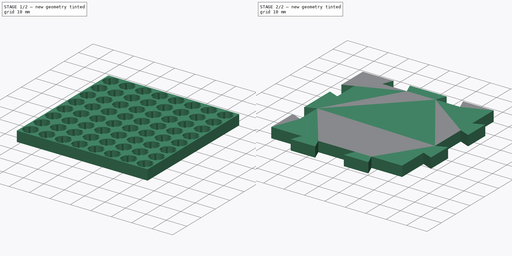
[diagram: build sequence overview — one tinted view per stage of 2, left to right]
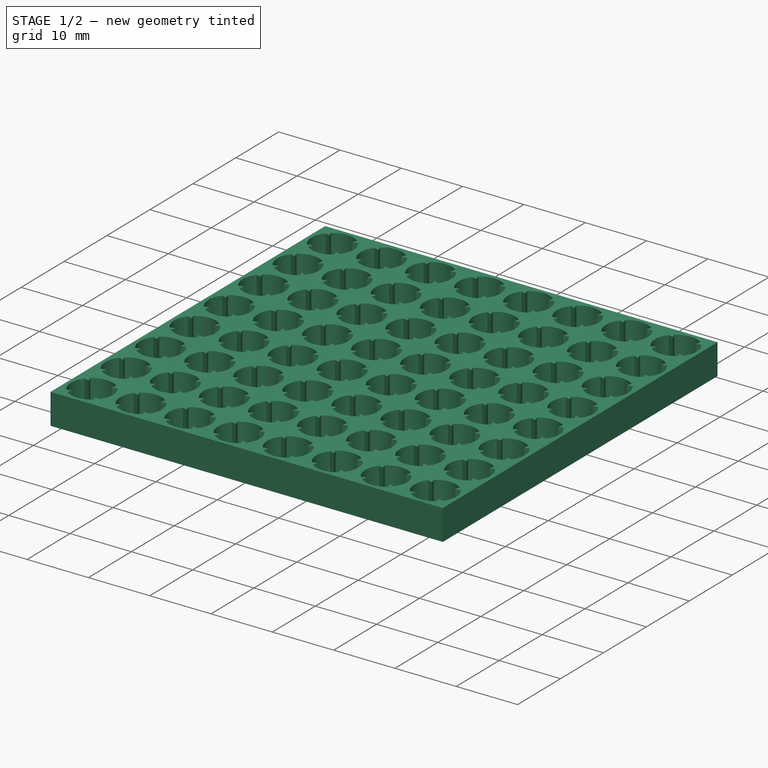
[diagram: stage 1 of 2 — iso view after this stage's code; geometry added in this stage tinted green]
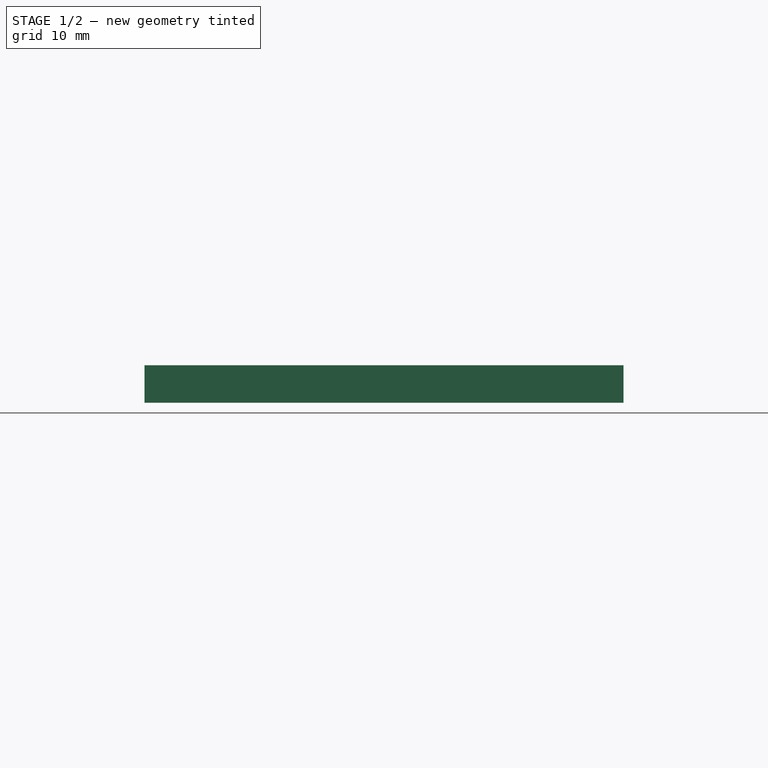
[diagram: stage 1 of 2 — front view after this stage's code; geometry added in this stage tinted green]
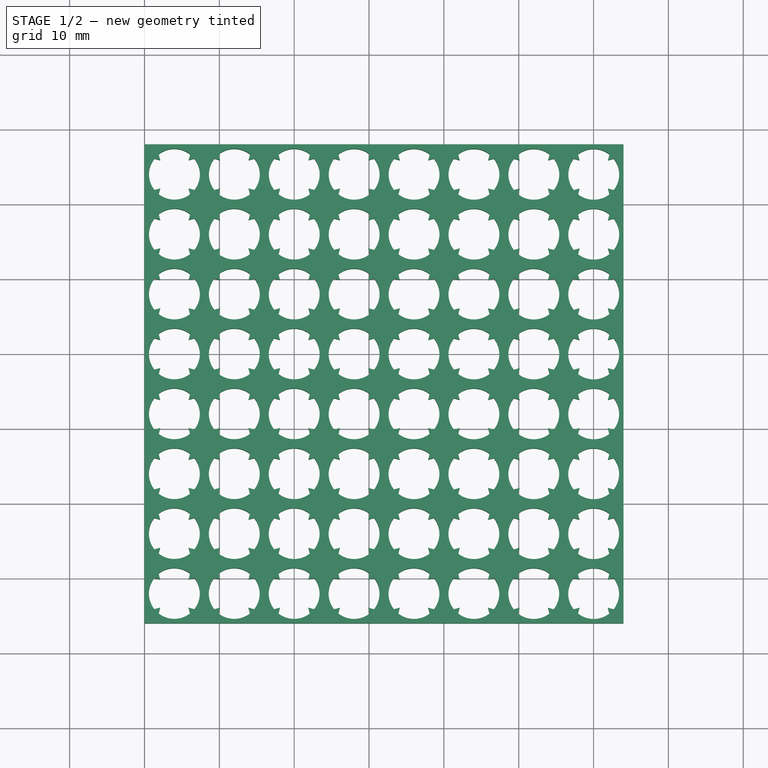
[diagram: stage 1 of 2 — top view after this stage's code; geometry added in this stage tinted green]
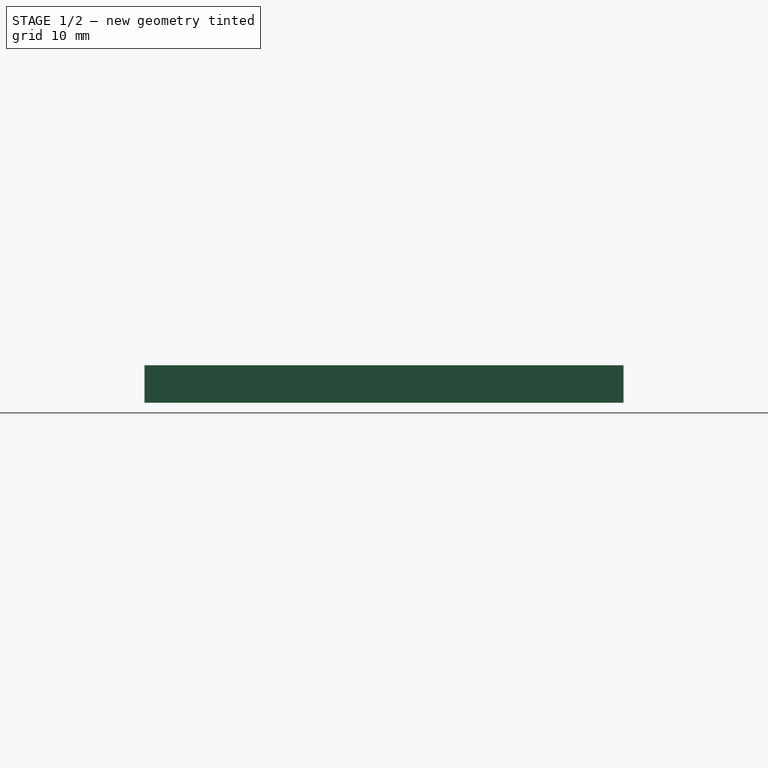
[diagram: stage 1 of 2 — right view after this stage's code; geometry added in this stage tinted green]
FCSTD DOCUMENT  (FreeCAD 0.19R24291 (Git))
Label: modular_stamp_base_v2_dia7
License: Other
LicenseURL: https://ohwr.org/project/cernohl/wikis/Documents/CERN-OHL-version-2
objects: Sketcher::SketchObject×2, PartDesign::Pad×2, PartDesign::Body×2, Part::Part2DObjectPython×2, PartDesign::ShapeBinder×1
note: 11 computed .brp shape members not serialized (recipe doc carries the construction recipe); baked Part::Feature solids carry a one-line shape summary decoded from their .brp

FEATURE [Sketcher::SketchObject] Sketch
  FullyConstrained = true
  MapMode = 5
  Support = -> [XY_Plane]
  sketch-geometry (1475):
    g0: ArcOfCircle CenterX=4 CenterY=4 CenterZ=0 NormalX=0 NormalY=0 NormalZ=1 AngleXU=0 Radius=3.4 StartAngle=4.04491 EndAngle=5.37987
    g1: LineSegment StartX=1.59584 StartY=6.40416 StartZ=0 EndX=6.38747 EndY=1.61253 EndZ=0
    g2: LineSegment StartX=6.40416 StartY=6.40416 StartZ=0 EndX=1.61253 EndY=1.61253 EndZ=0
    g3: LineSegment StartX=5.89757 StartY=5.89757 StartZ=0 EndX=6.67031 EndY=6.10462 EndZ=0
    g4: LineSegment StartX=6.67031 StartY=6.10462 StartZ=0 EndX=6.10462 EndY=6.67031 EndZ=0
    g5: LineSegment StartX=6.10462 StartY=6.67031 StartZ=0 EndX=5.89757 EndY=5.89757 EndZ=0
    g6: Circle CenterX=6.22417 CenterY=6.22417 CenterZ=0 NormalX=0 NormalY=0 NormalZ=1 AngleXU=0 Radius=0.46188
    g7: LineSegment StartX=6.67031 StartY=1.89538 StartZ=0 EndX=5.89757 EndY=2.10243 EndZ=0
    g8: LineSegment StartX=5.89757 StartY=2.10243 StartZ=0 EndX=6.10462 EndY=1.32969 EndZ=0
    g9: LineSegment StartX=6.10462 StartY=1.32969 StartZ=0 EndX=6.67031 EndY=1.89538 EndZ=0
    g10: Circle CenterX=6.22417 CenterY=1.77583 CenterZ=0 NormalX=0 NormalY=0 NormalZ=1 AngleXU=0 Radius=0.46188
    g11: LineSegment StartX=1.89538 StartY=1.32969 StartZ=0 EndX=2.10243 EndY=2.10243 EndZ=0
    g12: LineSegment StartX=2.10243 StartY=2.10243 StartZ=0 EndX=1.32969 EndY=1.89538 EndZ=0
    g13: LineSegment StartX=1.32969 StartY=1.89538 StartZ=0 EndX=1.89538 EndY=1.32969 EndZ=0
    g14: Circle CenterX=1.77583 CenterY=1.77583 CenterZ=0 NormalX=0 NormalY=0 NormalZ=1 AngleXU=0 Radius=0.46188
    g15: LineSegment StartX=2.10243 StartY=5.89757 StartZ=0 EndX=1.89538 EndY=6.67031 EndZ=0
    g16: LineSegment StartX=1.89538 StartY=6.67031 StartZ=0 EndX=1.32969 EndY=6.10462 EndZ=0
    g17: LineSegment StartX=1.32969 StartY=6.10462 StartZ=0 EndX=2.10243 EndY=5.89757 EndZ=0
    g18: Circle CenterX=1.77583 CenterY=6.22417 CenterZ=0 NormalX=0 NormalY=0 NormalZ=1 AngleXU=0 Radius=0.46188
    g19: ArcOfCircle CenterX=4 CenterY=4 CenterZ=0 NormalX=0 NormalY=0 NormalZ=1 AngleXU=0 Radius=3.4 StartAngle=5.61571 EndAngle=6.95066
    g20: ArcOfCircle CenterX=4 CenterY=4 CenterZ=0 NormalX=0 NormalY=0 NormalZ=1 AngleXU=0 Radius=3.4 StartAngle=0.903318 EndAngle=2.23827
    g21: ArcOfCircle CenterX=4 CenterY=4 CenterZ=0 NormalX=0 NormalY=0 NormalZ=1 AngleXU=0 Radius=3.4 StartAngle=2.47411 EndAngle=3.80907
    g22: LineSegment StartX=0 StartY=8 StartZ=0 EndX=64 EndY=8 EndZ=0
    g23: LineSegment StartX=64 StartY=8 StartZ=0 EndX=64 EndY=-56 EndZ=0
    g24: LineSegment StartX=64 StartY=-56 StartZ=0 EndX=0 EndY=-56 EndZ=0
    g25: LineSegment StartX=0 StartY=-56 StartZ=0 EndX=0 EndY=8 EndZ=0
    g26: ArcOfCircle CenterX=12.0036 CenterY=3.9981 CenterZ=0 NormalX=0 NormalY=0 NormalZ=1 AngleXU=0 Radius=3.4 StartAngle=4.04491 EndAngle=5.37987
    g27: LineSegment StartX=9.59941 StartY=6.40227 StartZ=0 EndX=14.391 EndY=1.61064 EndZ=0
    g28: LineSegment StartX=14.4077 StartY=6.40227 StartZ=0 EndX=9.6161 EndY=1.61064 EndZ=0
    g29: LineSegment StartX=13.9011 StartY=5.89567 StartZ=0 EndX=14.6739 EndY=6.10273 EndZ=0
    g30: LineSegment StartX=14.6739 StartY=6.10273 StartZ=0 EndX=14.1082 EndY=6.66841 EndZ=0
    g31: LineSegment StartX=14.1082 StartY=6.66841 StartZ=0 EndX=13.9011 EndY=5.89567 EndZ=0
    g32: Circle CenterX=14.2277 CenterY=6.22227 CenterZ=0 NormalX=0 NormalY=0 NormalZ=1 AngleXU=0 Radius=0.46188
    g33: LineSegment StartX=14.6739 StartY=1.89348 StartZ=0 EndX=13.9011 EndY=2.10053 EndZ=0
    g34: LineSegment StartX=13.9011 StartY=2.10053 StartZ=0 EndX=14.1082 EndY=1.32779 EndZ=0
    g35: LineSegment StartX=14.1082 StartY=1.32779 StartZ=0 EndX=14.6739 EndY=1.89348 EndZ=0
    g36: Circle CenterX=14.2277 CenterY=1.77394 CenterZ=0 NormalX=0 NormalY=0 NormalZ=1 AngleXU=0 Radius=0.46188
    g37: LineSegment StartX=9.89895 StartY=1.32779 StartZ=0 EndX=10.106 EndY=2.10053 EndZ=0
    g38: LineSegment StartX=10.106 StartY=2.10053 StartZ=0 EndX=9.33326 EndY=1.89348 EndZ=0
    g39: LineSegment StartX=9.33326 StartY=1.89348 StartZ=0 EndX=9.89895 EndY=1.32779 EndZ=0
    g40: Circle CenterX=9.7794 CenterY=1.77394 CenterZ=0 NormalX=0 NormalY=0 NormalZ=1 AngleXU=0 Radius=0.46188
    g41: LineSegment StartX=10.106 StartY=5.89567 StartZ=0 EndX=9.89895 EndY=6.66841 EndZ=0
    g42: LineSegment StartX=9.89895 StartY=6.66841 StartZ=0 EndX=9.33326 EndY=6.10273 EndZ=0
    g43: LineSegment StartX=9.33326 StartY=6.10273 StartZ=0 EndX=10.106 EndY=5.89567 EndZ=0
    g44: Circle CenterX=9.7794 CenterY=6.22227 CenterZ=0 NormalX=0 NormalY=0 NormalZ=1 AngleXU=0 Radius=0.46188
    g45: ArcOfCircle CenterX=12.0036 CenterY=3.9981 CenterZ=0 NormalX=0 NormalY=0 NormalZ=1 AngleXU=0 Radius=3.4 StartAngle=5.61571 EndAngle=6.95066
    g46: ArcOfCircle CenterX=12.0036 CenterY=3.9981 CenterZ=0 NormalX=0 NormalY=0 NormalZ=1 AngleXU=0 Radius=3.4 StartAngle=0.903318 EndAngle=2.23827
    g47: ArcOfCircle CenterX=12.0036 CenterY=3.9981 CenterZ=0 NormalX=0 NormalY=0 NormalZ=1 AngleXU=0 Radius=3.4 StartAngle=2.47411 EndAngle=3.80907
    g48: LineSegment StartX=1.89538 StartY=1.32969 StartZ=0 EndX=9.89895 EndY=1.32779 EndZ=0
    g49: ArcOfCircle CenterX=20.0071 CenterY=3.99621 CenterZ=0 NormalX=0 NormalY=0 NormalZ=1 AngleXU=0 Radius=3.4 StartAngle=4.04491 EndAngle=5.37987
    g50: LineSegment StartX=17.603 StartY=6.40037 StartZ=0 EndX=22.3946 EndY=1.60874 EndZ=0
    g51: LineSegment StartX=22.4113 StartY=6.40037 StartZ=0 EndX=17.6197 EndY=1.60874 EndZ=0
    g52: LineSegment StartX=21.9047 StartY=5.89378 StartZ=0 EndX=22.6775 EndY=6.10083 EndZ=0
    g53: LineSegment StartX=22.6775 StartY=6.10083 StartZ=0 EndX=22.1118 EndY=6.66652 EndZ=0
    g54: LineSegment StartX=22.1118 StartY=6.66652 StartZ=0 EndX=21.9047 EndY=5.89378 EndZ=0
    g55: Circle CenterX=22.2313 CenterY=6.22038 CenterZ=0 NormalX=0 NormalY=0 NormalZ=1 AngleXU=0 Radius=0.46188
    g56: LineSegment StartX=22.6775 StartY=1.89158 StartZ=0 EndX=21.9047 EndY=2.09864 EndZ=0
    g57: LineSegment StartX=21.9047 StartY=2.09864 StartZ=0 EndX=22.1118 EndY=1.3259 EndZ=0
    g58: LineSegment StartX=22.1118 StartY=1.3259 StartZ=0 EndX=22.6775 EndY=1.89158 EndZ=0
    g59: Circle CenterX=22.2313 CenterY=1.77204 CenterZ=0 NormalX=0 NormalY=0 NormalZ=1 AngleXU=0 Radius=0.46188
    g60: LineSegment StartX=17.9025 StartY=1.3259 StartZ=0 EndX=18.1096 EndY=2.09864 EndZ=0
    g61: LineSegment StartX=18.1096 StartY=2.09864 StartZ=0 EndX=17.3368 EndY=1.89158 EndZ=0
    g62: LineSegment StartX=17.3368 StartY=1.89158 StartZ=0 EndX=17.9025 EndY=1.3259 EndZ=0
    g63: Circle CenterX=17.783 CenterY=1.77204 CenterZ=0 NormalX=0 NormalY=0 NormalZ=1 AngleXU=0 Radius=0.46188
    g64: LineSegment StartX=18.1096 StartY=5.89378 StartZ=0 EndX=17.9025 EndY=6.66652 EndZ=0
    g65: LineSegment StartX=17.9025 StartY=6.66652 StartZ=0 EndX=17.3368 EndY=6.10083 EndZ=0
    g66: LineSegment StartX=17.3368 StartY=6.10083 StartZ=0 EndX=18.1096 EndY=5.89378 EndZ=0
    g67: Circle CenterX=17.783 CenterY=6.22038 CenterZ=0 NormalX=0 NormalY=0 NormalZ=1 AngleXU=0 Radius=0.46188
    g68: ArcOfCircle CenterX=20.0071 CenterY=3.99621 CenterZ=0 NormalX=0 NormalY=0 NormalZ=1 AngleXU=0 Radius=3.4 StartAngle=5.61571 EndAngle=6.95066
    g69: ArcOfCircle CenterX=20.0071 CenterY=3.99621 CenterZ=0 NormalX=0 NormalY=0 NormalZ=1 AngleXU=0 Radius=3.4 StartAngle=0.903318 EndAngle=2.23827
    g70: ArcOfCircle CenterX=20.0071 CenterY=3.99621 CenterZ=0 NormalX=0 NormalY=0 NormalZ=1 AngleXU=0 Radius=3.4 StartAngle=2.47411 EndAngle=3.80907
    g71: LineSegment StartX=9.89895 StartY=1.32779 StartZ=0 EndX=17.9025 EndY=1.3259 EndZ=0
    g72: ArcOfCircle CenterX=28.0107 CenterY=3.99431 CenterZ=0 NormalX=0 NormalY=0 NormalZ=1 AngleXU=0 Radius=3.4 StartAngle=4.04491 EndAngle=5.37987
    g73: LineSegment StartX=25.6065 StartY=6.39848 StartZ=0 EndX=30.3982 EndY=1.60684 EndZ=0
    g74: LineSegment StartX=30.4149 StartY=6.39848 StartZ=0 EndX=25.6232 EndY=1.60684 EndZ=0
    g75: LineSegment StartX=29.9083 StartY=5.89188 StartZ=0 EndX=30.681 EndY=6.09894 EndZ=0
    g76: LineSegment StartX=30.681 StartY=6.09894 StartZ=0 EndX=30.1153 EndY=6.66462 EndZ=0
    g77: LineSegment StartX=30.1153 StartY=6.66462 StartZ=0 EndX=29.9083 EndY=5.89188 EndZ=0
    g78: Circle CenterX=30.2349 CenterY=6.21848 CenterZ=0 NormalX=0 NormalY=0 NormalZ=1 AngleXU=0 Radius=0.46188
    g79: LineSegment StartX=30.681 StartY=1.88969 StartZ=0 EndX=29.9083 EndY=2.09674 EndZ=0
    g80: LineSegment StartX=29.9083 StartY=2.09674 StartZ=0 EndX=30.1153 EndY=1.324 EndZ=0
    g81: LineSegment StartX=30.1153 StartY=1.324 StartZ=0 EndX=30.681 EndY=1.88969 EndZ=0
    g82: Circle CenterX=30.2349 CenterY=1.77014 CenterZ=0 NormalX=0 NormalY=0 NormalZ=1 AngleXU=0 Radius=0.46188
    g83: LineSegment StartX=25.9061 StartY=1.324 StartZ=0 EndX=26.1131 EndY=2.09674 EndZ=0
    g84: LineSegment StartX=26.1131 StartY=2.09674 StartZ=0 EndX=25.3404 EndY=1.88969 EndZ=0
    g85: LineSegment StartX=25.3404 StartY=1.88969 StartZ=0 EndX=25.9061 EndY=1.324 EndZ=0
    g86: Circle CenterX=25.7865 CenterY=1.77014 CenterZ=0 NormalX=0 NormalY=0 NormalZ=1 AngleXU=0 Radius=0.46188
    g87: LineSegment StartX=26.1131 StartY=5.89188 StartZ=0 EndX=25.9061 EndY=6.66462 EndZ=0
    g88: LineSegment StartX=25.9061 StartY=6.66462 StartZ=0 EndX=25.3404 EndY=6.09894 EndZ=0
    g89: LineSegment StartX=25.3404 StartY=6.09894 StartZ=0 EndX=26.1131 EndY=5.89188 EndZ=0
    g90: Circle CenterX=25.7865 CenterY=6.21848 CenterZ=0 NormalX=0 NormalY=0 NormalZ=1 AngleXU=0 Radius=0.46188
    g91: ArcOfCircle CenterX=28.0107 CenterY=3.99431 CenterZ=0 NormalX=0 NormalY=0 NormalZ=1 AngleXU=0 Radius=3.4 StartAngle=5.61571 EndAngle=6.95066
    g92: ArcOfCircle CenterX=28.0107 CenterY=3.99431 CenterZ=0 NormalX=0 NormalY=0 NormalZ=1 AngleXU=0 Radius=3.4 StartAngle=0.903318 EndAngle=2.23827
    g93: ArcOfCircle CenterX=28.0107 CenterY=3.99431 CenterZ=0 NormalX=0 NormalY=0 NormalZ=1 AngleXU=0 Radius=3.4 StartAngle=2.47411 EndAngle=3.80907
    g94: LineSegment StartX=17.9025 StartY=1.3259 StartZ=0 EndX=25.9061 EndY=1.324 EndZ=0
    g95: ArcOfCircle CenterX=36.0143 CenterY=3.99242 CenterZ=0 NormalX=0 NormalY=0 NormalZ=1 AngleXU=0 Radius=3.4 StartAngle=4.04491 EndAngle=5.37987
    g96: LineSegment StartX=33.6101 StartY=6.39658 StartZ=0 EndX=38.4018 EndY=1.60495 EndZ=0
    g97: LineSegment StartX=38.4184 StartY=6.39658 StartZ=0 EndX=33.6268 EndY=1.60495 EndZ=0
    g98: LineSegment StartX=37.9119 StartY=5.88999 StartZ=0 EndX=38.6846 EndY=6.09704 EndZ=0
    g99: LineSegment StartX=38.6846 StartY=6.09704 StartZ=0 EndX=38.1189 EndY=6.66273 EndZ=0
    g100: LineSegment StartX=38.1189 StartY=6.66273 StartZ=0 EndX=37.9119 EndY=5.88999 EndZ=0
    g101: Circle CenterX=38.2385 CenterY=6.21658 CenterZ=0 NormalX=0 NormalY=0 NormalZ=1 AngleXU=0 Radius=0.46188
    g102: LineSegment StartX=38.6846 StartY=1.88779 StartZ=0 EndX=37.9119 EndY=2.09485 EndZ=0
    g103: LineSegment StartX=37.9119 StartY=2.09485 StartZ=0 EndX=38.1189 EndY=1.32211 EndZ=0
    g104: LineSegment StartX=38.1189 StartY=1.32211 StartZ=0 EndX=38.6846 EndY=1.88779 EndZ=0
    g105: Circle CenterX=38.2385 CenterY=1.76825 CenterZ=0 NormalX=0 NormalY=0 NormalZ=1 AngleXU=0 Radius=0.46188
    g106: LineSegment StartX=33.9097 StartY=1.32211 StartZ=0 EndX=34.1167 EndY=2.09485 EndZ=0
    g107: LineSegment StartX=34.1167 StartY=2.09485 StartZ=0 EndX=33.344 EndY=1.88779 EndZ=0
    g108: LineSegment StartX=33.344 StartY=1.88779 StartZ=0 EndX=33.9097 EndY=1.32211 EndZ=0
    g109: Circle CenterX=33.7901 CenterY=1.76825 CenterZ=0 NormalX=0 NormalY=0 NormalZ=1 AngleXU=0 Radius=0.46188
    g110: LineSegment StartX=34.1167 StartY=5.88999 StartZ=0 EndX=33.9097 EndY=6.66273 EndZ=0
    g111: LineSegment StartX=33.9097 StartY=6.66273 StartZ=0 EndX=33.344 EndY=6.09704 EndZ=0
    g112: LineSegment StartX=33.344 StartY=6.09704 StartZ=0 EndX=34.1167 EndY=5.88999 EndZ=0
    g113: Circle CenterX=33.7901 CenterY=6.21658 CenterZ=0 NormalX=0 NormalY=0 NormalZ=1 AngleXU=0 Radius=0.46188
    g114: ArcOfCircle CenterX=36.0143 CenterY=3.99242 CenterZ=0 NormalX=0 NormalY=0 NormalZ=1 AngleXU=0 Radius=3.4 StartAngle=5.61571 EndAngle=6.95066
    g115: ArcOfCircle CenterX=36.0143 CenterY=3.99242 CenterZ=0 NormalX=0 NormalY=0 NormalZ=1 AngleXU=0 Radius=3.4 StartAngle=0.903318 EndAngle=2.23827
    g116: ArcOfCircle CenterX=36.0143 CenterY=3.99242 CenterZ=0 NormalX=0 NormalY=0 NormalZ=1 AngleXU=0 Radius=3.4 StartAngle=2.47411 EndAngle=3.80907
    g117: LineSegment StartX=25.9061 StartY=1.324 StartZ=0 EndX=33.9097 EndY=1.32211 EndZ=0
    g118: ArcOfCircle CenterX=44.0179 CenterY=3.99052 CenterZ=0 NormalX=0 NormalY=0 NormalZ=1 AngleXU=0 Radius=3.4 StartAngle=4.04491 EndAngle=5.37987
    g119: LineSegment StartX=41.6137 StartY=6.39468 StartZ=0 EndX=46.4053 EndY=1.60305 EndZ=0
    g120: LineSegment StartX=46.422 StartY=6.39468 StartZ=0 EndX=41.6304 EndY=1.60305 EndZ=0
    g121: LineSegment StartX=45.9154 StartY=5.88809 StartZ=0 EndX=46.6882 EndY=6.09514 EndZ=0
    g122: LineSegment StartX=46.6882 StartY=6.09514 StartZ=0 EndX=46.1225 EndY=6.66083 EndZ=0
    g123: LineSegment StartX=46.1225 StartY=6.66083 StartZ=0 EndX=45.9154 EndY=5.88809 EndZ=0
    g124: Circle CenterX=46.242 CenterY=6.21469 CenterZ=0 NormalX=0 NormalY=0 NormalZ=1 AngleXU=0 Radius=0.46188
    g125: LineSegment StartX=46.6882 StartY=1.8859 StartZ=0 EndX=45.9154 EndY=2.09295 EndZ=0
    g126: LineSegment StartX=45.9154 StartY=2.09295 StartZ=0 EndX=46.1225 EndY=1.32021 EndZ=0
    g127: LineSegment StartX=46.1225 StartY=1.32021 StartZ=0 EndX=46.6882 EndY=1.8859 EndZ=0
    g128: Circle CenterX=46.242 CenterY=1.76635 CenterZ=0 NormalX=0 NormalY=0 NormalZ=1 AngleXU=0 Radius=0.46188
    g129: LineSegment StartX=41.9132 StartY=1.32021 StartZ=0 EndX=42.1203 EndY=2.09295 EndZ=0
    g130: LineSegment StartX=42.1203 StartY=2.09295 StartZ=0 EndX=41.3475 EndY=1.8859 EndZ=0
    g131: LineSegment StartX=41.3475 StartY=1.8859 StartZ=0 EndX=41.9132 EndY=1.32021 EndZ=0
    g132: Circle CenterX=41.7937 CenterY=1.76635 CenterZ=0 NormalX=0 NormalY=0 NormalZ=1 AngleXU=0 Radius=0.46188
    g133: LineSegment StartX=42.1203 StartY=5.88809 StartZ=0 EndX=41.9132 EndY=6.66083 EndZ=0
    g134: LineSegment StartX=41.9132 StartY=6.66083 StartZ=0 EndX=41.3475 EndY=6.09514 EndZ=0
    g135: LineSegment StartX=41.3475 StartY=6.09514 StartZ=0 EndX=42.1203 EndY=5.88809 EndZ=0
    g136: Circle CenterX=41.7937 CenterY=6.21469 CenterZ=0 NormalX=0 NormalY=0 NormalZ=1 AngleXU=0 Radius=0.46188
    g137: ArcOfCircle CenterX=44.0179 CenterY=3.99052 CenterZ=0 NormalX=0 NormalY=0 NormalZ=1 AngleXU=0 Radius=3.4 StartAngle=5.61571 EndAngle=6.95066
    g138: ArcOfCircle CenterX=44.0179 CenterY=3.99052 CenterZ=0 NormalX=0 NormalY=0 NormalZ=1 AngleXU=0 Radius=3.4 StartAngle=0.903318 EndAngle=2.23827
    g139: ArcOfCircle CenterX=44.0179 CenterY=3.99052 CenterZ=0 NormalX=0 NormalY=0 NormalZ=1 AngleXU=0 Radius=3.4 StartAngle=2.47411 EndAngle=3.80907
    g140: LineSegment StartX=33.9097 StartY=1.32211 StartZ=0 EndX=41.9132 EndY=1.32021 EndZ=0
    g141: ArcOfCircle CenterX=52.0214 CenterY=3.98862 CenterZ=0 NormalX=0 NormalY=0 NormalZ=1 AngleXU=0 Radius=3.4 StartAngle=4.04491 EndAngle=5.37987
    g142: LineSegment StartX=49.6173 StartY=6.39279 StartZ=0 EndX=54.4089 EndY=1.60116 EndZ=0
    g143: LineSegment StartX=54.4256 StartY=6.39279 StartZ=0 EndX=49.634 EndY=1.60116 EndZ=0
    g144: LineSegment StartX=53.919 StartY=5.88619 StartZ=0 EndX=54.6917 EndY=6.09325 EndZ=0
    g145: LineSegment StartX=54.6917 StartY=6.09325 StartZ=0 EndX=54.1261 EndY=6.65893 EndZ=0
    g146: LineSegment StartX=54.1261 StartY=6.65893 StartZ=0 EndX=53.919 EndY=5.88619 EndZ=0
    g147: Circle CenterX=54.2456 CenterY=6.21279 CenterZ=0 NormalX=0 NormalY=0 NormalZ=1 AngleXU=0 Radius=0.46188
    g148: LineSegment StartX=54.6917 StartY=1.884 StartZ=0 EndX=53.919 EndY=2.09105 EndZ=0
    g149: LineSegment StartX=53.919 StartY=2.09105 StartZ=0 EndX=54.1261 EndY=1.31831 EndZ=0
    g150: LineSegment StartX=54.1261 StartY=1.31831 StartZ=0 EndX=54.6917 EndY=1.884 EndZ=0
    g151: Circle CenterX=54.2456 CenterY=1.76446 CenterZ=0 NormalX=0 NormalY=0 NormalZ=1 AngleXU=0 Radius=0.46188
    g152: LineSegment StartX=49.9168 StartY=1.31831 StartZ=0 EndX=50.1239 EndY=2.09105 EndZ=0
    g153: LineSegment StartX=50.1239 StartY=2.09105 StartZ=0 EndX=49.3511 EndY=1.884 EndZ=0
    g154: LineSegment StartX=49.3511 StartY=1.884 StartZ=0 EndX=49.9168 EndY=1.31831 EndZ=0
    g155: Circle CenterX=49.7973 CenterY=1.76446 CenterZ=0 NormalX=0 NormalY=0 NormalZ=1 AngleXU=0 Radius=0.46188
    g156: LineSegment StartX=50.1239 StartY=5.88619 StartZ=0 EndX=49.9168 EndY=6.65893 EndZ=0
    g157: LineSegment StartX=49.9168 StartY=6.65893 StartZ=0 EndX=49.3511 EndY=6.09325 EndZ=0
    g158: LineSegment StartX=49.3511 StartY=6.09325 StartZ=0 EndX=50.1239 EndY=5.88619 EndZ=0
    g159: Circle CenterX=49.7973 CenterY=6.21279 CenterZ=0 NormalX=0 NormalY=0 NormalZ=1 AngleXU=0 Radius=0.46188
    g160: ArcOfCircle CenterX=52.0214 CenterY=3.98862 CenterZ=0 NormalX=0 NormalY=0 NormalZ=1 AngleXU=0 Radius=3.4 StartAngle=5.61571 EndAngle=6.95066
    g161: ArcOfCircle CenterX=52.0214 CenterY=3.98862 CenterZ=0 NormalX=0 NormalY=0 NormalZ=1 AngleXU=0 Radius=3.4 StartAngle=0.903318 EndAngle=2.23827
    g162: ArcOfCircle CenterX=52.0214 CenterY=3.98862 CenterZ=0 NormalX=0 NormalY=0 NormalZ=1 AngleXU=0 Radius=3.4 StartAngle=2.47411 EndAngle=3.80907
    g163: LineSegment StartX=41.9132 StartY=1.32021 StartZ=0 EndX=49.9168 EndY=1.31831 EndZ=0
    g164: ArcOfCircle CenterX=60.025 CenterY=3.98673 CenterZ=0 NormalX=0 NormalY=0 NormalZ=1 AngleXU=0 Radius=3.4 StartAngle=4.04491 EndAngle=5.37987
    g165: LineSegment StartX=57.6208 StartY=6.39089 StartZ=0 EndX=62.4125 EndY=1.59926 EndZ=0
    g166: LineSegment StartX=62.4292 StartY=6.39089 StartZ=0 EndX=57.6375 EndY=1.59926 EndZ=0
    g167: LineSegment StartX=61.9226 StartY=5.8843 StartZ=0 EndX=62.6953 EndY=6.09135 EndZ=0
    g168: LineSegment StartX=62.6953 StartY=6.09135 StartZ=0 EndX=62.1296 EndY=6.65704 EndZ=0
    g169: LineSegment StartX=62.1296 StartY=6.65704 StartZ=0 EndX=61.9226 EndY=5.8843 EndZ=0
    g170: Circle CenterX=62.2492 CenterY=6.2109 CenterZ=0 NormalX=0 NormalY=0 NormalZ=1 AngleXU=0 Radius=0.46188
    g171: LineSegment StartX=62.6953 StartY=1.8821 StartZ=0 EndX=61.9226 EndY=2.08916 EndZ=0
    g172: LineSegment StartX=61.9226 StartY=2.08916 StartZ=0 EndX=62.1296 EndY=1.31642 EndZ=0
    g173: LineSegment StartX=62.1296 StartY=1.31642 StartZ=0 EndX=62.6953 EndY=1.8821 EndZ=0
    g174: Circle CenterX=62.2492 CenterY=1.76256 CenterZ=0 NormalX=0 NormalY=0 NormalZ=1 AngleXU=0 Radius=0.46188
    g175: LineSegment StartX=57.9204 StartY=1.31642 StartZ=0 EndX=58.1274 EndY=2.08916 EndZ=0
    g176: LineSegment StartX=58.1274 StartY=2.08916 StartZ=0 EndX=57.3547 EndY=1.8821 EndZ=0
    g177: LineSegment StartX=57.3547 StartY=1.8821 StartZ=0 EndX=57.9204 EndY=1.31642 EndZ=0
    g178: Circle CenterX=57.8008 CenterY=1.76256 CenterZ=0 NormalX=0 NormalY=0 NormalZ=1 AngleXU=0 Radius=0.46188
    g179: LineSegment StartX=58.1274 StartY=5.8843 StartZ=0 EndX=57.9204 EndY=6.65704 EndZ=0
    g180: LineSegment StartX=57.9204 StartY=6.65704 StartZ=0 EndX=57.3547 EndY=6.09135 EndZ=0
    g181: LineSegment StartX=57.3547 StartY=6.09135 StartZ=0 EndX=58.1274 EndY=5.8843 EndZ=0
    g182: Circle CenterX=57.8008 CenterY=6.2109 CenterZ=0 NormalX=0 NormalY=0 NormalZ=1 AngleXU=0 Radius=0.46188
    g183: ArcOfCircle CenterX=60.025 CenterY=3.98673 CenterZ=0 NormalX=0 NormalY=0 NormalZ=1 AngleXU=0 Radius=3.4 StartAngle=5.61571 EndAngle=6.95066
    g184: ArcOfCircle CenterX=60.025 CenterY=3.98673 CenterZ=0 NormalX=0 NormalY=0 NormalZ=1 AngleXU=0 Radius=3.4 StartAngle=0.903318 EndAngle=2.23827
    g185: ArcOfCircle CenterX=60.025 CenterY=3.98673 CenterZ=0 NormalX=0 NormalY=0 NormalZ=1 AngleXU=0 Radius=3.4 StartAngle=2.47411 EndAngle=3.80907
    g186: LineSegment StartX=49.9168 StartY=1.31831 StartZ=0 EndX=57.9204 EndY=1.31642 EndZ=0
    g187: ArcOfCircle CenterX=3.9981 CenterY=-4.00357 CenterZ=0 NormalX=0 NormalY=0 NormalZ=1 AngleXU=0 Radius=3.4 StartAngle=4.04491 EndAngle=5.37987
    g188: LineSegment StartX=1.59394 StartY=-1.59941 StartZ=0 EndX=6.38557 EndY=-6.39104 EndZ=0
    g189: LineSegment StartX=6.40227 StartY=-1.59941 StartZ=0 EndX=1.61064 EndY=-6.39104 EndZ=0
    g190: LineSegment StartX=5.89567 StartY=-2.106 StartZ=0 EndX=6.66841 EndY=-1.89895 EndZ=0
    g191: LineSegment StartX=6.66841 StartY=-1.89895 StartZ=0 EndX=6.10273 EndY=-1.33326 EndZ=0
    g192: LineSegment StartX=6.10273 StartY=-1.33326 StartZ=0 EndX=5.89567 EndY=-2.106 EndZ=0
    g193: Circle CenterX=6.22227 CenterY=-1.7794 CenterZ=0 NormalX=0 NormalY=0 NormalZ=1 AngleXU=0 Radius=0.46188
    g194: LineSegment StartX=6.66841 StartY=-6.1082 StartZ=0 EndX=5.89567 EndY=-5.90114 EndZ=0
    g195: LineSegment StartX=5.89567 StartY=-5.90114 StartZ=0 EndX=6.10273 EndY=-6.67388 EndZ=0
    g196: LineSegment StartX=6.10273 StartY=-6.67388 StartZ=0 EndX=6.66841 EndY=-6.1082 EndZ=0
    g197: Circle CenterX=6.22227 CenterY=-6.22774 CenterZ=0 NormalX=0 NormalY=0 NormalZ=1 AngleXU=0 Radius=0.46188
    g198: LineSegment StartX=1.89348 StartY=-6.67388 StartZ=0 EndX=2.10053 EndY=-5.90114 EndZ=0
    g199: LineSegment StartX=2.10053 StartY=-5.90114 StartZ=0 EndX=1.32779 EndY=-6.1082 EndZ=0
    g200: LineSegment StartX=1.32779 StartY=-6.1082 StartZ=0 EndX=1.89348 EndY=-6.67388 EndZ=0
    g201: Circle CenterX=1.77394 CenterY=-6.22774 CenterZ=0 NormalX=0 NormalY=0 NormalZ=1 AngleXU=0 Radius=0.46188
    g202: LineSegment StartX=2.10053 StartY=-2.106 StartZ=0 EndX=1.89348 EndY=-1.33326 EndZ=0
    g203: LineSegment StartX=1.89348 StartY=-1.33326 StartZ=0 EndX=1.32779 EndY=-1.89895 EndZ=0
    g204: LineSegment StartX=1.32779 StartY=-1.89895 StartZ=0 EndX=2.10053 EndY=-2.106 EndZ=0
    g205: Circle CenterX=1.77394 CenterY=-1.7794 CenterZ=0 NormalX=0 NormalY=0 NormalZ=1 AngleXU=0 Radius=0.46188
    g206: ArcOfCircle CenterX=3.9981 CenterY=-4.00357 CenterZ=0 NormalX=0 NormalY=0 NormalZ=1 AngleXU=0 Radius=3.4 StartAngle=5.61571 EndAngle=6.95066
    g207: ArcOfCircle CenterX=3.9981 CenterY=-4.00357 CenterZ=0 NormalX=0 NormalY=0 NormalZ=1 AngleXU=0 Radius=3.4 StartAngle=0.903318 EndAngle=2.23827
    g208: ArcOfCircle CenterX=3.9981 CenterY=-4.00357 CenterZ=0 NormalX=0 NormalY=0 NormalZ=1 AngleXU=0 Radius=3.4 StartAngle=2.47411 EndAngle=3.80907
    g209: LineSegment StartX=1.89538 StartY=1.32969 StartZ=0 EndX=1.89348 EndY=-6.67388 EndZ=0
    g210: ArcOfCircle CenterX=12.0017 CenterY=-4.00547 CenterZ=0 NormalX=0 NormalY=0 NormalZ=1 AngleXU=0 Radius=3.4 StartAngle=4.04491 EndAngle=5.37987
    g211: LineSegment StartX=9.59751 StartY=-1.6013 StartZ=0 EndX=14.3891 EndY=-6.39293 EndZ=0
    g212: LineSegment StartX=14.4058 StartY=-1.6013 StartZ=0 EndX=9.61421 EndY=-6.39293 EndZ=0
    g213: LineSegment StartX=13.8992 StartY=-2.1079 StartZ=0 EndX=14.672 EndY=-1.90084 EndZ=0
    g214: LineSegment StartX=14.672 StartY=-1.90084 StartZ=0 EndX=14.1063 EndY=-1.33516 EndZ=0
    g215: LineSegment StartX=14.1063 StartY=-1.33516 StartZ=0 EndX=13.8992 EndY=-2.1079 EndZ=0
    g216: Circle CenterX=14.2258 CenterY=-1.7813 CenterZ=0 NormalX=0 NormalY=0 NormalZ=1 AngleXU=0 Radius=0.46188
    g217: LineSegment StartX=14.672 StartY=-6.11009 StartZ=0 EndX=13.8992 EndY=-5.90304 EndZ=0
    g218: LineSegment StartX=13.8992 StartY=-5.90304 StartZ=0 EndX=14.1063 EndY=-6.67578 EndZ=0
    g219: LineSegment StartX=14.1063 StartY=-6.67578 StartZ=0 EndX=14.672 EndY=-6.11009 EndZ=0
    g220: Circle CenterX=14.2258 CenterY=-6.22963 CenterZ=0 NormalX=0 NormalY=0 NormalZ=1 AngleXU=0 Radius=0.46188
    g221: LineSegment StartX=9.89705 StartY=-6.67578 StartZ=0 EndX=10.1041 EndY=-5.90304 EndZ=0
    g222: LineSegment StartX=10.1041 StartY=-5.90304 StartZ=0 EndX=9.33137 EndY=-6.11009 EndZ=0
    g223: LineSegment StartX=9.33137 StartY=-6.11009 StartZ=0 EndX=9.89705 EndY=-6.67578 EndZ=0
    g224: Circle CenterX=9.77751 CenterY=-6.22963 CenterZ=0 NormalX=0 NormalY=0 NormalZ=1 AngleXU=0 Radius=0.46188
    g225: LineSegment StartX=10.1041 StartY=-2.1079 StartZ=0 EndX=9.89705 EndY=-1.33516 EndZ=0
    g226: LineSegment StartX=9.89705 StartY=-1.33516 StartZ=0 EndX=9.33137 EndY=-1.90084 EndZ=0
    g227: LineSegment StartX=9.33137 StartY=-1.90084 StartZ=0 EndX=10.1041 EndY=-2.1079 EndZ=0
    g228: Circle CenterX=9.77751 CenterY=-1.7813 CenterZ=0 NormalX=0 NormalY=0 NormalZ=1 AngleXU=0 Radius=0.46188
    g229: ArcOfCircle CenterX=12.0017 CenterY=-4.00547 CenterZ=0 NormalX=0 NormalY=0 NormalZ=1 AngleXU=0 Radius=3.4 StartAngle=5.61571 EndAngle=6.95066
    g230: ArcOfCircle CenterX=12.0017 CenterY=-4.00547 CenterZ=0 NormalX=0 NormalY=0 NormalZ=1 AngleXU=0 Radius=3.4 StartAngle=0.903318 EndAngle=2.23827
    g231: ArcOfCircle CenterX=12.0017 CenterY=-4.00547 CenterZ=0 NormalX=0 NormalY=0 NormalZ=1 AngleXU=0 Radius=3.4 StartAngle=2.47411 EndAngle=3.80907
    g232: LineSegment StartX=1.89348 StartY=-6.67388 StartZ=0 EndX=9.89705 EndY=-6.67578 EndZ=0
    g233: ArcOfCircle CenterX=20.0052 CenterY=-4.00736 CenterZ=0 NormalX=0 NormalY=0 NormalZ=1 AngleXU=0 Radius=3.4 StartAngle=4.04491 EndAngle=5.37987
    g234: LineSegment StartX=17.6011 StartY=-1.6032 StartZ=0 EndX=22.3927 EndY=-6.39483 EndZ=0
    g235: LineSegment StartX=22.4094 StartY=-1.6032 StartZ=0 EndX=17.6178 EndY=-6.39483 EndZ=0
    g236: LineSegment StartX=21.9028 StartY=-2.10979 StartZ=0 EndX=22.6756 EndY=-1.90274 EndZ=0
    g237: LineSegment StartX=22.6756 StartY=-1.90274 StartZ=0 EndX=22.1099 EndY=-1.33705 EndZ=0
    g238: LineSegment StartX=22.1099 StartY=-1.33705 StartZ=0 EndX=21.9028 EndY=-2.10979 EndZ=0
    g239: Circle CenterX=22.2294 CenterY=-1.7832 CenterZ=0 NormalX=0 NormalY=0 NormalZ=1 AngleXU=0 Radius=0.46188
    g240: LineSegment StartX=22.6756 StartY=-6.11199 StartZ=0 EndX=21.9028 EndY=-5.90493 EndZ=0
    g241: LineSegment StartX=21.9028 StartY=-5.90493 StartZ=0 EndX=22.1099 EndY=-6.67767 EndZ=0
    g242: LineSegment StartX=22.1099 StartY=-6.67767 StartZ=0 EndX=22.6756 EndY=-6.11199 EndZ=0
    g243: Circle CenterX=22.2294 CenterY=-6.23153 CenterZ=0 NormalX=0 NormalY=0 NormalZ=1 AngleXU=0 Radius=0.46188
    g244: LineSegment StartX=17.9006 StartY=-6.67767 StartZ=0 EndX=18.1077 EndY=-5.90493 EndZ=0
    g245: LineSegment StartX=18.1077 StartY=-5.90493 StartZ=0 EndX=17.3349 EndY=-6.11199 EndZ=0
    g246: LineSegment StartX=17.3349 StartY=-6.11199 StartZ=0 EndX=17.9006 EndY=-6.67767 EndZ=0
    g247: Circle CenterX=17.7811 CenterY=-6.23153 CenterZ=0 NormalX=0 NormalY=0 NormalZ=1 AngleXU=0 Radius=0.46188
    g248: LineSegment StartX=18.1077 StartY=-2.10979 StartZ=0 EndX=17.9006 EndY=-1.33705 EndZ=0
    g249: LineSegment StartX=17.9006 StartY=-1.33705 StartZ=0 EndX=17.3349 EndY=-1.90274 EndZ=0
    g250: LineSegment StartX=17.3349 StartY=-1.90274 StartZ=0 EndX=18.1077 EndY=-2.10979 EndZ=0
    g251: Circle CenterX=17.7811 CenterY=-1.7832 CenterZ=0 NormalX=0 NormalY=0 NormalZ=1 AngleXU=0 Radius=0.46188
    g252: ArcOfCircle CenterX=20.0052 CenterY=-4.00736 CenterZ=0 NormalX=0 NormalY=0 NormalZ=1 AngleXU=0 Radius=3.4 StartAngle=5.61571 EndAngle=6.95066
    g253: ArcOfCircle CenterX=20.0052 CenterY=-4.00736 CenterZ=0 NormalX=0 NormalY=0 NormalZ=1 AngleXU=0 Radius=3.4 StartAngle=0.903318 EndAngle=2.23827
    g254: ArcOfCircle CenterX=20.0052 CenterY=-4.00736 CenterZ=0 NormalX=0 NormalY=0 NormalZ=1 AngleXU=0 Radius=3.4 StartAngle=2.47411 EndAngle=3.80907
    g255: LineSegment StartX=9.89705 StartY=-6.67578 StartZ=0 EndX=17.9006 EndY=-6.67767 EndZ=0
    g256: ArcOfCircle CenterX=28.0088 CenterY=-4.00926 CenterZ=0 NormalX=0 NormalY=0 NormalZ=1 AngleXU=0 Radius=3.4 StartAngle=4.04491 EndAngle=5.37987
    g257: LineSegment StartX=25.6047 StartY=-1.6051 StartZ=0 EndX=30.3963 EndY=-6.39673 EndZ=0
    g258: LineSegment StartX=30.413 StartY=-1.6051 StartZ=0 EndX=25.6213 EndY=-6.39673 EndZ=0
    g259: LineSegment StartX=29.9064 StartY=-2.11169 StartZ=0 EndX=30.6791 EndY=-1.90463 EndZ=0
    g260: LineSegment StartX=30.6791 StartY=-1.90463 StartZ=0 EndX=30.1134 EndY=-1.33895 EndZ=0
    g261: LineSegment StartX=30.1134 StartY=-1.33895 StartZ=0 EndX=29.9064 EndY=-2.11169 EndZ=0
    g262: Circle CenterX=30.233 CenterY=-1.78509 CenterZ=0 NormalX=0 NormalY=0 NormalZ=1 AngleXU=0 Radius=0.46188
    g263: LineSegment StartX=30.6791 StartY=-6.11388 StartZ=0 EndX=29.9064 EndY=-5.90683 EndZ=0
    g264: LineSegment StartX=29.9064 StartY=-5.90683 StartZ=0 EndX=30.1134 EndY=-6.67957 EndZ=0
    g265: LineSegment StartX=30.1134 StartY=-6.67957 StartZ=0 EndX=30.6791 EndY=-6.11388 EndZ=0
    g266: Circle CenterX=30.233 CenterY=-6.23343 CenterZ=0 NormalX=0 NormalY=0 NormalZ=1 AngleXU=0 Radius=0.46188
    g267: LineSegment StartX=25.9042 StartY=-6.67957 StartZ=0 EndX=26.1112 EndY=-5.90683 EndZ=0
    g268: LineSegment StartX=26.1112 StartY=-5.90683 StartZ=0 EndX=25.3385 EndY=-6.11388 EndZ=0
    g269: LineSegment StartX=25.3385 StartY=-6.11388 StartZ=0 EndX=25.9042 EndY=-6.67957 EndZ=0
    g270: Circle CenterX=25.7846 CenterY=-6.23343 CenterZ=0 NormalX=0 NormalY=0 NormalZ=1 AngleXU=0 Radius=0.46188
    g271: LineSegment StartX=26.1112 StartY=-2.11169 StartZ=0 EndX=25.9042 EndY=-1.33895 EndZ=0
    g272: LineSegment StartX=25.9042 StartY=-1.33895 StartZ=0 EndX=25.3385 EndY=-1.90463 EndZ=0
    g273: LineSegment StartX=25.3385 StartY=-1.90463 StartZ=0 EndX=26.1112 EndY=-2.11169 EndZ=0
    g274: Circle CenterX=25.7846 CenterY=-1.78509 CenterZ=0 NormalX=0 NormalY=0 NormalZ=1 AngleXU=0 Radius=0.46188
    g275: ArcOfCircle CenterX=28.0088 CenterY=-4.00926 CenterZ=0 NormalX=0 NormalY=0 NormalZ=1 AngleXU=0 Radius=3.4 StartAngle=5.61571 EndAngle=6.95066
    g276: ArcOfCircle CenterX=28.0088 CenterY=-4.00926 CenterZ=0 NormalX=0 NormalY=0 NormalZ=1 AngleXU=0 Radius=3.4 StartAngle=0.903318 EndAngle=2.23827
    g277: ArcOfCircle CenterX=28.0088 CenterY=-4.00926 CenterZ=0 NormalX=0 NormalY=0 NormalZ=1 AngleXU=0 Radius=3.4 StartAngle=2.47411 EndAngle=3.80907
    g278: LineSegment StartX=17.9006 StartY=-6.67767 StartZ=0 EndX=25.9042 EndY=-6.67957 EndZ=0
    g279: ArcOfCircle CenterX=36.0124 CenterY=-4.01116 CenterZ=0 NormalX=0 NormalY=0 NormalZ=1 AngleXU=0 Radius=3.4 StartAngle=4.04491 EndAngle=5.37987
    g280: LineSegment StartX=33.6082 StartY=-1.60699 StartZ=0 EndX=38.3999 EndY=-6.39862 EndZ=0
    g281: LineSegment StartX=38.4166 StartY=-1.60699 StartZ=0 EndX=33.6249 EndY=-6.39862 EndZ=0
    g282: LineSegment StartX=37.91 StartY=-2.11359 StartZ=0 EndX=38.6827 EndY=-1.90653 EndZ=0
    g283: LineSegment StartX=38.6827 StartY=-1.90653 StartZ=0 EndX=38.117 EndY=-1.34085 EndZ=0
    g284: LineSegment StartX=38.117 StartY=-1.34085 StartZ=0 EndX=37.91 EndY=-2.11359 EndZ=0
    g285: Circle CenterX=38.2366 CenterY=-1.78699 CenterZ=0 NormalX=0 NormalY=0 NormalZ=1 AngleXU=0 Radius=0.46188
    g286: LineSegment StartX=38.6827 StartY=-6.11578 StartZ=0 EndX=37.91 EndY=-5.90872 EndZ=0
    g287: LineSegment StartX=37.91 StartY=-5.90872 StartZ=0 EndX=38.117 EndY=-6.68146 EndZ=0
    g288: LineSegment StartX=38.117 StartY=-6.68146 StartZ=0 EndX=38.6827 EndY=-6.11578 EndZ=0
    g289: Circle CenterX=38.2366 CenterY=-6.23532 CenterZ=0 NormalX=0 NormalY=0 NormalZ=1 AngleXU=0 Radius=0.46188
    g290: LineSegment StartX=33.9078 StartY=-6.68146 StartZ=0 EndX=34.1148 EndY=-5.90872 EndZ=0
    g291: LineSegment StartX=34.1148 StartY=-5.90872 StartZ=0 EndX=33.3421 EndY=-6.11578 EndZ=0
    g292: LineSegment StartX=33.3421 StartY=-6.11578 StartZ=0 EndX=33.9078 EndY=-6.68146 EndZ=0
    g293: Circle CenterX=33.7882 CenterY=-6.23532 CenterZ=0 NormalX=0 NormalY=0 NormalZ=1 AngleXU=0 Radius=0.46188
    g294: LineSegment StartX=34.1148 StartY=-2.11359 StartZ=0 EndX=33.9078 EndY=-1.34085 EndZ=0
    g295: LineSegment StartX=33.9078 StartY=-1.34085 StartZ=0 EndX=33.3421 EndY=-1.90653 EndZ=0
    g296: LineSegment StartX=33.3421 StartY=-1.90653 StartZ=0 EndX=34.1148 EndY=-2.11359 EndZ=0
    g297: Circle CenterX=33.7882 CenterY=-1.78699 CenterZ=0 NormalX=0 NormalY=0 NormalZ=1 AngleXU=0 Radius=0.46188
    g298: ArcOfCircle CenterX=36.0124 CenterY=-4.01116 CenterZ=0 NormalX=0 NormalY=0 NormalZ=1 AngleXU=0 Radius=3.4 StartAngle=5.61571 EndAngle=6.95066
    g299: ArcOfCircle CenterX=36.0124 CenterY=-4.01116 CenterZ=0 NormalX=0 NormalY=0 NormalZ=1 AngleXU=0 Radius=3.4 StartAngle=0.903318 EndAngle=2.23827
    g300: ArcOfCircle CenterX=36.0124 CenterY=-4.01116 CenterZ=0 NormalX=0 NormalY=0 NormalZ=1 AngleXU=0 Radius=3.4 StartAngle=2.47411 EndAngle=3.80907
    g301: LineSegment StartX=25.9042 StartY=-6.67957 StartZ=0 EndX=33.9078 EndY=-6.68146 EndZ=0
    g302: ArcOfCircle CenterX=44.016 CenterY=-4.01305 CenterZ=0 NormalX=0 NormalY=0 NormalZ=1 AngleXU=0 Radius=3.4 StartAngle=4.04491 EndAngle=5.37987
    g303: LineSegment StartX=41.6118 StartY=-1.60889 StartZ=0 EndX=46.4034 EndY=-6.40052 EndZ=0
    g304: LineSegment StartX=46.4201 StartY=-1.60889 StartZ=0 EndX=41.6285 EndY=-6.40052 EndZ=0
    g305: LineSegment StartX=45.9135 StartY=-2.11548 StartZ=0 EndX=46.6863 EndY=-1.90843 EndZ=0
    g306: LineSegment StartX=46.6863 StartY=-1.90843 StartZ=0 EndX=46.1206 EndY=-1.34274 EndZ=0
    g307: LineSegment StartX=46.1206 StartY=-1.34274 StartZ=0 EndX=45.9135 EndY=-2.11548 EndZ=0
    g308: Circle CenterX=46.2401 CenterY=-1.78888 CenterZ=0 NormalX=0 NormalY=0 NormalZ=1 AngleXU=0 Radius=0.46188
    g309: LineSegment StartX=46.6863 StartY=-6.11768 StartZ=0 EndX=45.9135 EndY=-5.91062 EndZ=0
    g310: LineSegment StartX=45.9135 StartY=-5.91062 StartZ=0 EndX=46.1206 EndY=-6.68336 EndZ=0
    g311: LineSegment StartX=46.1206 StartY=-6.68336 StartZ=0 EndX=46.6863 EndY=-6.11768 EndZ=0
    g312: Circle CenterX=46.2401 CenterY=-6.23722 CenterZ=0 NormalX=0 NormalY=0 NormalZ=1 AngleXU=0 Radius=0.46188
    g313: LineSegment StartX=41.9113 StartY=-6.68336 StartZ=0 EndX=42.1184 EndY=-5.91062 EndZ=0
    g314: LineSegment StartX=42.1184 StartY=-5.91062 StartZ=0 EndX=41.3456 EndY=-6.11768 EndZ=0
    g315: LineSegment StartX=41.3456 StartY=-6.11768 StartZ=0 EndX=41.9113 EndY=-6.68336 EndZ=0
    g316: Circle CenterX=41.7918 CenterY=-6.23722 CenterZ=0 NormalX=0 NormalY=0 NormalZ=1 AngleXU=0 Radius=0.46188
    g317: LineSegment StartX=42.1184 StartY=-2.11548 StartZ=0 EndX=41.9113 EndY=-1.34274 EndZ=0
    g318: LineSegment StartX=41.9113 StartY=-1.34274 StartZ=0 EndX=41.3456 EndY=-1.90843 EndZ=0
    g319: LineSegment StartX=41.3456 StartY=-1.90843 StartZ=0 EndX=42.1184 EndY=-2.11548 EndZ=0
    g320: Circle CenterX=41.7918 CenterY=-1.78888 CenterZ=0 NormalX=0 NormalY=0 NormalZ=1 AngleXU=0 Radius=0.46188
    g321: ArcOfCircle CenterX=44.016 CenterY=-4.01305 CenterZ=0 NormalX=0 NormalY=0 NormalZ=1 AngleXU=0 Radius=3.4 StartAngle=5.61571 EndAngle=6.95066
    g322: ArcOfCircle CenterX=44.016 CenterY=-4.01305 CenterZ=0 NormalX=0 NormalY=0 NormalZ=1 AngleXU=0 Radius=3.4 StartAngle=0.903318 EndAngle=2.23827
    g323: ArcOfCircle CenterX=44.016 CenterY=-4.01305 CenterZ=0 NormalX=0 NormalY=0 NormalZ=1 AngleXU=0 Radius=3.4 StartAngle=2.47411 EndAngle=3.80907
    g324: LineSegment StartX=33.9078 StartY=-6.68146 StartZ=0 EndX=41.9113 EndY=-6.68336 EndZ=0
    g325: ArcOfCircle CenterX=52.0195 CenterY=-4.01495 CenterZ=0 NormalX=0 NormalY=0 NormalZ=1 AngleXU=0 Radius=3.4 StartAngle=4.04491 EndAngle=5.37987
    g326: LineSegment StartX=49.6154 StartY=-1.61078 StartZ=0 EndX=54.407 EndY=-6.40241 EndZ=0
    g327: LineSegment StartX=54.4237 StartY=-1.61078 StartZ=0 EndX=49.6321 EndY=-6.40241 EndZ=0
    g328: LineSegment StartX=53.9171 StartY=-2.11738 StartZ=0 EndX=54.6898 EndY=-1.91032 EndZ=0
    g329: LineSegment StartX=54.6898 StartY=-1.91032 StartZ=0 EndX=54.1242 EndY=-1.34464 EndZ=0
    g330: LineSegment StartX=54.1242 StartY=-1.34464 StartZ=0 EndX=53.9171 EndY=-2.11738 EndZ=0
    g331: Circle CenterX=54.2437 CenterY=-1.79078 CenterZ=0 NormalX=0 NormalY=0 NormalZ=1 AngleXU=0 Radius=0.46188
    g332: LineSegment StartX=54.6898 StartY=-6.11957 StartZ=0 EndX=53.9171 EndY=-5.91252 EndZ=0
    g333: LineSegment StartX=53.9171 StartY=-5.91252 StartZ=0 EndX=54.1242 EndY=-6.68526 EndZ=0
    g334: LineSegment StartX=54.1242 StartY=-6.68526 StartZ=0 EndX=54.6898 EndY=-6.11957 EndZ=0
    g335: Circle CenterX=54.2437 CenterY=-6.23911 CenterZ=0 NormalX=0 NormalY=0 NormalZ=1 AngleXU=0 Radius=0.46188
    g336: LineSegment StartX=49.9149 StartY=-6.68526 StartZ=0 EndX=50.122 EndY=-5.91252 EndZ=0
    g337: LineSegment StartX=50.122 StartY=-5.91252 StartZ=0 EndX=49.3492 EndY=-6.11957 EndZ=0
    g338: LineSegment StartX=49.3492 StartY=-6.11957 StartZ=0 EndX=49.9149 EndY=-6.68526 EndZ=0
    g339: Circle CenterX=49.7954 CenterY=-6.23911 CenterZ=0 NormalX=0 NormalY=0 NormalZ=1 AngleXU=0 Radius=0.46188
    g340: LineSegment StartX=50.122 StartY=-2.11738 StartZ=0 EndX=49.9149 EndY=-1.34464 EndZ=0
    g341: LineSegment StartX=49.9149 StartY=-1.34464 StartZ=0 EndX=49.3492 EndY=-1.91032 EndZ=0
    g342: LineSegment StartX=49.3492 StartY=-1.91032 StartZ=0 EndX=50.122 EndY=-2.11738 EndZ=0
    g343: Circle CenterX=49.7954 CenterY=-1.79078 CenterZ=0 NormalX=0 NormalY=0 NormalZ=1 AngleXU=0 Radius=0.46188
    g344: ArcOfCircle CenterX=52.0195 CenterY=-4.01495 CenterZ=0 NormalX=0 NormalY=0 NormalZ=1 AngleXU=0 Radius=3.4 StartAngle=5.61571 EndAngle=6.95066
    g345: ArcOfCircle CenterX=52.0195 CenterY=-4.01495 CenterZ=0 NormalX=0 NormalY=0 NormalZ=1 AngleXU=0 Radius=3.4 StartAngle=0.903318 EndAngle=2.23827
    g346: ArcOfCircle CenterX=52.0195 CenterY=-4.01495 CenterZ=0 NormalX=0 NormalY=0 NormalZ=1 AngleXU=0 Radius=3.4 StartAngle=2.47411 EndAngle=3.80907
    g347: LineSegment StartX=41.9113 StartY=-6.68336 StartZ=0 EndX=49.9149 EndY=-6.68526 EndZ=0
    g348: ArcOfCircle CenterX=60.0231 CenterY=-4.01684 CenterZ=0 NormalX=0 NormalY=0 NormalZ=1 AngleXU=0 Radius=3.4 StartAngle=4.04491 EndAngle=5.37987
    g349: LineSegment StartX=57.6189 StartY=-1.61268 StartZ=0 EndX=62.4106 EndY=-6.40431 EndZ=0
    g350: LineSegment StartX=62.4273 StartY=-1.61268 StartZ=0 EndX=57.6356 EndY=-6.40431 EndZ=0
    g351: LineSegment StartX=61.9207 StartY=-2.11927 StartZ=0 EndX=62.6934 EndY=-1.91222 EndZ=0
    g352: LineSegment StartX=62.6934 StartY=-1.91222 StartZ=0 EndX=62.1277 EndY=-1.34653 EndZ=0
    g353: LineSegment StartX=62.1277 StartY=-1.34653 StartZ=0 EndX=61.9207 EndY=-2.11927 EndZ=0
    g354: Circle CenterX=62.2473 CenterY=-1.79268 CenterZ=0 NormalX=0 NormalY=0 NormalZ=1 AngleXU=0 Radius=0.46188
    g355: LineSegment StartX=62.6934 StartY=-6.12147 StartZ=0 EndX=61.9207 EndY=-5.91441 EndZ=0
    g356: LineSegment StartX=61.9207 StartY=-5.91441 StartZ=0 EndX=62.1277 EndY=-6.68715 EndZ=0
    g357: LineSegment StartX=62.1277 StartY=-6.68715 StartZ=0 EndX=62.6934 EndY=-6.12147 EndZ=0
    g358: Circle CenterX=62.2473 CenterY=-6.24101 CenterZ=0 NormalX=0 NormalY=0 NormalZ=1 AngleXU=0 Radius=0.46188
    g359: LineSegment StartX=57.9185 StartY=-6.68715 StartZ=0 EndX=58.1255 EndY=-5.91441 EndZ=0
    g360: LineSegment StartX=58.1255 StartY=-5.91441 StartZ=0 EndX=57.3528 EndY=-6.12147 EndZ=0
    g361: LineSegment StartX=57.3528 StartY=-6.12147 StartZ=0 EndX=57.9185 EndY=-6.68715 EndZ=0
    g362: Circle CenterX=57.7989 CenterY=-6.24101 CenterZ=0 NormalX=0 NormalY=0 NormalZ=1 AngleXU=0 Radius=0.46188
    g363: LineSegment StartX=58.1255 StartY=-2.11927 StartZ=0 EndX=57.9185 EndY=-1.34653 EndZ=0
    g364: LineSegment StartX=57.9185 StartY=-1.34653 StartZ=0 EndX=57.3528 EndY=-1.91222 EndZ=0
    g365: LineSegment StartX=57.3528 StartY=-1.91222 StartZ=0 EndX=58.1255 EndY=-2.11927 EndZ=0
    g366: Circle CenterX=57.7989 CenterY=-1.79268 CenterZ=0 NormalX=0 NormalY=0 NormalZ=1 AngleXU=0 Radius=0.46188
    g367: ArcOfCircle CenterX=60.0231 CenterY=-4.01684 CenterZ=0 NormalX=0 NormalY=0 NormalZ=1 AngleXU=0 Radius=3.4 StartAngle=5.61571 EndAngle=6.95066
    g368: ArcOfCircle CenterX=60.0231 CenterY=-4.01684 CenterZ=0 NormalX=0 NormalY=0 NormalZ=1 AngleXU=0 Radius=3.4 StartAngle=0.903318 EndAngle=2.23827
    g369: ArcOfCircle CenterX=60.0231 CenterY=-4.01684 CenterZ=0 NormalX=0 NormalY=0 NormalZ=1 AngleXU=0 Radius=3.4 StartAngle=2.47411 EndAngle=3.80907
    g370: LineSegment StartX=49.9149 StartY=-6.68526 StartZ=0 EndX=57.9185 EndY=-6.68715 EndZ=0
    g371: ArcOfCircle CenterX=3.99621 CenterY=-12.0071 CenterZ=0 NormalX=0 NormalY=0 NormalZ=1 AngleXU=0 Radius=3.4 StartAngle=4.04491 EndAngle=5.37987
    g372: LineSegment StartX=1.59204 StartY=-9.60298 StartZ=0 EndX=6.38368 EndY=-14.3946 EndZ=0
    g373: LineSegment StartX=6.40037 StartY=-9.60298 StartZ=0 EndX=1.60874 EndY=-14.3946 EndZ=0
    g374: LineSegment StartX=5.89378 StartY=-10.1096 StartZ=0 EndX=6.66652 EndY=-9.90252 EndZ=0
    g375: LineSegment StartX=6.66652 StartY=-9.90252 StartZ=0 EndX=6.10083 EndY=-9.33683 EndZ=0
    g376: LineSegment StartX=6.10083 StartY=-9.33683 StartZ=0 EndX=5.89378 EndY=-10.1096 EndZ=0
    g377: Circle CenterX=6.22038 CenterY=-9.78297 CenterZ=0 NormalX=0 NormalY=0 NormalZ=1 AngleXU=0 Radius=0.46188
    g378: LineSegment StartX=6.66652 StartY=-14.1118 StartZ=0 EndX=5.89378 EndY=-13.9047 EndZ=0
    g379: LineSegment StartX=5.89378 StartY=-13.9047 StartZ=0 EndX=6.10083 EndY=-14.6775 EndZ=0
    g380: LineSegment StartX=6.10083 StartY=-14.6775 StartZ=0 EndX=6.66652 EndY=-14.1118 EndZ=0
    g381: Circle CenterX=6.22038 CenterY=-14.2313 CenterZ=0 NormalX=0 NormalY=0 NormalZ=1 AngleXU=0 Radius=0.46188
    g382: LineSegment StartX=1.89158 StartY=-14.6775 StartZ=0 EndX=2.09864 EndY=-13.9047 EndZ=0
    g383: LineSegment StartX=2.09864 StartY=-13.9047 StartZ=0 EndX=1.3259 EndY=-14.1118 EndZ=0
    g384: LineSegment StartX=1.3259 StartY=-14.1118 StartZ=0 EndX=1.89158 EndY=-14.6775 EndZ=0
    g385: Circle CenterX=1.77204 CenterY=-14.2313 CenterZ=0 NormalX=0 NormalY=0 NormalZ=1 AngleXU=0 Radius=0.46188
    g386: LineSegment StartX=2.09864 StartY=-10.1096 StartZ=0 EndX=1.89158 EndY=-9.33683 EndZ=0
    g387: LineSegment StartX=1.89158 StartY=-9.33683 StartZ=0 EndX=1.3259 EndY=-9.90252 EndZ=0
    g388: LineSegment StartX=1.3259 StartY=-9.90252 StartZ=0 EndX=2.09864 EndY=-10.1096 EndZ=0
    g389: Circle CenterX=1.77204 CenterY=-9.78297 CenterZ=0 NormalX=0 NormalY=0 NormalZ=1 AngleXU=0 Radius=0.46188
    g390: ArcOfCircle CenterX=3.99621 CenterY=-12.0071 CenterZ=0 NormalX=0 NormalY=0 NormalZ=1 AngleXU=0 Radius=3.4 StartAngle=5.61571 EndAngle=6.95066
    g391: ArcOfCircle CenterX=3.99621 CenterY=-12.0071 CenterZ=0 NormalX=0 NormalY=0 NormalZ=1 AngleXU=0 Radius=3.4 StartAngle=0.903318 EndAngle=2.23827
    g392: ArcOfCircle CenterX=3.99621 CenterY=-12.0071 CenterZ=0 NormalX=0 NormalY=0 NormalZ=1 AngleXU=0 Radius=3.4 StartAngle=2.47411 EndAngle=3.80907
    g393: LineSegment StartX=1.89348 StartY=-6.67388 StartZ=0 EndX=1.89158 EndY=-14.6775 EndZ=0
    g394: ArcOfCircle CenterX=11.9998 CenterY=-12.009 CenterZ=0 NormalX=0 NormalY=0 NormalZ=1 AngleXU=0 Radius=3.4 StartAngle=4.04491 EndAngle=5.37987
    g395: LineSegment StartX=9.59562 StartY=-9.60487 StartZ=0 EndX=14.3872 EndY=-14.3965 EndZ=0
    g396: LineSegment StartX=14.4039 StartY=-9.60487 StartZ=0 EndX=9.61231 EndY=-14.3965 EndZ=0
    g397: LineSegment StartX=13.8973 StartY=-10.1115 StartZ=0 EndX=14.6701 EndY=-9.90441 EndZ=0
    g398: LineSegment StartX=14.6701 StartY=-9.90441 StartZ=0 EndX=14.1044 EndY=-9.33873 EndZ=0
    g399: LineSegment StartX=14.1044 StartY=-9.33873 StartZ=0 EndX=13.8973 EndY=-10.1115 EndZ=0
    ... +1075 more geometry lines
  constraints (4810):
    c: Diameter(g0) = 6.8
    c: DistanceX(g-1,g0) = 4
    c: DistanceY(g-1,g0) = 4
    c: PointOnObject(g1,g0)
    c: PointOnObject(g2,g0)
    c: PointOnObject(g0,g1)
    c: PointOnObject(g0,g2)
    c: Angle(g2) = -2.35619
    c: Angle(g2,g1) = 1.5708
    c: Coincident(g3,g4)
    c: Coincident(g4,g5)
    c: Coincident(g5,g3)
    c: Equal(g3,g4)
    c: Equal(g3,g5)
    c: PointOnObject(g3,g6)
    c: PointOnObject(g4,g6)
    c: PointOnObject(g5,g6)
    c: Coincident(g7,g8)
    c: Coincident(g8,g9)
    c: Coincident(g9,g7)
    c: Equal(g7,g8)
    c: Equal(g7,g9)
    c: PointOnObject(g7,g10)
    c: PointOnObject(g8,g10)
    c: PointOnObject(g9,g10)
    c: Coincident(g11,g12)
    c: Coincident(g12,g13)
    c: Coincident(g13,g11)
    c: Equal(g11,g12)
    c: Equal(g11,g13)
    c: PointOnObject(g11,g14)
    c: PointOnObject(g12,g14)
    c: PointOnObject(g13,g14)
    c: Coincident(g15,g16)
    c: Coincident(g16,g17)
    c: Coincident(g17,g15)
    c: Equal(g15,g16)
    c: Equal(g15,g17)
    c: PointOnObject(g15,g18)
    c: PointOnObject(g16,g18)
    c: PointOnObject(g17,g18)
    c: Equal(g15,g5)
    c: Equal(g5,g7)
    c: Equal(g7,g12)
    c: Distance(g15) = 0.8
    c: PointOnObject(g15,g1)
    c: Perpendicular(g1,g16)
    c: PointOnObject(g15,g0)
    c: PointOnObject(g3,g2)
    c: Perpendicular(g2,g4)
    c: PointOnObject(g5,g0)
    c: PointOnObject(g7,g1)
    c: Perpendicular(g1,g9)
    c: PointOnObject(g7,g0)
    c: PointOnObject(g11,g2)
    c: Perpendicular(g2,g13)
    c: PointOnObject(g12,g0)
    c: PointOnObject(g21,g14)
    c: PointOnObject(g0,g11)
    c: Equal(g0,g19)
    c: PointOnObject(g0,g8)
    c: Coincident(g0,g19)
    c: Equal(g19,g20)
    c: PointOnObject(g19,g4)
    c: Coincident(g19,g20)
    c: PointOnObject(g20,g4)
    c: Equal(g20,g21)
    c: Coincident(g20,g21)
    c: PointOnObject(g20,g15)
    c: PointOnObject(g2,g13)
    c: PointOnObject(g1,g9)
    c: Coincident(g22,g23)
    c: Coincident(g23,g24)
    c: Coincident(g24,g25)
    c: Coincident(g25,g22)
    c: Horizontal(g22)
    c: Horizontal(g24)
    c: Vertical(g23)
    c: Vertical(g25)
    c: DistanceX(g22,g0) = 4
    c: DistanceY(g0,g22) = 4
    c: Equal(g22,g25)
    c: DistanceX(g22,g22) = 64
    c: PointOnObject(g21,g16)
    c: PointOnObject(g19,g9)
    c: Equal(g0,g26) = 6.8
    c: PointOnObject(g27,g26)
    c: PointOnObject(g28,g26)
    c: PointOnObject(g26,g27)
    c: PointOnObject(g26,g28)
    c: Parallel(g2,g28) = -2.35619
    c: Angle(g28,g27) = 1.5708
    c: Coincident(g29,g30)
    c: Coincident(g30,g31)
    c: Coincident(g31,g29)
    c: Equal(g29,g30)
    c: Equal(g29,g31)
    c: PointOnObject(g29,g32)
    c: PointOnObject(g30,g32)
    c: PointOnObject(g31,g32)
    c: Coincident(g33,g34)
    c: Coincident(g34,g35)
    c: Coincident(g35,g33)
    c: Equal(g33,g34)
    c: Equal(g33,g35)
    c: PointOnObject(g33,g36)
    c: PointOnObject(g34,g36)
    c: PointOnObject(g35,g36)
    c: Coincident(g37,g38)
    c: Coincident(g38,g39)
    c: Coincident(g39,g37)
    c: Equal(g37,g38)
    c: Equal(g37,g39)
    c: PointOnObject(g37,g40)
    c: PointOnObject(g38,g40)
    c: PointOnObject(g39,g40)
    c: Coincident(g41,g42)
    c: Coincident(g42,g43)
    c: Coincident(g43,g41)
    c: Equal(g41,g42)
    c: Equal(g41,g43)
    c: PointOnObject(g41,g44)
    c: PointOnObject(g42,g44)
    c: PointOnObject(g43,g44)
    c: Equal(g41,g31)
    c: Equal(g31,g33)
    c: Equal(g33,g38)
    c: Equal(g15,g41) = 0.8
    c: PointOnObject(g41,g27)
    c: Perpendicular(g27,g42)
    c: PointOnObject(g41,g26)
    c: PointOnObject(g29,g28)
    c: Perpendicular(g28,g30)
    c: PointOnObject(g31,g26)
    c: PointOnObject(g33,g27)
    c: Perpendicular(g27,g35)
    c: PointOnObject(g33,g26)
    c: PointOnObject(g37,g28)
    c: Perpendicular(g28,g39)
    c: PointOnObject(g38,g26)
    c: PointOnObject(g47,g40)
    c: PointOnObject(g26,g37)
    c: Equal(g26,g45)
    c: PointOnObject(g26,g34)
    c: Coincident(g26,g45)
    c: Equal(g45,g46)
    c: PointOnObject(g45,g30)
    c: Coincident(g45,g46)
    c: PointOnObject(g46,g30)
    c: Equal(g46,g47)
    c: Coincident(g46,g47)
    c: PointOnObject(g46,g41)
    c: PointOnObject(g28,g39)
    c: PointOnObject(g27,g35)
    c: PointOnObject(g47,g42)
    c: PointOnObject(g45,g35)
    c: Coincident(g0,g48)
    c: Coincident(g26,g48)
    c: Distance(g48) = 8.00357
    c: Angle(g48) = -0.000236894
    c: Equal(g0,g49) = 6.8
    c: PointOnObject(g50,g49)
    c: PointOnObject(g51,g49)
    c: PointOnObject(g49,g50)
    c: PointOnObject(g49,g51)
    c: Parallel(g2,g51) = -2.35619
    c: Angle(g51,g50) = 1.5708
    c: Coincident(g52,g53)
    c: Coincident(g53,g54)
    c: Coincident(g54,g52)
    c: Equal(g52,g53)
    c: Equal(g52,g54)
    c: PointOnObject(g52,g55)
    c: PointOnObject(g53,g55)
    c: PointOnObject(g54,g55)
    c: Coincident(g56,g57)
    c: Coincident(g57,g58)
    c: Coincident(g58,g56)
    c: Equal(g56,g57)
    c: Equal(g56,g58)
    c: PointOnObject(g56,g59)
    c: PointOnObject(g57,g59)
    c: PointOnObject(g58,g59)
    c: Coincident(g60,g61)
    c: Coincident(g61,g62)
    c: Coincident(g62,g60)
    c: Equal(g60,g61)
    c: Equal(g60,g62)
    c: PointOnObject(g60,g63)
    c: PointOnObject(g61,g63)
    c: PointOnObject(g62,g63)
    c: Coincident(g64,g65)
    c: Coincident(g65,g66)
    c: Coincident(g66,g64)
    c: Equal(g64,g65)
    c: Equal(g64,g66)
    c: PointOnObject(g64,g67)
    c: PointOnObject(g65,g67)
    c: PointOnObject(g66,g67)
    c: Equal(g64,g54)
    c: Equal(g54,g56)
    c: Equal(g56,g61)
    c: Equal(g15,g64) = 0.8
    c: PointOnObject(g64,g50)
    c: Perpendicular(g50,g65)
    c: PointOnObject(g64,g49)
    c: PointOnObject(g52,g51)
    c: Perpendicular(g51,g53)
    c: PointOnObject(g54,g49)
    c: PointOnObject(g56,g50)
    c: Perpendicular(g50,g58)
    c: PointOnObject(g56,g49)
    c: PointOnObject(g60,g51)
    c: Perpendicular(g51,g62)
    c: PointOnObject(g61,g49)
    c: PointOnObject(g70,g63)
    c: PointOnObject(g49,g60)
    c: Equal(g49,g68)
    c: PointOnObject(g49,g57)
    c: Coincident(g49,g68)
    c: Equal(g68,g69)
    c: PointOnObject(g68,g53)
    c: Coincident(g68,g69)
    c: PointOnObject(g69,g53)
    c: Equal(g69,g70)
    c: Coincident(g69,g70)
    c: PointOnObject(g69,g64)
    c: PointOnObject(g51,g62)
    c: PointOnObject(g50,g58)
    c: PointOnObject(g70,g65)
    c: PointOnObject(g68,g58)
    c: Coincident(g26,g71)
    c: Coincident(g49,g71)
    c: Equal(g48,g71)
    c: Parallel(g71,g48)
    c: Equal(g0,g72) = 6.8
    c: PointOnObject(g73,g72)
    c: PointOnObject(g74,g72)
    c: PointOnObject(g72,g73)
    c: PointOnObject(g72,g74)
    c: Parallel(g2,g74) = -2.35619
    c: Angle(g74,g73) = 1.5708
    c: Coincident(g75,g76)
    c: Coincident(g76,g77)
    c: Coincident(g77,g75)
    c: Equal(g75,g76)
    c: Equal(g75,g77)
    c: PointOnObject(g75,g78)
    c: PointOnObject(g76,g78)
    c: PointOnObject(g77,g78)
    c: Coincident(g79,g80)
    c: Coincident(g80,g81)
    c: Coincident(g81,g79)
    c: Equal(g79,g80)
    c: Equal(g79,g81)
    c: PointOnObject(g79,g82)
    c: PointOnObject(g80,g82)
    c: PointOnObject(g81,g82)
    c: Coincident(g83,g84)
    c: Coincident(g84,g85)
    c: Coincident(g85,g83)
    c: Equal(g83,g84)
    c: Equal(g83,g85)
    c: PointOnObject(g83,g86)
    c: PointOnObject(g84,g86)
    c: PointOnObject(g85,g86)
    c: Coincident(g87,g88)
    c: Coincident(g88,g89)
    c: Coincident(g89,g87)
    c: Equal(g87,g88)
    c: Equal(g87,g89)
    c: PointOnObject(g87,g90)
    c: PointOnObject(g88,g90)
    c: PointOnObject(g89,g90)
    c: Equal(g87,g77)
    c: Equal(g77,g79)
    c: Equal(g79,g84)
    c: Equal(g15,g87) = 0.8
    c: PointOnObject(g87,g73)
    c: Perpendicular(g73,g88)
    c: PointOnObject(g87,g72)
    c: PointOnObject(g75,g74)
    c: Perpendicular(g74,g76)
    c: PointOnObject(g77,g72)
    c: PointOnObject(g79,g73)
    c: Perpendicular(g73,g81)
    c: PointOnObject(g79,g72)
    c: PointOnObject(g83,g74)
    c: Perpendicular(g74,g85)
    c: PointOnObject(g84,g72)
    c: PointOnObject(g93,g86)
    c: PointOnObject(g72,g83)
    c: Equal(g72,g91)
    c: PointOnObject(g72,g80)
    c: Coincident(g72,g91)
    c: Equal(g91,g92)
    c: PointOnObject(g91,g76)
    c: Coincident(g91,g92)
    c: PointOnObject(g92,g76)
    c: Equal(g92,g93)
    c: Coincident(g92,g93)
    c: PointOnObject(g92,g87)
    c: PointOnObject(g74,g85)
    c: PointOnObject(g73,g81)
    c: PointOnObject(g93,g88)
    c: PointOnObject(g91,g81)
    c: Coincident(g49,g94)
    c: Coincident(g72,g94)
    c: Equal(g48,g94)
    c: Parallel(g94,g48)
    c: Equal(g0,g95) = 6.8
    c: PointOnObject(g96,g95)
    c: PointOnObject(g97,g95)
    c: PointOnObject(g95,g96)
    c: PointOnObject(g95,g97)
    c: Parallel(g2,g97) = -2.35619
    c: Angle(g97,g96) = 1.5708
    c: Coincident(g98,g99)
    c: Coincident(g99,g100)
    c: Coincident(g100,g98)
    c: Equal(g98,g99)
    c: Equal(g98,g100)
    c: PointOnObject(g98,g101)
    c: PointOnObject(g99,g101)
    c: PointOnObject(g100,g101)
    c: Coincident(g102,g103)
    c: Coincident(g103,g104)
    c: Coincident(g104,g102)
    c: Equal(g102,g103)
    c: Equal(g102,g104)
    c: PointOnObject(g102,g105)
    c: PointOnObject(g103,g105)
    c: PointOnObject(g104,g105)
    c: Coincident(g106,g107)
    c: Coincident(g107,g108)
    c: Coincident(g108,g106)
    c: Equal(g106,g107)
    c: Equal(g106,g108)
    c: PointOnObject(g106,g109)
    c: PointOnObject(g107,g109)
    c: PointOnObject(g108,g109)
    c: Coincident(g110,g111)
    c: Coincident(g111,g112)
    c: Coincident(g112,g110)
    c: Equal(g110,g111)
    c: Equal(g110,g112)
    c: PointOnObject(g110,g113)
    c: PointOnObject(g111,g113)
    c: PointOnObject(g112,g113)
    c: Equal(g110,g100)
    c: Equal(g100,g102)
    c: Equal(g102,g107)
    c: Equal(g15,g110) = 0.8
    c: PointOnObject(g110,g96)
    c: Perpendicular(g96,g111)
    c: PointOnObject(g110,g95)
    c: PointOnObject(g98,g97)
    c: Perpendicular(g97,g99)
    c: PointOnObject(g100,g95)
    c: PointOnObject(g102,g96)
    c: Perpendicular(g96,g104)
    c: PointOnObject(g102,g95)
    c: PointOnObject(g106,g97)
    c: Perpendicular(g97,g108)
    c: PointOnObject(g107,g95)
    c: PointOnObject(g116,g109)
    c: PointOnObject(g95,g106)
    c: Equal(g95,g114)
    c: PointOnObject(g95,g103)
    c: Coincident(g95,g114)
    c: Equal(g114,g115)
    c: PointOnObject(g114,g99)
    c: Coincident(g114,g115)
    c: PointOnObject(g115,g99)
    c: Equal(g115,g116)
    c: Coincident(g115,g116)
    c: PointOnObject(g115,g110)
    c: PointOnObject(g97,g108)
    c: PointOnObject(g96,g104)
    c: PointOnObject(g116,g111)
    c: PointOnObject(g114,g104)
    c: Coincident(g72,g117)
    c: Coincident(g95,g117)
    c: Equal(g48,g117)
    c: Parallel(g117,g48)
    c: Equal(g0,g118) = 6.8
    c: PointOnObject(g119,g118)
    c: PointOnObject(g120,g118)
    c: PointOnObject(g118,g119)
    c: PointOnObject(g118,g120)
    c: Parallel(g2,g120) = -2.35619
    c: Angle(g120,g119) = 1.5708
    c: Coincident(g121,g122)
    c: Coincident(g122,g123)
    c: Coincident(g123,g121)
    c: Equal(g121,g122)
    c: Equal(g121,g123)
    c: PointOnObject(g121,g124)
    c: PointOnObject(g122,g124)
    c: PointOnObject(g123,g124)
    c: Coincident(g125,g126)
    c: Coincident(g126,g127)
    c: Coincident(g127,g125)
    c: Equal(g125,g126)
    c: Equal(g125,g127)
    c: PointOnObject(g125,g128)
    c: PointOnObject(g126,g128)
    c: PointOnObject(g127,g128)
    c: Coincident(g129,g130)
    c: Coincident(g130,g131)
    c: Coincident(g131,g129)
    c: Equal(g129,g130)
    c: Equal(g129,g131)
    c: PointOnObject(g129,g132)
    c: PointOnObject(g130,g132)
    c: PointOnObject(g131,g132)
    c: Coincident(g133,g134)
    c: Coincident(g134,g135)
    c: Coincident(g135,g133)
    c: Equal(g133,g134)
    c: Equal(g133,g135)
    c: PointOnObject(g133,g136)
    c: PointOnObject(g134,g136)
    c: PointOnObject(g135,g136)
    c: Equal(g133,g123)
    c: Equal(g123,g125)
    c: Equal(g125,g130)
    c: Equal(g15,g133) = 0.8
    c: PointOnObject(g133,g119)
    c: Perpendicular(g119,g134)
    c: PointOnObject(g133,g118)
    c: PointOnObject(g121,g120)
    c: Perpendicular(g120,g122)
    c: PointOnObject(g123,g118)
    c: PointOnObject(g125,g119)
    c: Perpendicular(g119,g127)
    c: PointOnObject(g125,g118)
    c: PointOnObject(g129,g120)
    c: Perpendicular(g120,g131)
    c: PointOnObject(g130,g118)
    c: PointOnObject(g139,g132)
    c: PointOnObject(g118,g129)
    c: Equal(g118,g137)
    c: PointOnObject(g118,g126)
    c: Coincident(g118,g137)
    c: Equal(g137,g138)
    c: PointOnObject(g137,g122)
    c: Coincident(g137,g138)
    c: PointOnObject(g138,g122)
    c: Equal(g138,g139)
    c: Coincident(g138,g139)
    c: PointOnObject(g138,g133)
    c: PointOnObject(g120,g131)
    c: PointOnObject(g119,g127)
    c: PointOnObject(g139,g134)
    c: PointOnObject(g137,g127)
    c: Coincident(g95,g140)
    c: Coincident(g118,g140)
    c: Equal(g48,g140)
    c: Parallel(g140,g48)
    c: Equal(g0,g141) = 6.8
    c: PointOnObject(g142,g141)
    c: PointOnObject(g143,g141)
    c: PointOnObject(g141,g142)
    c: PointOnObject(g141,g143)
    c: Parallel(g2,g143) = -2.35619
    c: Angle(g143,g142) = 1.5708
    c: Coincident(g144,g145)
    c: Coincident(g145,g146)
    c: Coincident(g146,g144)
    c: Equal(g144,g145)
    c: Equal(g144,g146)
    c: PointOnObject(g144,g147)
    c: PointOnObject(g145,g147)
    c: PointOnObject(g146,g147)
    c: Coincident(g148,g149)
    c: Coincident(g149,g150)
    c: Coincident(g150,g148)
    c: Equal(g148,g149)
    c: Equal(g148,g150)
    c: PointOnObject(g148,g151)
    c: PointOnObject(g149,g151)
    c: PointOnObject(g150,g151)
    c: Coincident(g152,g153)
    c: Coincident(g153,g154)
    c: Coincident(g154,g152)
    c: Equal(g152,g153)
    c: Equal(g152,g154)
    c: PointOnObject(g152,g155)
    c: PointOnObject(g153,g155)
    c: PointOnObject(g154,g155)
    c: Coincident(g156,g157)
    c: Coincident(g157,g158)
    c: Coincident(g158,g156)
    c: Equal(g156,g157)
    c: Equal(g156,g158)
    c: PointOnObject(g156,g159)
    c: PointOnObject(g157,g159)
    c: PointOnObject(g158,g159)
    c: Equal(g156,g146)
    c: Equal(g146,g148)
    c: Equal(g148,g153)
    c: Equal(g15,g156) = 0.8
    c: PointOnObject(g156,g142)
    c: Perpendicular(g142,g157)
    c: PointOnObject(g156,g141)
    c: PointOnObject(g144,g143)
    c: Perpendicular(g143,g145)
    c: PointOnObject(g146,g141)
    c: PointOnObject(g148,g142)
    c: Perpendicular(g142,g150)
    c: PointOnObject(g148,g141)
    c: PointOnObject(g152,g143)
    c: Perpendicular(g143,g154)
    c: PointOnObject(g153,g141)
    c: PointOnObject(g162,g155)
    c: PointOnObject(g141,g152)
    c: Equal(g141,g160)
    c: PointOnObject(g141,g149)
    c: Coincident(g141,g160)
    c: Equal(g160,g161)
    c: PointOnObject(g160,g145)
    c: Coincident(g160,g161)
    c: PointOnObject(g161,g145)
    c: Equal(g161,g162)
    c: Coincident(g161,g162)
    c: PointOnObject(g161,g156)
    c: PointOnObject(g143,g154)
    c: PointOnObject(g142,g150)
    c: PointOnObject(g162,g157)
    c: PointOnObject(g160,g150)
    c: Coincident(g118,g163)
    c: Coincident(g141,g163)
    c: Equal(g48,g163)
    c: Parallel(g163,g48)
    c: Equal(g0,g164) = 6.8
    c: PointOnObject(g165,g164)
    c: PointOnObject(g166,g164)
    c: PointOnObject(g164,g165)
    c: PointOnObject(g164,g166)
    c: Parallel(g2,g166) = -2.35619
    c: Angle(g166,g165) = 1.5708
    c: Coincident(g167,g168)
    c: Coincident(g168,g169)
    c: Coincident(g169,g167)
    c: Equal(g167,g168)
    c: Equal(g167,g169)
    c: PointOnObject(g167,g170)
    c: PointOnObject(g168,g170)
    c: PointOnObject(g169,g170)
    c: Coincident(g171,g172)
    c: Coincident(g172,g173)
    c: Coincident(g173,g171)
    c: Equal(g171,g172)
    c: Equal(g171,g173)
    c: PointOnObject(g171,g174)
    c: PointOnObject(g172,g174)
    c: PointOnObject(g173,g174)
    c: Coincident(g175,g176)
    c: Coincident(g176,g177)
    c: Coincident(g177,g175)
    c: Equal(g175,g176)
    c: Equal(g175,g177)
    c: PointOnObject(g175,g178)
    c: PointOnObject(g176,g178)
    c: PointOnObject(g177,g178)
    c: Coincident(g179,g180)
    c: Coincident(g180,g181)
    c: Coincident(g181,g179)
    c: Equal(g179,g180)
    c: Equal(g179,g181)
    c: PointOnObject(g179,g182)
    c: PointOnObject(g180,g182)
    c: PointOnObject(g181,g182)
    c: Equal(g179,g169)
    c: Equal(g169,g171)
    c: Equal(g171,g176)
    c: Equal(g15,g179) = 0.8
    c: PointOnObject(g179,g165)
    c: Perpendicular(g165,g180)
    c: PointOnObject(g179,g164)
    c: PointOnObject(g167,g166)
    c: Perpendicular(g166,g168)
    c: PointOnObject(g169,g164)
    c: PointOnObject(g171,g165)
    c: Perpendicular(g165,g173)
    c: PointOnObject(g171,g164)
    c: PointOnObject(g175,g166)
    c: Perpendicular(g166,g177)
    c: PointOnObject(g176,g164)
    c: PointOnObject(g185,g178)
    c: PointOnObject(g164,g175)
    c: Equal(g164,g183)
    c: PointOnObject(g164,g172)
    c: Coincident(g164,g183)
    c: Equal(g183,g184)
    c: PointOnObject(g183,g168)
    c: Coincident(g183,g184)
    c: PointOnObject(g184,g168)
    c: Equal(g184,g185)
    c: Coincident(g184,g185)
    c: PointOnObject(g184,g179)
    c: PointOnObject(g166,g177)
    c: PointOnObject(g165,g173)
    c: PointOnObject(g185,g180)
    c: PointOnObject(g183,g173)
    c: Coincident(g141,g186)
    c: Coincident(g164,g186)
    c: Equal(g48,g186)
    c: Parallel(g186,g48)
    c: Equal(g0,g187) = 6.8
    c: PointOnObject(g188,g187)
    c: PointOnObject(g189,g187)
    c: PointOnObject(g187,g188)
    c: PointOnObject(g187,g189)
    c: Parallel(g2,g189) = -2.35619
    c: Angle(g189,g188) = 1.5708
    c: Coincident(g190,g191)
    c: Coincident(g191,g192)
    c: Coincident(g192,g190)
    c: Equal(g190,g191)
    c: Equal(g190,g192)
    c: PointOnObject(g190,g193)
    c: PointOnObject(g191,g193)
    c: PointOnObject(g192,g193)
    c: Coincident(g194,g195)
    c: Coincident(g195,g196)
    c: Coincident(g196,g194)
    c: Equal(g194,g195)
    c: Equal(g194,g196)
    c: PointOnObject(g194,g197)
    c: PointOnObject(g195,g197)
    c: PointOnObject(g196,g197)
    c: Coincident(g198,g199)
    c: Coincident(g199,g200)
    c: Coincident(g200,g198)
    c: Equal(g198,g199)
    c: Equal(g198,g200)
    c: PointOnObject(g198,g201)
    c: PointOnObject(g199,g201)
    c: PointOnObject(g200,g201)
    c: Coincident(g202,g203)
    c: Coincident(g203,g204)
    c: Coincident(g204,g202)
    c: Equal(g202,g203)
    c: Equal(g202,g204)
    c: PointOnObject(g202,g205)
    c: PointOnObject(g203,g205)
    c: PointOnObject(g204,g205)
    c: Equal(g202,g192)
    c: Equal(g192,g194)
    c: Equal(g194,g199)
    c: Equal(g15,g202) = 0.8
    c: PointOnObject(g202,g188)
    c: Perpendicular(g188,g203)
    c: PointOnObject(g202,g187)
    c: PointOnObject(g190,g189)
    c: Perpendicular(g189,g191)
    c: PointOnObject(g192,g187)
    c: PointOnObject(g194,g188)
    c: Perpendicular(g188,g196)
    c: PointOnObject(g194,g187)
    c: PointOnObject(g198,g189)
    c: Perpendicular(g189,g200)
    c: PointOnObject(g199,g187)
    c: PointOnObject(g208,g201)
    c: PointOnObject(g187,g198)
    c: Equal(g187,g206)
    c: PointOnObject(g187,g195)
    c: Coincident(g187,g206)
    c: Equal(g206,g207)
    c: PointOnObject(g206,g191)
    c: Coincident(g206,g207)
    c: PointOnObject(g207,g191)
    c: Equal(g207,g208)
    c: Coincident(g207,g208)
    c: PointOnObject(g207,g202)
    c: PointOnObject(g189,g200)
    c: PointOnObject(g188,g196)
    c: PointOnObject(g208,g203)
    c: PointOnObject(g206,g196)
    c: Coincident(g0,g209)
    c: Coincident(g187,g209)
    c: Equal(g209,g48)
    c: Perpendicular(g209,g48)
    c: Equal(g0,g210) = 6.8
    c: PointOnObject(g211,g210)
    c: PointOnObject(g212,g210)
    c: PointOnObject(g210,g211)
    c: PointOnObject(g210,g212)
    c: Parallel(g2,g212) = -2.35619
    c: Angle(g212,g211) = 1.5708
    c: Coincident(g213,g214)
    c: Coincident(g214,g215)
    c: Coincident(g215,g213)
    c: Equal(g213,g214)
    c: Equal(g213,g215)
    c: PointOnObject(g213,g216)
    c: PointOnObject(g214,g216)
    c: PointOnObject(g215,g216)
    c: Coincident(g217,g218)
    c: Coincident(g218,g219)
    c: Coincident(g219,g217)
    c: Equal(g217,g218)
    c: Equal(g217,g219)
    c: PointOnObject(g217,g220)
    c: PointOnObject(g218,g220)
    c: PointOnObject(g219,g220)
    c: Coincident(g221,g222)
    c: Coincident(g222,g223)
    c: Coincident(g223,g221)
    c: Equal(g221,g222)
    c: Equal(g221,g223)
    c: PointOnObject(g221,g224)
    c: PointOnObject(g222,g224)
    c: PointOnObject(g223,g224)
    c: Coincident(g225,g226)
    c: Coincident(g226,g227)
    c: Coincident(g227,g225)
    c: Equal(g225,g226)
    c: Equal(g225,g227)
    c: PointOnObject(g225,g228)
    c: PointOnObject(g226,g228)
    c: PointOnObject(g227,g228)
    c: Equal(g225,g215)
    c: Equal(g215,g217)
    c: Equal(g217,g222)
    c: Equal(g15,g225) = 0.8
    c: PointOnObject(g225,g211)
    c: Perpendicular(g211,g226)
    c: PointOnObject(g225,g210)
    c: PointOnObject(g213,g212)
    c: Perpendicular(g212,g214)
    c: PointOnObject(g215,g210)
    c: PointOnObject(g217,g211)
    c: Perpendicular(g211,g219)
    c: PointOnObject(g217,g210)
    c: PointOnObject(g221,g212)
    c: Perpendicular(g212,g223)
    c: PointOnObject(g222,g210)
    c: PointOnObject(g231,g224)
    c: PointOnObject(g210,g221)
    c: Equal(g210,g229)
    c: PointOnObject(g210,g218)
    c: Coincident(g210,g229)
    c: Equal(g229,g230)
    c: PointOnObject(g229,g214)
    c: Coincident(g229,g230)
    c: PointOnObject(g230,g214)
    c: Equal(g230,g231)
    c: Coincident(g230,g231)
    c: PointOnObject(g230,g225)
    c: PointOnObject(g212,g223)
    c: PointOnObject(g211,g219)
    c: PointOnObject(g231,g226)
    c: PointOnObject(g229,g219)
    c: Coincident(g187,g232)
    c: Coincident(g210,g232)
    c: Equal(g48,g232)
    c: Parallel(g232,g48)
    c: Equal(g0,g233) = 6.8
    c: PointOnObject(g234,g233)
    c: PointOnObject(g235,g233)
    c: PointOnObject(g233,g234)
    c: PointOnObject(g233,g235)
    c: Parallel(g2,g235) = -2.35619
    c: Angle(g235,g234) = 1.5708
    c: Coincident(g236,g237)
    c: Coincident(g237,g238)
    c: Coincident(g238,g236)
    c: Equal(g236,g237)
    c: Equal(g236,g238)
    c: PointOnObject(g236,g239)
    c: PointOnObject(g237,g239)
    c: PointOnObject(g238,g239)
    c: Coincident(g240,g241)
    c: Coincident(g241,g242)
    c: Coincident(g242,g240)
    c: Equal(g240,g241)
    c: Equal(g240,g242)
    c: PointOnObject(g240,g243)
    c: PointOnObject(g241,g243)
    c: PointOnObject(g242,g243)
    c: Coincident(g244,g245)
    c: Coincident(g245,g246)
    c: Coincident(g246,g244)
    c: Equal(g244,g245)
    c: Equal(g244,g246)
    c: PointOnObject(g244,g247)
    c: PointOnObject(g245,g247)
    c: PointOnObject(g246,g247)
    c: Coincident(g248,g249)
    c: Coincident(g249,g250)
    c: Coincident(g250,g248)
    c: Equal(g248,g249)
    c: Equal(g248,g250)
    c: PointOnObject(g248,g251)
    c: PointOnObject(g249,g251)
    c: PointOnObject(g250,g251)
    c: Equal(g248,g238)
    c: Equal(g238,g240)
    c: Equal(g240,g245)
    c: Equal(g15,g248) = 0.8
    c: PointOnObject(g248,g234)
    c: Perpendicular(g234,g249)
    c: PointOnObject(g248,g233)
    c: PointOnObject(g236,g235)
    c: Perpendicular(g235,g237)
    c: PointOnObject(g238,g233)
    c: PointOnObject(g240,g234)
    c: Perpendicular(g234,g242)
    c: PointOnObject(g240,g233)
    c: PointOnObject(g244,g235)
    c: Perpendicular(g235,g246)
    c: PointOnObject(g245,g233)
    c: PointOnObject(g254,g247)
    c: PointOnObject(g233,g244)
    c: Equal(g233,g252)
    c: PointOnObject(g233,g241)
    c: Coincident(g233,g252)
    c: Equal(g252,g253)
    c: PointOnObject(g252,g237)
    c: Coincident(g252,g253)
    c: PointOnObject(g253,g237)
    c: Equal(g253,g254)
    c: Coincident(g253,g254)
    c: PointOnObject(g253,g248)
    c: PointOnObject(g235,g246)
    c: PointOnObject(g234,g242)
    c: PointOnObject(g254,g249)
    c: PointOnObject(g252,g242)
    c: Coincident(g210,g255)
    c: Coincident(g233,g255)
    c: Equal(g48,g255)
    c: Parallel(g255,g48)
    c: Equal(g0,g256) = 6.8
    c: PointOnObject(g257,g256)
    c: PointOnObject(g258,g256)
    c: PointOnObject(g256,g257)
    c: PointOnObject(g256,g258)
    c: Parallel(g2,g258) = -2.35619
    c: Angle(g258,g257) = 1.5708
    c: Coincident(g259,g260)
    c: Coincident(g260,g261)
    c: Coincident(g261,g259)
    c: Equal(g259,g260)
    c: Equal(g259,g261)
    c: PointOnObject(g259,g262)
    c: PointOnObject(g260,g262)
    c: PointOnObject(g261,g262)
    c: Coincident(g263,g264)
    c: Coincident(g264,g265)
    c: Coincident(g265,g263)
    c: Equal(g263,g264)
    c: Equal(g263,g265)
    c: PointOnObject(g263,g266)
    c: PointOnObject(g264,g266)
    c: PointOnObject(g265,g266)
    c: Coincident(g267,g268)
    c: Coincident(g268,g269)
    c: Coincident(g269,g267)
    c: Equal(g267,g268)
    c: Equal(g267,g269)
    c: PointOnObject(g267,g270)
    c: PointOnObject(g268,g270)
    c: PointOnObject(g269,g270)
    c: Coincident(g271,g272)
    c: Coincident(g272,g273)
    c: Coincident(g273,g271)
    c: Equal(g271,g272)
    c: Equal(g271,g273)
    c: PointOnObject(g271,g274)
    c: PointOnObject(g272,g274)
    c: PointOnObject(g273,g274)
    c: Equal(g271,g261)
    c: Equal(g261,g263)
    c: Equal(g263,g268)
    c: Equal(g15,g271) = 0.8
    c: PointOnObject(g271,g257)
    c: Perpendicular(g257,g272)
    c: PointOnObject(g271,g256)
    c: PointOnObject(g259,g258)
    c: Perpendicular(g258,g260)
    c: PointOnObject(g261,g256)
    c: PointOnObject(g263,g257)
    c: Perpendicular(g257,g265)
    c: PointOnObject(g263,g256)
    c: PointOnObject(g267,g258)
    c: Perpendicular(g258,g269)
    c: PointOnObject(g268,g256)
    c: PointOnObject(g277,g270)
    c: PointOnObject(g256,g267)
    c: Equal(g256,g275)
    c: PointOnObject(g256,g264)
    c: Coincident(g256,g275)
    c: Equal(g275,g276)
    c: PointOnObject(g275,g260)
    c: Coincident(g275,g276)
    c: PointOnObject(g276,g260)
    c: Equal(g276,g277)
    c: Coincident(g276,g277)
    c: PointOnObject(g276,g271)
    c: PointOnObject(g258,g269)
    c: PointOnObject(g257,g265)
    c: PointOnObject(g277,g272)
    c: PointOnObject(g275,g265)
    c: Coincident(g233,g278)
    c: Coincident(g256,g278)
    c: Equal(g48,g278)
    c: Parallel(g278,g48)
    c: Equal(g0,g279) = 6.8
    c: PointOnObject(g280,g279)
    c: PointOnObject(g281,g279)
    c: PointOnObject(g279,g280)
    c: PointOnObject(g279,g281)
    c: Parallel(g2,g281) = -2.35619
    c: Angle(g281,g280) = 1.5708
    c: Coincident(g282,g283)
    c: Coincident(g283,g284)
    c: Coincident(g284,g282)
    c: Equal(g282,g283)
    c: Equal(g282,g284)
    c: PointOnObject(g282,g285)
    c: PointOnObject(g283,g285)
    c: PointOnObject(g284,g285)
    c: Coincident(g286,g287)
    c: Coincident(g287,g288)
    c: Coincident(g288,g286)
    c: Equal(g286,g287)
    c: Equal(g286,g288)
    c: PointOnObject(g286,g289)
    c: PointOnObject(g287,g289)
    c: PointOnObject(g288,g289)
    c: Coincident(g290,g291)
    c: Coincident(g291,g292)
    c: Coincident(g292,g290)
    c: Equal(g290,g291)
    c: Equal(g290,g292)
    c: PointOnObject(g290,g293)
    c: PointOnObject(g291,g293)
    c: PointOnObject(g292,g293)
    c: Coincident(g294,g295)
    c: Coincident(g295,g296)
    c: Coincident(g296,g294)
    c: Equal(g294,g295)
    c: Equal(g294,g296)
    c: PointOnObject(g294,g297)
    c: PointOnObject(g295,g297)
    c: PointOnObject(g296,g297)
    c: Equal(g294,g284)
    c: Equal(g284,g286)
    c: Equal(g286,g291)
    c: Equal(g15,g294) = 0.8
    c: PointOnObject(g294,g280)
    c: Perpendicular(g280,g295)
    c: PointOnObject(g294,g279)
    c: PointOnObject(g282,g281)
    c: Perpendicular(g281,g283)
    c: PointOnObject(g284,g279)
    c: PointOnObject(g286,g280)
    c: Perpendicular(g280,g288)
    c: PointOnObject(g286,g279)
    c: PointOnObject(g290,g281)
    c: Perpendicular(g281,g292)
    c: PointOnObject(g291,g279)
    c: PointOnObject(g300,g293)
    c: PointOnObject(g279,g290)
    c: Equal(g279,g298)
    c: PointOnObject(g279,g287)
    c: Coincident(g279,g298)
    c: Equal(g298,g299)
    c: PointOnObject(g298,g283)
    c: Coincident(g298,g299)
    c: PointOnObject(g299,g283)
    c: Equal(g299,g300)
    c: Coincident(g299,g300)
    c: PointOnObject(g299,g294)
    c: PointOnObject(g281,g292)
    c: PointOnObject(g280,g288)
    c: PointOnObject(g300,g295)
    c: PointOnObject(g298,g288)
    c: Coincident(g256,g301)
    c: Coincident(g279,g301)
    c: Equal(g48,g301)
    c: Parallel(g301,g48)
    c: Equal(g0,g302) = 6.8
    c: PointOnObject(g303,g302)
    c: PointOnObject(g304,g302)
    c: PointOnObject(g302,g303)
    c: PointOnObject(g302,g304)
    c: Parallel(g2,g304) = -2.35619
    c: Angle(g304,g303) = 1.5708
    c: Coincident(g305,g306)
    c: Coincident(g306,g307)
    c: Coincident(g307,g305)
    c: Equal(g305,g306)
    c: Equal(g305,g307)
    c: PointOnObject(g305,g308)
    c: PointOnObject(g306,g308)
    c: PointOnObject(g307,g308)
    c: Coincident(g309,g310)
    c: Coincident(g310,g311)
    c: Coincident(g311,g309)
    c: Equal(g309,g310)
    c: Equal(g309,g311)
    c: PointOnObject(g309,g312)
    c: PointOnObject(g310,g312)
    c: PointOnObject(g311,g312)
    c: Coincident(g313,g314)
    c: Coincident(g314,g315)
    c: Coincident(g315,g313)
    c: Equal(g313,g314)
    c: Equal(g313,g315)
    c: PointOnObject(g313,g316)
    c: PointOnObject(g314,g316)
    c: PointOnObject(g315,g316)
    c: Coincident(g317,g318)
    c: Coincident(g318,g319)
    c: Coincident(g319,g317)
    c: Equal(g317,g318)
    c: Equal(g317,g319)
    c: PointOnObject(g317,g320)
    c: PointOnObject(g318,g320)
    c: PointOnObject(g319,g320)
    c: Equal(g317,g307)
    c: Equal(g307,g309)
    c: Equal(g309,g314)
    c: Equal(g15,g317) = 0.8
    c: PointOnObject(g317,g303)
    c: Perpendicular(g303,g318)
    c: PointOnObject(g317,g302)
    c: PointOnObject(g305,g304)
    c: Perpendicular(g304,g306)
    c: PointOnObject(g307,g302)
    c: PointOnObject(g309,g303)
    c: Perpendicular(g303,g311)
    c: PointOnObject(g309,g302)
    c: PointOnObject(g313,g304)
    c: Perpendicular(g304,g315)
    c: PointOnObject(g314,g302)
    c: PointOnObject(g323,g316)
    c: PointOnObject(g302,g313)
    c: Equal(g302,g321)
    c: PointOnObject(g302,g310)
    c: Coincident(g302,g321)
    c: Equal(g321,g322)
    c: PointOnObject(g321,g306)
    c: Coincident(g321,g322)
    c: PointOnObject(g322,g306)
    c: Equal(g322,g323)
    c: Coincident(g322,g323)
    c: PointOnObject(g322,g317)
    c: PointOnObject(g304,g315)
    c: PointOnObject(g303,g311)
    c: PointOnObject(g323,g318)
    c: PointOnObject(g321,g311)
    c: Coincident(g279,g324)
    c: Coincident(g302,g324)
    c: Equal(g48,g324)
    c: Parallel(g324,g48)
    c: Equal(g0,g325) = 6.8
    c: PointOnObject(g326,g325)
    c: PointOnObject(g327,g325)
    c: PointOnObject(g325,g326)
    c: PointOnObject(g325,g327)
    c: Parallel(g2,g327) = -2.35619
    c: Angle(g327,g326) = 1.5708
    c: Coincident(g328,g329)
    c: Coincident(g329,g330)
    c: Coincident(g330,g328)
    c: Equal(g328,g329)
    c: Equal(g328,g330)
    c: PointOnObject(g328,g331)
    c: PointOnObject(g329,g331)
    c: PointOnObject(g330,g331)
    c: Coincident(g332,g333)
    c: Coincident(g333,g334)
    c: Coincident(g334,g332)
    c: Equal(g332,g333)
    c: Equal(g332,g334)
    c: PointOnObject(g332,g335)
    c: PointOnObject(g333,g335)
    c: PointOnObject(g334,g335)
    c: Coincident(g336,g337)
    c: Coincident(g337,g338)
    c: Coincident(g338,g336)
    c: Equal(g336,g337)
    c: Equal(g336,g338)
    c: PointOnObject(g336,g339)
    c: PointOnObject(g337,g339)
    c: PointOnObject(g338,g339)
    c: Coincident(g340,g341)
    c: Coincident(g341,g342)
    c: Coincident(g342,g340)
    c: Equal(g340,g341)
    c: Equal(g340,g342)
    c: PointOnObject(g340,g343)
    c: PointOnObject(g341,g343)
    c: PointOnObject(g342,g343)
    c: Equal(g340,g330)
    c: Equal(g330,g332)
    c: Equal(g332,g337)
    c: Equal(g15,g340) = 0.8
    c: PointOnObject(g340,g326)
    c: Perpendicular(g326,g341)
    c: PointOnObject(g340,g325)
    c: PointOnObject(g328,g327)
    c: Perpendicular(g327,g329)
    c: PointOnObject(g330,g325)
    c: PointOnObject(g332,g326)
    c: Perpendicular(g326,g334)
    c: PointOnObject(g332,g325)
    c: PointOnObject(g336,g327)
    c: Perpendicular(g327,g338)
    c: PointOnObject(g337,g325)
    c: PointOnObject(g346,g339)
    c: PointOnObject(g325,g336)
    c: Equal(g325,g344)
    c: PointOnObject(g325,g333)
    c: Coincident(g325,g344)
    c: Equal(g344,g345)
    c: PointOnObject(g344,g329)
    c: Coincident(g344,g345)
    c: PointOnObject(g345,g329)
    c: Equal(g345,g346)
    c: Coincident(g345,g346)
    c: PointOnObject(g345,g340)
    c: PointOnObject(g327,g338)
    c: PointOnObject(g326,g334)
    c: PointOnObject(g346,g341)
    c: PointOnObject(g344,g334)
    c: Coincident(g302,g347)
    c: Coincident(g325,g347)
    c: Equal(g48,g347)
    c: Parallel(g347,g48)
    c: Equal(g0,g348) = 6.8
    c: PointOnObject(g349,g348)
    c: PointOnObject(g350,g348)
    c: PointOnObject(g348,g349)
    c: PointOnObject(g348,g350)
    c: Parallel(g2,g350) = -2.35619
    c: Angle(g350,g349) = 1.5708
    c: Coincident(g351,g352)
    c: Coincident(g352,g353)
    c: Coincident(g353,g351)
    c: Equal(g351,g352)
    c: Equal(g351,g353)
    c: PointOnObject(g351,g354)
    c: PointOnObject(g352,g354)
    c: PointOnObject(g353,g354)
    c: Coincident(g355,g356)
    c: Coincident(g356,g357)
    c: Coincident(g357,g355)
    c: Equal(g355,g356)
    c: Equal(g355,g357)
    c: PointOnObject(g355,g358)
    c: PointOnObject(g356,g358)
    c: PointOnObject(g357,g358)
    c: Coincident(g359,g360)
    c: Coincident(g360,g361)
    c: Coincident(g361,g359)
    c: Equal(g359,g360)
    c: Equal(g359,g361)
    c: PointOnObject(g359,g362)
    c: PointOnObject(g360,g362)
    c: PointOnObject(g361,g362)
    c: Coincident(g363,g364)
    c: Coincident(g364,g365)
    c: Coincident(g365,g363)
    c: Equal(g363,g364)
    c: Equal(g363,g365)
    c: PointOnObject(g363,g366)
    c: PointOnObject(g364,g366)
    c: PointOnObject(g365,g366)
    c: Equal(g363,g353)
    c: Equal(g353,g355)
    c: Equal(g355,g360)
    c: Equal(g15,g363) = 0.8
    c: PointOnObject(g363,g349)
    c: Perpendicular(g349,g364)
    c: PointOnObject(g363,g348)
    c: PointOnObject(g351,g350)
    c: Perpendicular(g350,g352)
    c: PointOnObject(g353,g348)
    c: PointOnObject(g355,g349)
    c: Perpendicular(g349,g357)
    c: PointOnObject(g355,g348)
    c: PointOnObject(g359,g350)
    c: Perpendicular(g350,g361)
    c: PointOnObject(g360,g348)
    c: PointOnObject(g369,g362)
    c: PointOnObject(g348,g359)
    c: Equal(g348,g367)
    c: PointOnObject(g348,g356)
    c: Coincident(g348,g367)
    c: Equal(g367,g368)
    c: PointOnObject(g367,g352)
    c: Coincident(g367,g368)
    c: PointOnObject(g368,g352)
    c: Equal(g368,g369)
    c: Coincident(g368,g369)
    c: PointOnObject(g368,g363)
    c: PointOnObject(g350,g361)
    c: PointOnObject(g349,g357)
    c: PointOnObject(g369,g364)
    c: PointOnObject(g367,g357)
    c: Coincident(g325,g370)
    c: Coincident(g348,g370)
    c: Equal(g48,g370)
    c: Parallel(g370,g48)
    c: Equal(g0,g371) = 6.8
    c: PointOnObject(g372,g371)
    c: PointOnObject(g373,g371)
    c: PointOnObject(g371,g372)
    c: PointOnObject(g371,g373)
    c: Parallel(g2,g373) = -2.35619
    c: Angle(g373,g372) = 1.5708
    c: Coincident(g374,g375)
    c: Coincident(g375,g376)
    c: Coincident(g376,g374)
    c: Equal(g374,g375)
    c: Equal(g374,g376)
    c: PointOnObject(g374,g377)
    c: PointOnObject(g375,g377)
    c: PointOnObject(g376,g377)
    c: Coincident(g378,g379)
    c: Coincident(g379,g380)
    c: Coincident(g380,g378)
    c: Equal(g378,g379)
    c: Equal(g378,g380)
    c: PointOnObject(g378,g381)
    c: PointOnObject(g379,g381)
    c: PointOnObject(g380,g381)
    c: Coincident(g382,g383)
    c: Coincident(g383,g384)
    c: Coincident(g384,g382)
    c: Equal(g382,g383)
    c: Equal(g382,g384)
    c: PointOnObject(g382,g385)
    c: PointOnObject(g383,g385)
    c: PointOnObject(g384,g385)
    c: Coincident(g386,g387)
    c: Coincident(g387,g388)
    c: Coincident(g388,g386)
    c: Equal(g386,g387)
    c: Equal(g386,g388)
    c: PointOnObject(g386,g389)
    c: PointOnObject(g387,g389)
    c: PointOnObject(g388,g389)
    c: Equal(g386,g376)
    c: Equal(g376,g378)
    c: Equal(g378,g383)
    c: Equal(g15,g386) = 0.8
    c: PointOnObject(g386,g372)
    c: Perpendicular(g372,g387)
    c: PointOnObject(g386,g371)
    c: PointOnObject(g374,g373)
    c: Perpendicular(g373,g375)
    c: PointOnObject(g376,g371)
    c: PointOnObject(g378,g372)
    c: Perpendicular(g372,g380)
    c: PointOnObject(g378,g371)
    c: PointOnObject(g382,g373)
    c: Perpendicular(g373,g384)
    c: PointOnObject(g383,g371)
    c: PointOnObject(g392,g385)
    c: PointOnObject(g371,g382)
    c: Equal(g371,g390)
    c: PointOnObject(g371,g379)
    c: Coincident(g371,g390)
    c: Equal(g390,g391)
    c: PointOnObject(g390,g375)
    c: Coincident(g390,g391)
    c: PointOnObject(g391,g375)
    c: Equal(g391,g392)
    c: Coincident(g391,g392)
    c: PointOnObject(g391,g386)
    c: PointOnObject(g373,g384)
    c: PointOnObject(g372,g380)
    c: PointOnObject(g392,g387)
    c: PointOnObject(g390,g380)
    c: Coincident(g187,g393)
    c: Coincident(g371,g393)
    c: Equal(g209,g393)
    c: Perpendicular(g393,g48)
    c: Equal(g0,g394) = 6.8
    c: PointOnObject(g395,g394)
    c: PointOnObject(g396,g394)
    c: PointOnObject(g394,g395)
    c: PointOnObject(g394,g396)
    c: Parallel(g2,g396) = -2.35619
    c: Angle(g396,g395) = 1.5708
    c: Coincident(g397,g398)
    c: Coincident(g398,g399)
    c: Coincident(g399,g397)
    c: Equal(g397,g398)
    c: Equal(g397,g399)
    c: PointOnObject(g397,g400)
    c: PointOnObject(g398,g400)
    c: PointOnObject(g399,g400)
    c: Coincident(g401,g402)
    c: Coincident(g402,g403)
    c: Coincident(g403,g401)
    c: Equal(g401,g402)
    c: Equal(g401,g403)
    c: PointOnObject(g401,g404)
    c: PointOnObject(g402,g404)
    c: PointOnObject(g403,g404)
    c: Coincident(g405,g406)
    c: Coincident(g406,g407)
    c: Coincident(g407,g405)
    c: Equal(g405,g406)
    c: Equal(g405,g407)
    c: PointOnObject(g405,g408)
    c: PointOnObject(g406,g408)
    c: PointOnObject(g407,g408)
    c: Coincident(g409,g410)
    c: Coincident(g410,g411)
    c: Coincident(g411,g409)
    c: Equal(g409,g410)
    c: Equal(g409,g411)
    c: PointOnObject(g409,g412)
    c: PointOnObject(g410,g412)
    c: PointOnObject(g411,g412)
    c: Equal(g409,g399)
    c: Equal(g399,g401)
    c: Equal(g401,g406)
    c: Equal(g15,g409) = 0.8
    c: PointOnObject(g409,g395)
    c: Perpendicular(g395,g410)
    c: PointOnObject(g409,g394)
    c: PointOnObject(g397,g396)
    c: Perpendicular(g396,g398)
    c: PointOnObject(g399,g394)
    c: PointOnObject(g401,g395)
    c: Perpendicular(g395,g403)
    c: PointOnObject(g401,g394)
    c: PointOnObject(g405,g396)
    c: Perpendicular(g396,g407)
    c: PointOnObject(g406,g394)
    c: PointOnObject(g415,g408)
    c: PointOnObject(g394,g405)
    c: Equal(g394,g413)
    c: PointOnObject(g394,g402)
    c: Coincident(g394,g413)
    c: Equal(g413,g414)
    c: PointOnObject(g413,g398)
    c: Coincident(g413,g414)
    c: PointOnObject(g414,g398)
    c: Equal(g414,g415)
    c: Coincident(g414,g415)
    c: PointOnObject(g414,g409)
    c: PointOnObject(g396,g407)
    c: PointOnObject(g395,g403)
    c: PointOnObject(g415,g410)
    c: PointOnObject(g413,g403)
    c: Coincident(g371,g416)
    c: Coincident(g394,g416)
    c: Equal(g48,g416)
    c: Parallel(g416,g48)
    c: Equal(g0,g417) = 6.8
    c: PointOnObject(g418,g417)
    c: PointOnObject(g419,g417)
    c: PointOnObject(g417,g418)
    c: PointOnObject(g417,g419)
    c: Parallel(g2,g419) = -2.35619
    c: Angle(g419,g418) = 1.5708
    c: Coincident(g420,g421)
    c: Coincident(g421,g422)
    c: Coincident(g422,g420)
    c: Equal(g420,g421)
    c: Equal(g420,g422)
    c: PointOnObject(g420,g423)
    c: PointOnObject(g421,g423)
    c: PointOnObject(g422,g423)
    c: Coincident(g424,g425)
    c: Coincident(g425,g426)
    c: Coincident(g426,g424)
    c: Equal(g424,g425)
    c: Equal(g424,g426)
    c: PointOnObject(g424,g427)
    c: PointOnObject(g425,g427)
    c: PointOnObject(g426,g427)
    c: Coincident(g428,g429)
    c: Coincident(g429,g430)
    c: Coincident(g430,g428)
    c: Equal(g428,g429)
    c: Equal(g428,g430)
    c: PointOnObject(g428,g431)
    c: PointOnObject(g429,g431)
    c: PointOnObject(g430,g431)
    c: Coincident(g432,g433)
    c: Coincident(g433,g434)
    c: Coincident(g434,g432)
    c: Equal(g432,g433)
    c: Equal(g432,g434)
    c: PointOnObject(g432,g435)
    c: PointOnObject(g433,g435)
    c: PointOnObject(g434,g435)
    c: Equal(g432,g422)
    c: Equal(g422,g424)
    c: Equal(g424,g429)
    c: Equal(g15,g432) = 0.8
    c: PointOnObject(g432,g418)
    c: Perpendicular(g418,g433)
    c: PointOnObject(g432,g417)
    c: PointOnObject(g420,g419)
    c: Perpendicular(g419,g421)
    c: PointOnObject(g422,g417)
    c: PointOnObject(g424,g418)
    c: Perpendicular(g418,g426)
    c: PointOnObject(g424,g417)
    c: PointOnObject(g428,g419)
    c: Perpendicular(g419,g430)
    c: PointOnObject(g429,g417)
    c: PointOnObject(g438,g431)
    c: PointOnObject(g417,g428)
    c: Equal(g417,g436)
    c: PointOnObject(g417,g425)
    c: Coincident(g417,g436)
    c: Equal(g436,g437)
    c: PointOnObject(g436,g421)
    c: Coincident(g436,g437)
    c: PointOnObject(g437,g421)
    c: Equal(g437,g438)
    c: Coincident(g437,g438)
    c: PointOnObject(g437,g432)
    c: PointOnObject(g419,g430)
    c: PointOnObject(g418,g426)
    c: PointOnObject(g438,g433)
    c: PointOnObject(g436,g426)
    c: Coincident(g394,g439)
    c: Coincident(g417,g439)
    c: Equal(g48,g439)
    c: Parallel(g439,g48)
    c: Equal(g0,g440) = 6.8
    c: PointOnObject(g441,g440)
    c: PointOnObject(g442,g440)
    c: PointOnObject(g440,g441)
    c: PointOnObject(g440,g442)
    c: Parallel(g2,g442) = -2.35619
    c: Angle(g442,g441) = 1.5708
    c: Coincident(g443,g444)
    c: Coincident(g444,g445)
    c: Coincident(g445,g443)
    c: Equal(g443,g444)
    c: Equal(g443,g445)
    c: PointOnObject(g443,g446)
    c: PointOnObject(g444,g446)
    c: PointOnObject(g445,g446)
    c: Coincident(g447,g448)
    c: Coincident(g448,g449)
    c: Coincident(g449,g447)
    c: Equal(g447,g448)
    c: Equal(g447,g449)
    c: PointOnObject(g447,g450)
    c: PointOnObject(g448,g450)
    c: PointOnObject(g449,g450)
    c: Coincident(g451,g452)
    c: Coincident(g452,g453)
    c: Coincident(g453,g451)
    c: Equal(g451,g452)
    c: Equal(g451,g453)
    c: PointOnObject(g451,g454)
    c: PointOnObject(g452,g454)
    c: PointOnObject(g453,g454)
    c: Coincident(g455,g456)
    c: Coincident(g456,g457)
    c: Coincident(g457,g455)
    c: Equal(g455,g456)
    c: Equal(g455,g457)
    c: PointOnObject(g455,g458)
    c: PointOnObject(g456,g458)
    c: PointOnObject(g457,g458)
    c: Equal(g455,g445)
    c: Equal(g445,g447)
    c: Equal(g447,g452)
    c: Equal(g15,g455) = 0.8
    c: PointOnObject(g455,g441)
    c: Perpendicular(g441,g456)
    c: PointOnObject(g455,g440)
    c: PointOnObject(g443,g442)
    c: Perpendicular(g442,g444)
    c: PointOnObject(g445,g440)
    c: PointOnObject(g447,g441)
    c: Perpendicular(g441,g449)
    c: PointOnObject(g447,g440)
    c: PointOnObject(g451,g442)
    c: Perpendicular(g442,g453)
    c: PointOnObject(g452,g440)
    c: PointOnObject(g461,g454)
    c: PointOnObject(g440,g451)
    c: Equal(g440,g459)
    c: PointOnObject(g440,g448)
    c: Coincident(g440,g459)
    c: Equal(g459,g460)
    c: PointOnObject(g459,g444)
    c: Coincident(g459,g460)
    c: PointOnObject(g460,g444)
    c: Equal(g460,g461)
    c: Coincident(g460,g461)
    c: PointOnObject(g460,g455)
    c: PointOnObject(g442,g453)
    c: PointOnObject(g441,g449)
    c: PointOnObject(g461,g456)
    c: PointOnObject(g459,g449)
    c: Coincident(g417,g462)
    c: Coincident(g440,g462)
    c: Equal(g48,g462)
    c: Parallel(g462,g48)
    c: Equal(g0,g463) = 6.8
    c: PointOnObject(g464,g463)
    c: PointOnObject(g465,g463)
    c: PointOnObject(g463,g464)
    c: PointOnObject(g463,g465)
    c: Parallel(g2,g465) = -2.35619
    c: Angle(g465,g464) = 1.5708
    c: Coincident(g466,g467)
    c: Coincident(g467,g468)
    c: Coincident(g468,g466)
    c: Equal(g466,g467)
    c: Equal(g466,g468)
    c: PointOnObject(g466,g469)
    c: PointOnObject(g467,g469)
    c: PointOnObject(g468,g469)
    c: Coincident(g470,g471)
    c: Coincident(g471,g472)
    c: Coincident(g472,g470)
    c: Equal(g470,g471)
    c: Equal(g470,g472)
    c: PointOnObject(g470,g473)
    c: PointOnObject(g471,g473)
    c: PointOnObject(g472,g473)
    c: Coincident(g474,g475)
    c: Coincident(g475,g476)
    c: Coincident(g476,g474)
    c: Equal(g474,g475)
    c: Equal(g474,g476)
    c: PointOnObject(g474,g477)
    c: PointOnObject(g475,g477)
    c: PointOnObject(g476,g477)
    c: Coincident(g478,g479)
    c: Coincident(g479,g480)
    c: Coincident(g480,g478)
    c: Equal(g478,g479)
    c: Equal(g478,g480)
    c: PointOnObject(g478,g481)
    c: PointOnObject(g479,g481)
    c: PointOnObject(g480,g481)
    c: Equal(g478,g468)
    c: Equal(g468,g470)
    c: Equal(g470,g475)
    c: Equal(g15,g478) = 0.8
    c: PointOnObject(g478,g464)
    c: Perpendicular(g464,g479)
    c: PointOnObject(g478,g463)
    c: PointOnObject(g466,g465)
    c: Perpendicular(g465,g467)
    c: PointOnObject(g468,g463)
    c: PointOnObject(g470,g464)
    c: Perpendicular(g464,g472)
    c: PointOnObject(g470,g463)
    c: PointOnObject(g474,g465)
    c: Perpendicular(g465,g476)
    c: PointOnObject(g475,g463)
    c: PointOnObject(g484,g477)
    c: PointOnObject(g463,g474)
    c: Equal(g463,g482)
    c: PointOnObject(g463,g471)
    c: Coincident(g463,g482)
    c: Equal(g482,g483)
    c: PointOnObject(g482,g467)
    c: Coincident(g482,g483)
    c: PointOnObject(g483,g467)
    c: Equal(g483,g484)
    c: Coincident(g483,g484)
    c: PointOnObject(g483,g478)
    c: PointOnObject(g465,g476)
    c: PointOnObject(g464,g472)
    c: PointOnObject(g484,g479)
    c: PointOnObject(g482,g472)
    c: Coincident(g440,g485)
    c: Coincident(g463,g485)
    c: Equal(g48,g485)
    c: Parallel(g485,g48)
    c: Equal(g0,g486) = 6.8
    c: PointOnObject(g487,g486)
    c: PointOnObject(g488,g486)
    c: PointOnObject(g486,g487)
    c: PointOnObject(g486,g488)
    c: Parallel(g2,g488) = -2.35619
    c: Angle(g488,g487) = 1.5708
    c: Coincident(g489,g490)
    c: Coincident(g490,g491)
    c: Coincident(g491,g489)
    c: Equal(g489,g490)
    c: Equal(g489,g491)
    c: PointOnObject(g489,g492)
    c: PointOnObject(g490,g492)
    c: PointOnObject(g491,g492)
    c: Coincident(g493,g494)
    c: Coincident(g494,g495)
    c: Coincident(g495,g493)
    c: Equal(g493,g494)
    c: Equal(g493,g495)
    c: PointOnObject(g493,g496)
    c: PointOnObject(g494,g496)
    c: PointOnObject(g495,g496)
    c: Coincident(g497,g498)
    c: Coincident(g498,g499)
    c: Coincident(g499,g497)
    c: Equal(g497,g498)
    c: Equal(g497,g499)
    c: PointOnObject(g497,g500)
    c: PointOnObject(g498,g500)
    c: PointOnObject(g499,g500)
    c: Coincident(g501,g502)
    c: Coincident(g502,g503)
    c: Coincident(g503,g501)
    c: Equal(g501,g502)
    c: Equal(g501,g503)
    c: PointOnObject(g501,g504)
    c: PointOnObject(g502,g504)
    c: PointOnObject(g503,g504)
    c: Equal(g501,g491)
    c: Equal(g491,g493)
    c: Equal(g493,g498)
    c: Equal(g15,g501) = 0.8
    c: PointOnObject(g501,g487)
    c: Perpendicular(g487,g502)
    c: PointOnObject(g501,g486)
    c: PointOnObject(g489,g488)
    c: Perpendicular(g488,g490)
    c: PointOnObject(g491,g486)
    c: PointOnObject(g493,g487)
    c: Perpendicular(g487,g495)
    c: PointOnObject(g493,g486)
    c: PointOnObject(g497,g488)
    c: Perpendicular(g488,g499)
    c: PointOnObject(g498,g486)
    c: PointOnObject(g507,g500)
    c: PointOnObject(g486,g497)
    c: Equal(g486,g505)
    c: PointOnObject(g486,g494)
    c: Coincident(g486,g505)
    c: Equal(g505,g506)
    c: PointOnObject(g505,g490)
    c: Coincident(g505,g506)
    c: PointOnObject(g506,g490)
    c: Equal(g506,g507)
    c: Coincident(g506,g507)
    c: PointOnObject(g506,g501)
    c: PointOnObject(g488,g499)
    c: PointOnObject(g487,g495)
    c: PointOnObject(g507,g502)
    c: PointOnObject(g505,g495)
    c: Coincident(g463,g508)
    c: Coincident(g486,g508)
    c: Equal(g48,g508)
    c: Parallel(g508,g48)
    c: Equal(g0,g509) = 6.8
    c: PointOnObject(g510,g509)
    c: PointOnObject(g511,g509)
    c: PointOnObject(g509,g510)
    c: PointOnObject(g509,g511)
    c: Parallel(g2,g511) = -2.35619
    c: Angle(g511,g510) = 1.5708
    c: Coincident(g512,g513)
    c: Coincident(g513,g514)
    c: Coincident(g514,g512)
    c: Equal(g512,g513)
    c: Equal(g512,g514)
    c: PointOnObject(g512,g515)
    c: PointOnObject(g513,g515)
    c: PointOnObject(g514,g515)
    c: Coincident(g516,g517)
    c: Coincident(g517,g518)
    c: Coincident(g518,g516)
    c: Equal(g516,g517)
    c: Equal(g516,g518)
    c: PointOnObject(g516,g519)
    c: PointOnObject(g517,g519)
    c: PointOnObject(g518,g519)
    c: Coincident(g520,g521)
    c: Coincident(g521,g522)
    c: Coincident(g522,g520)
    c: Equal(g520,g521)
    c: Equal(g520,g522)
    c: PointOnObject(g520,g523)
    c: PointOnObject(g521,g523)
    c: PointOnObject(g522,g523)
    c: Coincident(g524,g525)
    c: Coincident(g525,g526)
    c: Coincident(g526,g524)
    c: Equal(g524,g525)
    c: Equal(g524,g526)
    c: PointOnObject(g524,g527)
    c: PointOnObject(g525,g527)
    c: PointOnObject(g526,g527)
    c: Equal(g524,g514)
    c: Equal(g514,g516)
    c: Equal(g516,g521)
    c: Equal(g15,g524) = 0.8
    c: PointOnObject(g524,g510)
    c: Perpendicular(g510,g525)
    c: PointOnObject(g524,g509)
    c: PointOnObject(g512,g511)
    c: Perpendicular(g511,g513)
    c: PointOnObject(g514,g509)
    c: PointOnObject(g516,g510)
    c: Perpendicular(g510,g518)
    c: PointOnObject(g516,g509)
    c: PointOnObject(g520,g511)
    c: Perpendicular(g511,g522)
    c: PointOnObject(g521,g509)
    c: PointOnObject(g530,g523)
    c: PointOnObject(g509,g520)
    c: Equal(g509,g528)
    c: PointOnObject(g509,g517)
    c: Coincident(g509,g528)
    c: Equal(g528,g529)
    c: PointOnObject(g528,g513)
    c: Coincident(g528,g529)
    c: PointOnObject(g529,g513)
    c: Equal(g529,g530)
    c: Coincident(g529,g530)
    c: PointOnObject(g529,g524)
    c: PointOnObject(g511,g522)
    c: PointOnObject(g510,g518)
    c: PointOnObject(g530,g525)
    c: PointOnObject(g528,g518)
    c: Coincident(g486,g531)
    c: Coincident(g509,g531)
    c: Equal(g48,g531)
    c: Parallel(g531,g48)
    c: Equal(g0,g532) = 6.8
    c: PointOnObject(g533,g532)
    c: PointOnObject(g534,g532)
    c: PointOnObject(g532,g533)
    c: PointOnObject(g532,g534)
    c: Parallel(g2,g534) = -2.35619
    c: Angle(g534,g533) = 1.5708
    c: Coincident(g535,g536)
    c: Coincident(g536,g537)
    c: Coincident(g537,g535)
    c: Equal(g535,g536)
    c: Equal(g535,g537)
    c: PointOnObject(g535,g538)
    c: PointOnObject(g536,g538)
    c: PointOnObject(g537,g538)
    c: Coincident(g539,g540)
    c: Coincident(g540,g541)
    c: Coincident(g541,g539)
    c: Equal(g539,g540)
    c: Equal(g539,g541)
    c: PointOnObject(g539,g542)
    c: PointOnObject(g540,g542)
    c: PointOnObject(g541,g542)
    c: Coincident(g543,g544)
    c: Coincident(g544,g545)
    c: Coincident(g545,g543)
    c: Equal(g543,g544)
    c: Equal(g543,g545)
    c: PointOnObject(g543,g546)
    c: PointOnObject(g544,g546)
    c: PointOnObject(g545,g546)
    c: Coincident(g547,g548)
    c: Coincident(g548,g549)
    c: Coincident(g549,g547)
    c: Equal(g547,g548)
    c: Equal(g547,g549)
    c: PointOnObject(g547,g550)
    c: PointOnObject(g548,g550)
    c: PointOnObject(g549,g550)
    c: Equal(g547,g537)
    c: Equal(g537,g539)
    c: Equal(g539,g544)
    c: Equal(g15,g547) = 0.8
    c: PointOnObject(g547,g533)
    c: Perpendicular(g533,g548)
    c: PointOnObject(g547,g532)
    c: PointOnObject(g535,g534)
    c: Perpendicular(g534,g536)
    c: PointOnObject(g537,g532)
    c: PointOnObject(g539,g533)
    c: Perpendicular(g533,g541)
    c: PointOnObject(g539,g532)
    c: PointOnObject(g543,g534)
    c: Perpendicular(g534,g545)
    c: PointOnObject(g544,g532)
    c: PointOnObject(g553,g546)
    c: PointOnObject(g532,g543)
    c: Equal(g532,g551)
    c: PointOnObject(g532,g540)
    c: Coincident(g532,g551)
    c: Equal(g551,g552)
    c: PointOnObject(g551,g536)
    c: Coincident(g551,g552)
    c: PointOnObject(g552,g536)
    c: Equal(g552,g553)
    c: Coincident(g552,g553)
    c: PointOnObject(g552,g547)
    c: PointOnObject(g534,g545)
    c: PointOnObject(g533,g541)
    c: PointOnObject(g553,g548)
    c: PointOnObject(g551,g541)
    c: Coincident(g509,g554)
    c: Coincident(g532,g554)
    c: Equal(g48,g554)
    c: Parallel(g554,g48)
    c: Equal(g0,g555) = 6.8
    c: PointOnObject(g556,g555)
    c: PointOnObject(g557,g555)
    c: PointOnObject(g555,g556)
    c: PointOnObject(g555,g557)
    c: Parallel(g2,g557) = -2.35619
    c: Angle(g557,g556) = 1.5708
    c: Coincident(g558,g559)
    c: Coincident(g559,g560)
    c: Coincident(g560,g558)
    c: Equal(g558,g559)
    c: Equal(g558,g560)
    c: PointOnObject(g558,g561)
    c: PointOnObject(g559,g561)
    c: PointOnObject(g560,g561)
    c: Coincident(g562,g563)
    c: Coincident(g563,g564)
    c: Coincident(g564,g562)
    c: Equal(g562,g563)
    c: Equal(g562,g564)
    c: PointOnObject(g562,g565)
    c: PointOnObject(g563,g565)
    c: PointOnObject(g564,g565)
    c: Coincident(g566,g567)
    c: Coincident(g567,g568)
    c: Coincident(g568,g566)
    c: Equal(g566,g567)
    c: Equal(g566,g568)
    c: PointOnObject(g566,g569)
    c: PointOnObject(g567,g569)
    c: PointOnObject(g568,g569)
    c: Coincident(g570,g571)
    c: Coincident(g571,g572)
    c: Coincident(g572,g570)
    c: Equal(g570,g571)
    c: Equal(g570,g572)
    c: PointOnObject(g570,g573)
    c: PointOnObject(g571,g573)
    c: PointOnObject(g572,g573)
    c: Equal(g570,g560)
    c: Equal(g560,g562)
    c: Equal(g562,g567)
    c: Equal(g15,g570) = 0.8
    c: PointOnObject(g570,g556)
    c: Perpendicular(g556,g571)
    c: PointOnObject(g570,g555)
    c: PointOnObject(g558,g557)
    c: Perpendicular(g557,g559)
    c: PointOnObject(g560,g555)
    c: PointOnObject(g562,g556)
    c: Perpendicular(g556,g564)
    c: PointOnObject(g562,g555)
    c: PointOnObject(g566,g557)
    c: Perpendicular(g557,g568)
    c: PointOnObject(g567,g555)
    c: PointOnObject(g576,g569)
    c: PointOnObject(g555,g566)
    c: Equal(g555,g574)
    c: PointOnObject(g555,g563)
    c: Coincident(g555,g574)
    c: Equal(g574,g575)
    c: PointOnObject(g574,g559)
    c: Coincident(g574,g575)
    c: PointOnObject(g575,g559)
    c: Equal(g575,g576)
    c: Coincident(g575,g576)
    c: PointOnObject(g575,g570)
    c: PointOnObject(g557,g568)
    c: PointOnObject(g556,g564)
    c: PointOnObject(g576,g571)
    c: PointOnObject(g574,g564)
    c: Coincident(g371,g577)
    c: Coincident(g555,g577)
    c: Equal(g209,g577)
    c: Perpendicular(g577,g48)
    c: Equal(g0,g578) = 6.8
    c: PointOnObject(g579,g578)
    c: PointOnObject(g580,g578)
    c: PointOnObject(g578,g579)
    c: PointOnObject(g578,g580)
    c: Parallel(g2,g580) = -2.35619
    c: Angle(g580,g579) = 1.5708
    c: Coincident(g581,g582)
    c: Coincident(g582,g583)
    c: Coincident(g583,g581)
    c: Equal(g581,g582)
    c: Equal(g581,g583)
    c: PointOnObject(g581,g584)
    c: PointOnObject(g582,g584)
    c: PointOnObject(g583,g584)
    c: Coincident(g585,g586)
    c: Coincident(g586,g587)
    c: Coincident(g587,g585)
    c: Equal(g585,g586)
    c: Equal(g585,g587)
    c: PointOnObject(g585,g588)
    c: PointOnObject(g586,g588)
    c: PointOnObject(g587,g588)
    c: Coincident(g589,g590)
    c: Coincident(g590,g591)
    c: Coincident(g591,g589)
    c: Equal(g589,g590)
    c: Equal(g589,g591)
    c: PointOnObject(g589,g592)
    c: PointOnObject(g590,g592)
    c: PointOnObject(g591,g592)
    c: Coincident(g593,g594)
    c: Coincident(g594,g595)
    c: Coincident(g595,g593)
    c: Equal(g593,g594)
    c: Equal(g593,g595)
    c: PointOnObject(g593,g596)
    c: PointOnObject(g594,g596)
    c: PointOnObject(g595,g596)
    c: Equal(g593,g583)
    c: Equal(g583,g585)
    c: Equal(g585,g590)
    c: Equal(g15,g593) = 0.8
    c: PointOnObject(g593,g579)
    c: Perpendicular(g579,g594)
    c: PointOnObject(g593,g578)
    c: PointOnObject(g581,g580)
    c: Perpendicular(g580,g582)
    c: PointOnObject(g583,g578)
    c: PointOnObject(g585,g579)
    c: Perpendicular(g579,g587)
    c: PointOnObject(g585,g578)
    c: PointOnObject(g589,g580)
    c: Perpendicular(g580,g591)
    c: PointOnObject(g590,g578)
    c: PointOnObject(g599,g592)
    c: PointOnObject(g578,g589)
    c: Equal(g578,g597)
    c: PointOnObject(g578,g586)
    c: Coincident(g578,g597)
    c: Equal(g597,g598)
    c: PointOnObject(g597,g582)
    c: Coincident(g597,g598)
    c: PointOnObject(g598,g582)
    c: Equal(g598,g599)
    c: Coincident(g598,g599)
    c: PointOnObject(g598,g593)
    c: PointOnObject(g580,g591)
    c: PointOnObject(g579,g587)
    c: PointOnObject(g599,g594)
    c: PointOnObject(g597,g587)
    c: Coincident(g555,g600)
    c: Coincident(g578,g600)
    c: Equal(g48,g600)
    c: Parallel(g600,g48)
    c: Equal(g0,g601) = 6.8
    c: PointOnObject(g602,g601)
    c: PointOnObject(g603,g601)
    c: PointOnObject(g601,g602)
    c: PointOnObject(g601,g603)
    c: Parallel(g2,g603) = -2.35619
    c: Angle(g603,g602) = 1.5708
    c: Coincident(g604,g605)
    c: Coincident(g605,g606)
    c: Coincident(g606,g604)
    c: Equal(g604,g605)
    c: Equal(g604,g606)
    c: PointOnObject(g604,g607)
    c: PointOnObject(g605,g607)
    c: PointOnObject(g606,g607)
    c: Coincident(g608,g609)
    c: Coincident(g609,g610)
    c: Coincident(g610,g608)
    c: Equal(g608,g609)
    c: Equal(g608,g610)
    c: PointOnObject(g608,g611)
    c: PointOnObject(g609,g611)
    c: PointOnObject(g610,g611)
    c: Coincident(g612,g613)
    c: Coincident(g613,g614)
    c: Coincident(g614,g612)
    c: Equal(g612,g613)
    c: Equal(g612,g614)
    c: PointOnObject(g612,g615)
    c: PointOnObject(g613,g615)
    c: PointOnObject(g614,g615)
    c: Coincident(g616,g617)
    c: Coincident(g617,g618)
    c: Coincident(g618,g616)
    c: Equal(g616,g617)
    c: Equal(g616,g618)
    c: PointOnObject(g616,g619)
    c: PointOnObject(g617,g619)
    c: PointOnObject(g618,g619)
    c: Equal(g616,g606)
    c: Equal(g606,g608)
    c: Equal(g608,g613)
    c: Equal(g15,g616) = 0.8
    c: PointOnObject(g616,g602)
    c: Perpendicular(g602,g617)
    c: PointOnObject(g616,g601)
    c: PointOnObject(g604,g603)
    c: Perpendicular(g603,g605)
    c: PointOnObject(g606,g601)
    c: PointOnObject(g608,g602)
    c: Perpendicular(g602,g610)
    c: PointOnObject(g608,g601)
    c: PointOnObject(g612,g603)
    c: Perpendicular(g603,g614)
    c: PointOnObject(g613,g601)
    c: PointOnObject(g622,g615)
    c: PointOnObject(g601,g612)
    c: Equal(g601,g620)
    c: PointOnObject(g601,g609)
    c: Coincident(g601,g620)
    c: Equal(g620,g621)
    c: PointOnObject(g620,g605)
    c: Coincident(g620,g621)
    c: PointOnObject(g621,g605)
    c: Equal(g621,g622)
    c: Coincident(g621,g622)
    c: PointOnObject(g621,g616)
    c: PointOnObject(g603,g614)
    c: PointOnObject(g602,g610)
    c: PointOnObject(g622,g617)
    c: PointOnObject(g620,g610)
    c: Coincident(g578,g623)
    c: Coincident(g601,g623)
    c: Equal(g48,g623)
    c: Parallel(g623,g48)
    c: Equal(g0,g624) = 6.8
    c: PointOnObject(g625,g624)
    c: PointOnObject(g626,g624)
    c: PointOnObject(g624,g625)
    c: PointOnObject(g624,g626)
    c: Parallel(g2,g626) = -2.35619
    c: Angle(g626,g625) = 1.5708
    c: Coincident(g627,g628)
    c: Coincident(g628,g629)
    c: Coincident(g629,g627)
    c: Equal(g627,g628)
    c: Equal(g627,g629)
    c: PointOnObject(g627,g630)
    c: PointOnObject(g628,g630)
    c: PointOnObject(g629,g630)
    c: Coincident(g631,g632)
    c: Coincident(g632,g633)
    c: Coincident(g633,g631)
    c: Equal(g631,g632)
    c: Equal(g631,g633)
    c: PointOnObject(g631,g634)
    c: PointOnObject(g632,g634)
    c: PointOnObject(g633,g634)
    c: Coincident(g635,g636)
    c: Coincident(g636,g637)
    c: Coincident(g637,g635)
    c: Equal(g635,g636)
    c: Equal(g635,g637)
    c: PointOnObject(g635,g638)
    c: PointOnObject(g636,g638)
    c: PointOnObject(g637,g638)
    c: Coincident(g639,g640)
    c: Coincident(g640,g641)
    c: Coincident(g641,g639)
    c: Equal(g639,g640)
    c: Equal(g639,g641)
    c: PointOnObject(g639,g642)
    c: PointOnObject(g640,g642)
    c: PointOnObject(g641,g642)
    c: Equal(g639,g629)
    c: Equal(g629,g631)
    c: Equal(g631,g636)
    c: Equal(g15,g639) = 0.8
    c: PointOnObject(g639,g625)
    c: Perpendicular(g625,g640)
    c: PointOnObject(g639,g624)
    c: PointOnObject(g627,g626)
    c: Perpendicular(g626,g628)
    c: PointOnObject(g629,g624)
    c: PointOnObject(g631,g625)
    c: Perpendicular(g625,g633)
    c: PointOnObject(g631,g624)
    c: PointOnObject(g635,g626)
    c: Perpendicular(g626,g637)
    c: PointOnObject(g636,g624)
    c: PointOnObject(g645,g638)
    c: PointOnObject(g624,g635)
    c: Equal(g624,g643)
    c: PointOnObject(g624,g632)
    c: Coincident(g624,g643)
    c: Equal(g643,g644)
    c: PointOnObject(g643,g628)
    c: Coincident(g643,g644)
    c: PointOnObject(g644,g628)
    c: Equal(g644,g645)
    c: Coincident(g644,g645)
    c: PointOnObject(g644,g639)
    c: PointOnObject(g626,g637)
    c: PointOnObject(g625,g633)
    c: PointOnObject(g645,g640)
    c: PointOnObject(g643,g633)
    c: Coincident(g601,g646)
    c: Coincident(g624,g646)
    c: Equal(g48,g646)
    c: Parallel(g646,g48)
    c: Equal(g0,g647) = 6.8
    c: PointOnObject(g648,g647)
    c: PointOnObject(g649,g647)
    c: PointOnObject(g647,g648)
    c: PointOnObject(g647,g649)
    c: Parallel(g2,g649) = -2.35619
    c: Angle(g649,g648) = 1.5708
    c: Coincident(g650,g651)
    c: Coincident(g651,g652)
    c: Coincident(g652,g650)
    c: Equal(g650,g651)
    c: Equal(g650,g652)
    c: PointOnObject(g650,g653)
    c: PointOnObject(g651,g653)
    c: PointOnObject(g652,g653)
    c: Coincident(g654,g655)
    c: Coincident(g655,g656)
    c: Coincident(g656,g654)
    c: Equal(g654,g655)
    c: Equal(g654,g656)
    c: PointOnObject(g654,g657)
    c: PointOnObject(g655,g657)
    c: PointOnObject(g656,g657)
    c: Coincident(g658,g659)
    c: Coincident(g659,g660)
    c: Coincident(g660,g658)
    c: Equal(g658,g659)
    c: Equal(g658,g660)
    c: PointOnObject(g658,g661)
    c: PointOnObject(g659,g661)
    c: PointOnObject(g660,g661)
    c: Coincident(g662,g663)
    c: Coincident(g663,g664)
    c: Coincident(g664,g662)
    c: Equal(g662,g663)
    c: Equal(g662,g664)
    c: PointOnObject(g662,g665)
    c: PointOnObject(g663,g665)
    c: PointOnObject(g664,g665)
    c: Equal(g662,g652)
    c: Equal(g652,g654)
    c: Equal(g654,g659)
    c: Equal(g15,g662) = 0.8
    c: PointOnObject(g662,g648)
    c: Perpendicular(g648,g663)
    c: PointOnObject(g662,g647)
    c: PointOnObject(g650,g649)
    c: Perpendicular(g649,g651)
    c: PointOnObject(g652,g647)
    c: PointOnObject(g654,g648)
    c: Perpendicular(g648,g656)
    c: PointOnObject(g654,g647)
    c: PointOnObject(g658,g649)
    c: Perpendicular(g649,g660)
    c: PointOnObject(g659,g647)
    c: PointOnObject(g668,g661)
    c: PointOnObject(g647,g658)
    c: Equal(g647,g666)
    c: PointOnObject(g647,g655)
    c: Coincident(g647,g666)
    c: Equal(g666,g667)
    c: PointOnObject(g666,g651)
    c: Coincident(g666,g667)
    c: PointOnObject(g667,g651)
    c: Equal(g667,g668)
    c: Coincident(g667,g668)
    c: PointOnObject(g667,g662)
    c: PointOnObject(g649,g660)
    c: PointOnObject(g648,g656)
    c: PointOnObject(g668,g663)
    c: PointOnObject(g666,g656)
    c: Coincident(g624,g669)
    c: Coincident(g647,g669)
    c: Equal(g48,g669)
    c: Parallel(g669,g48)
    c: Equal(g0,g670) = 6.8
    c: PointOnObject(g671,g670)
    c: PointOnObject(g672,g670)
    c: PointOnObject(g670,g671)
    c: PointOnObject(g670,g672)
    c: Parallel(g2,g672) = -2.35619
    c: Angle(g672,g671) = 1.5708
    c: Coincident(g673,g674)
    c: Coincident(g674,g675)
    c: Coincident(g675,g673)
    c: Equal(g673,g674)
    c: Equal(g673,g675)
    c: PointOnObject(g673,g676)
    c: PointOnObject(g674,g676)
    c: PointOnObject(g675,g676)
    c: Coincident(g677,g678)
    c: Coincident(g678,g679)
    c: Coincident(g679,g677)
    c: Equal(g677,g678)
    c: Equal(g677,g679)
    c: PointOnObject(g677,g680)
    c: PointOnObject(g678,g680)
    c: PointOnObject(g679,g680)
    c: Coincident(g681,g682)
    c: Coincident(g682,g683)
    c: Coincident(g683,g681)
    c: Equal(g681,g682)
    c: Equal(g681,g683)
    c: PointOnObject(g681,g684)
    c: PointOnObject(g682,g684)
    c: PointOnObject(g683,g684)
    c: Coincident(g685,g686)
    c: Coincident(g686,g687)
    c: Coincident(g687,g685)
    c: Equal(g685,g686)
    c: Equal(g685,g687)
    c: PointOnObject(g685,g688)
    c: PointOnObject(g686,g688)
    c: PointOnObject(g687,g688)
    c: Equal(g685,g675)
    c: Equal(g675,g677)
    c: Equal(g677,g682)
    c: Equal(g15,g685) = 0.8
    c: PointOnObject(g685,g671)
    c: Perpendicular(g671,g686)
    c: PointOnObject(g685,g670)
    c: PointOnObject(g673,g672)
    c: Perpendicular(g672,g674)
    c: PointOnObject(g675,g670)
    c: PointOnObject(g677,g671)
    c: Perpendicular(g671,g679)
    c: PointOnObject(g677,g670)
    c: PointOnObject(g681,g672)
    c: Perpendicular(g672,g683)
    c: PointOnObject(g682,g670)
    c: PointOnObject(g691,g684)
    c: PointOnObject(g670,g681)
    c: Equal(g670,g689)
    c: PointOnObject(g670,g678)
    c: Coincident(g670,g689)
    c: Equal(g689,g690)
    c: PointOnObject(g689,g674)
    c: Coincident(g689,g690)
    c: PointOnObject(g690,g674)
    c: Equal(g690,g691)
    c: Coincident(g690,g691)
    c: PointOnObject(g690,g685)
    c: PointOnObject(g672,g683)
    c: PointOnObject(g671,g679)
    c: PointOnObject(g691,g686)
    c: PointOnObject(g689,g679)
    c: Coincident(g647,g692)
    c: Coincident(g670,g692)
    c: Equal(g48,g692)
    c: Parallel(g692,g48)
    c: Equal(g0,g693) = 6.8
    c: PointOnObject(g694,g693)
    c: PointOnObject(g695,g693)
    c: PointOnObject(g693,g694)
    c: PointOnObject(g693,g695)
    c: Parallel(g2,g695) = -2.35619
    c: Angle(g695,g694) = 1.5708
    c: Coincident(g696,g697)
    c: Coincident(g697,g698)
    c: Coincident(g698,g696)
    c: Equal(g696,g697)
    c: Equal(g696,g698)
    c: PointOnObject(g696,g699)
    c: PointOnObject(g697,g699)
    c: PointOnObject(g698,g699)
    c: Coincident(g700,g701)
    c: Coincident(g701,g702)
    c: Coincident(g702,g700)
    c: Equal(g700,g701)
    c: Equal(g700,g702)
    c: PointOnObject(g700,g703)
    c: PointOnObject(g701,g703)
    c: PointOnObject(g702,g703)
    c: Coincident(g704,g705)
    c: Coincident(g705,g706)
    c: Coincident(g706,g704)
    c: Equal(g704,g705)
    c: Equal(g704,g706)
    c: PointOnObject(g704,g707)
    c: PointOnObject(g705,g707)
    c: PointOnObject(g706,g707)
    c: Coincident(g708,g709)
    c: Coincident(g709,g710)
    c: Coincident(g710,g708)
    c: Equal(g708,g709)
    c: Equal(g708,g710)
    c: PointOnObject(g708,g711)
    c: PointOnObject(g709,g711)
    c: PointOnObject(g710,g711)
    c: Equal(g708,g698)
    c: Equal(g698,g700)
    c: Equal(g700,g705)
    c: Equal(g15,g708) = 0.8
    c: PointOnObject(g708,g694)
    c: Perpendicular(g694,g709)
    c: PointOnObject(g708,g693)
    c: PointOnObject(g696,g695)
    c: Perpendicular(g695,g697)
    c: PointOnObject(g698,g693)
    c: PointOnObject(g700,g694)
    c: Perpendicular(g694,g702)
    c: PointOnObject(g700,g693)
    c: PointOnObject(g704,g695)
    c: Perpendicular(g695,g706)
    c: PointOnObject(g705,g693)
    c: PointOnObject(g714,g707)
    c: PointOnObject(g693,g704)
    c: Equal(g693,g712)
    c: PointOnObject(g693,g701)
    c: Coincident(g693,g712)
    c: Equal(g712,g713)
    c: PointOnObject(g712,g697)
    c: Coincident(g712,g713)
    c: PointOnObject(g713,g697)
    c: Equal(g713,g714)
    c: Coincident(g713,g714)
    c: PointOnObject(g713,g708)
    c: PointOnObject(g695,g706)
    c: PointOnObject(g694,g702)
    c: PointOnObject(g714,g709)
    c: PointOnObject(g712,g702)
    c: Coincident(g670,g715)
    c: Coincident(g693,g715)
    c: Equal(g48,g715)
    c: Parallel(g715,g48)
    c: Equal(g0,g716) = 6.8
    c: PointOnObject(g717,g716)
    c: PointOnObject(g718,g716)
    c: PointOnObject(g716,g717)
    c: PointOnObject(g716,g718)
    c: Parallel(g2,g718) = -2.35619
    c: Angle(g718,g717) = 1.5708
    c: Coincident(g719,g720)
    c: Coincident(g720,g721)
    c: Coincident(g721,g719)
    c: Equal(g719,g720)
    c: Equal(g719,g721)
    c: PointOnObject(g719,g722)
    c: PointOnObject(g720,g722)
    c: PointOnObject(g721,g722)
    c: Coincident(g723,g724)
    c: Coincident(g724,g725)
    c: Coincident(g725,g723)
    c: Equal(g723,g724)
    c: Equal(g723,g725)
    c: PointOnObject(g723,g726)
    c: PointOnObject(g724,g726)
    c: PointOnObject(g725,g726)
    c: Coincident(g727,g728)
    c: Coincident(g728,g729)
    c: Coincident(g729,g727)
    c: Equal(g727,g728)
    c: Equal(g727,g729)
    c: PointOnObject(g727,g730)
    c: PointOnObject(g728,g730)
    c: PointOnObject(g729,g730)
    c: Coincident(g731,g732)
    c: Coincident(g732,g733)
    c: Coincident(g733,g731)
    c: Equal(g731,g732)
    c: Equal(g731,g733)
    c: PointOnObject(g731,g734)
    c: PointOnObject(g732,g734)
    c: PointOnObject(g733,g734)
    c: Equal(g731,g721)
    c: Equal(g721,g723)
    c: Equal(g723,g728)
    c: Equal(g15,g731) = 0.8
    c: PointOnObject(g731,g717)
    c: Perpendicular(g717,g732)
    c: PointOnObject(g731,g716)
    c: PointOnObject(g719,g718)
    c: Perpendicular(g718,g720)
    c: PointOnObject(g721,g716)
    c: PointOnObject(g723,g717)
    c: Perpendicular(g717,g725)
    c: PointOnObject(g723,g716)
    c: PointOnObject(g727,g718)
    c: Perpendicular(g718,g729)
    c: PointOnObject(g728,g716)
    c: PointOnObject(g737,g730)
    c: PointOnObject(g716,g727)
    c: Equal(g716,g735)
    c: PointOnObject(g716,g724)
    c: Coincident(g716,g735)
    c: Equal(g735,g736)
    c: PointOnObject(g735,g720)
    c: Coincident(g735,g736)
    c: PointOnObject(g736,g720)
    c: Equal(g736,g737)
    c: Coincident(g736,g737)
    c: PointOnObject(g736,g731)
    c: PointOnObject(g718,g729)
    c: PointOnObject(g717,g725)
    c: PointOnObject(g737,g732)
    c: PointOnObject(g735,g725)
    c: Coincident(g693,g738)
    c: Coincident(g716,g738)
    c: Equal(g48,g738)
    c: Parallel(g738,g48)
    c: Equal(g0,g739) = 6.8
    c: PointOnObject(g740,g739)
    c: PointOnObject(g741,g739)
    c: PointOnObject(g739,g740)
    c: PointOnObject(g739,g741)
    c: Parallel(g2,g741) = -2.35619
    c: Angle(g741,g740) = 1.5708
    c: Coincident(g742,g743)
    c: Coincident(g743,g744)
    c: Coincident(g744,g742)
    c: Equal(g742,g743)
    c: Equal(g742,g744)
    c: PointOnObject(g742,g745)
    c: PointOnObject(g743,g745)
    c: PointOnObject(g744,g745)
    c: Coincident(g746,g747)
    c: Coincident(g747,g748)
    c: Coincident(g748,g746)
    c: Equal(g746,g747)
    c: Equal(g746,g748)
    c: PointOnObject(g746,g749)
    c: PointOnObject(g747,g749)
    c: PointOnObject(g748,g749)
    c: Coincident(g750,g751)
    c: Coincident(g751,g752)
    c: Coincident(g752,g750)
    c: Equal(g750,g751)
    c: Equal(g750,g752)
    c: PointOnObject(g750,g753)
    c: PointOnObject(g751,g753)
    c: PointOnObject(g752,g753)
    c: Coincident(g754,g755)
    c: Coincident(g755,g756)
    c: Coincident(g756,g754)
    c: Equal(g754,g755)
    c: Equal(g754,g756)
    c: PointOnObject(g754,g757)
    c: PointOnObject(g755,g757)
    c: PointOnObject(g756,g757)
    c: Equal(g754,g744)
    c: Equal(g744,g746)
    c: Equal(g746,g751)
    c: Equal(g15,g754) = 0.8
    c: PointOnObject(g754,g740)
    c: Perpendicular(g740,g755)
    c: PointOnObject(g754,g739)
    c: PointOnObject(g742,g741)
    c: Perpendicular(g741,g743)
    c: PointOnObject(g744,g739)
    c: PointOnObject(g746,g740)
    c: Perpendicular(g740,g748)
    c: PointOnObject(g746,g739)
    c: PointOnObject(g750,g741)
    c: Perpendicular(g741,g752)
    c: PointOnObject(g751,g739)
    c: PointOnObject(g760,g753)
    c: PointOnObject(g739,g750)
    c: Equal(g739,g758)
    c: PointOnObject(g739,g747)
    c: Coincident(g739,g758)
    c: Equal(g758,g759)
    c: PointOnObject(g758,g743)
    c: Coincident(g758,g759)
    c: PointOnObject(g759,g743)
    c: Equal(g759,g760)
    c: Coincident(g759,g760)
    c: PointOnObject(g759,g754)
    c: PointOnObject(g741,g752)
    c: PointOnObject(g740,g748)
    c: PointOnObject(g760,g755)
    c: PointOnObject(g758,g748)
    c: Coincident(g555,g761)
    c: Coincident(g739,g761)
    c: Equal(g209,g761)
    c: Perpendicular(g761,g48)
    c: Equal(g0,g762) = 6.8
    c: PointOnObject(g763,g762)
    c: PointOnObject(g764,g762)
    c: PointOnObject(g762,g763)
    c: PointOnObject(g762,g764)
    c: Parallel(g2,g764) = -2.35619
    c: Angle(g764,g763) = 1.5708
    c: Coincident(g765,g766)
    c: Coincident(g766,g767)
    c: Coincident(g767,g765)
    c: Equal(g765,g766)
    c: Equal(g765,g767)
    c: PointOnObject(g765,g768)
    c: PointOnObject(g766,g768)
    c: PointOnObject(g767,g768)
    c: Coincident(g769,g770)
    c: Coincident(g770,g771)
    c: Coincident(g771,g769)
    c: Equal(g769,g770)
    c: Equal(g769,g771)
    c: PointOnObject(g769,g772)
    c: PointOnObject(g770,g772)
    c: PointOnObject(g771,g772)
    c: Coincident(g773,g774)
    c: Coincident(g774,g775)
    c: Coincident(g775,g773)
    c: Equal(g773,g774)
    c: Equal(g773,g775)
    c: PointOnObject(g773,g776)
    c: PointOnObject(g774,g776)
    c: PointOnObject(g775,g776)
    c: Coincident(g777,g778)
    c: Coincident(g778,g779)
    c: Coincident(g779,g777)
    c: Equal(g777,g778)
    c: Equal(g777,g779)
    c: PointOnObject(g777,g780)
    c: PointOnObject(g778,g780)
    c: PointOnObject(g779,g780)
    c: Equal(g777,g767)
    c: Equal(g767,g769)
    c: Equal(g769,g774)
    c: Equal(g15,g777) = 0.8
    c: PointOnObject(g777,g763)
    c: Perpendicular(g763,g778)
    c: PointOnObject(g777,g762)
    c: PointOnObject(g765,g764)
    c: Perpendicular(g764,g766)
    c: PointOnObject(g767,g762)
    c: PointOnObject(g769,g763)
    c: Perpendicular(g763,g771)
    c: PointOnObject(g769,g762)
    c: PointOnObject(g773,g764)
    c: Perpendicular(g764,g775)
    c: PointOnObject(g774,g762)
    c: PointOnObject(g783,g776)
    c: PointOnObject(g762,g773)
    c: Equal(g762,g781)
    c: PointOnObject(g762,g770)
    c: Coincident(g762,g781)
    c: Equal(g781,g782)
    c: PointOnObject(g781,g766)
    c: Coincident(g781,g782)
    c: PointOnObject(g782,g766)
    c: Equal(g782,g783)
    c: Coincident(g782,g783)
    c: PointOnObject(g782,g777)
    c: PointOnObject(g764,g775)
    c: PointOnObject(g763,g771)
    c: PointOnObject(g783,g778)
    c: PointOnObject(g781,g771)
    c: Coincident(g739,g784)
    c: Coincident(g762,g784)
    c: Equal(g48,g784)
    c: Parallel(g784,g48)
    c: Equal(g0,g785) = 6.8
    c: PointOnObject(g786,g785)
    c: PointOnObject(g787,g785)
    c: PointOnObject(g785,g786)
    c: PointOnObject(g785,g787)
    c: Parallel(g2,g787) = -2.35619
    c: Angle(g787,g786) = 1.5708
    c: Coincident(g788,g789)
    c: Coincident(g789,g790)
    c: Coincident(g790,g788)
    c: Equal(g788,g789)
    c: Equal(g788,g790)
    c: PointOnObject(g788,g791)
    c: PointOnObject(g789,g791)
    c: PointOnObject(g790,g791)
    c: Coincident(g792,g793)
    c: Coincident(g793,g794)
    c: Coincident(g794,g792)
    c: Equal(g792,g793)
    c: Equal(g792,g794)
    c: PointOnObject(g792,g795)
    c: PointOnObject(g793,g795)
    c: PointOnObject(g794,g795)
    c: Coincident(g796,g797)
    c: Coincident(g797,g798)
    c: Coincident(g798,g796)
    c: Equal(g796,g797)
    c: Equal(g796,g798)
    c: PointOnObject(g796,g799)
    c: PointOnObject(g797,g799)
    c: PointOnObject(g798,g799)
    c: Coincident(g800,g801)
    c: Coincident(g801,g802)
    c: Coincident(g802,g800)
    c: Equal(g800,g801)
    c: Equal(g800,g802)
    c: PointOnObject(g800,g803)
    c: PointOnObject(g801,g803)
    c: PointOnObject(g802,g803)
    c: Equal(g800,g790)
    c: Equal(g790,g792)
    c: Equal(g792,g797)
    c: Equal(g15,g800) = 0.8
    c: PointOnObject(g800,g786)
    c: Perpendicular(g786,g801)
    c: PointOnObject(g800,g785)
    c: PointOnObject(g788,g787)
    c: Perpendicular(g787,g789)
    c: PointOnObject(g790,g785)
    c: PointOnObject(g792,g786)
    c: Perpendicular(g786,g794)
    c: PointOnObject(g792,g785)
    c: PointOnObject(g796,g787)
    c: Perpendicular(g787,g798)
    c: PointOnObject(g797,g785)
    c: PointOnObject(g806,g799)
    c: PointOnObject(g785,g796)
    c: Equal(g785,g804)
    c: PointOnObject(g785,g793)
    c: Coincident(g785,g804)
    c: Equal(g804,g805)
    c: PointOnObject(g804,g789)
    c: Coincident(g804,g805)
    c: PointOnObject(g805,g789)
    c: Equal(g805,g806)
    c: Coincident(g805,g806)
    c: PointOnObject(g805,g800)
    c: PointOnObject(g787,g798)
    c: PointOnObject(g786,g794)
    c: PointOnObject(g806,g801)
    c: PointOnObject(g804,g794)
    c: Coincident(g762,g807)
    c: Coincident(g785,g807)
    c: Equal(g48,g807)
    c: Parallel(g807,g48)
    c: Equal(g0,g808) = 6.8
    c: PointOnObject(g809,g808)
    c: PointOnObject(g810,g808)
    c: PointOnObject(g808,g809)
    c: PointOnObject(g808,g810)
    c: Parallel(g2,g810) = -2.35619
    c: Angle(g810,g809) = 1.5708
    c: Coincident(g811,g812)
    c: Coincident(g812,g813)
    c: Coincident(g813,g811)
    c: Equal(g811,g812)
    c: Equal(g811,g813)
    c: PointOnObject(g811,g814)
    c: PointOnObject(g812,g814)
    c: PointOnObject(g813,g814)
    c: Coincident(g815,g816)
    c: Coincident(g816,g817)
    c: Coincident(g817,g815)
    c: Equal(g815,g816)
    c: Equal(g815,g817)
    c: PointOnObject(g815,g818)
    c: PointOnObject(g816,g818)
    c: PointOnObject(g817,g818)
    c: Coincident(g819,g820)
    c: Coincident(g820,g821)
    c: Coincident(g821,g819)
    c: Equal(g819,g820)
    c: Equal(g819,g821)
    c: PointOnObject(g819,g822)
    c: PointOnObject(g820,g822)
    c: PointOnObject(g821,g822)
    c: Coincident(g823,g824)
    c: Coincident(g824,g825)
    c: Coincident(g825,g823)
    c: Equal(g823,g824)
    c: Equal(g823,g825)
    c: PointOnObject(g823,g826)
    c: PointOnObject(g824,g826)
    c: PointOnObject(g825,g826)
    c: Equal(g823,g813)
    c: Equal(g813,g815)
    c: Equal(g815,g820)
    c: Equal(g15,g823) = 0.8
    c: PointOnObject(g823,g809)
    c: Perpendicular(g809,g824)
    c: PointOnObject(g823,g808)
    c: PointOnObject(g811,g810)
    c: Perpendicular(g810,g812)
    c: PointOnObject(g813,g808)
    c: PointOnObject(g815,g809)
    c: Perpendicular(g809,g817)
    c: PointOnObject(g815,g808)
    c: PointOnObject(g819,g810)
    c: Perpendicular(g810,g821)
    c: PointOnObject(g820,g808)
    c: PointOnObject(g829,g822)
    c: PointOnObject(g808,g819)
    c: Equal(g808,g827)
    c: PointOnObject(g808,g816)
    c: Coincident(g808,g827)
    c: Equal(g827,g828)
    c: PointOnObject(g827,g812)
    c: Coincident(g827,g828)
    c: PointOnObject(g828,g812)
    c: Equal(g828,g829)
    c: Coincident(g828,g829)
    c: PointOnObject(g828,g823)
    c: PointOnObject(g810,g821)
    c: PointOnObject(g809,g817)
    c: PointOnObject(g829,g824)
    c: PointOnObject(g827,g817)
    c: Coincident(g785,g830)
    c: Coincident(g808,g830)
    c: Equal(g48,g830)
    c: Parallel(g830,g48)
    c: Equal(g0,g831) = 6.8
    c: PointOnObject(g832,g831)
    c: PointOnObject(g833,g831)
    c: PointOnObject(g831,g832)
    c: PointOnObject(g831,g833)
    c: Parallel(g2,g833) = -2.35619
    c: Angle(g833,g832) = 1.5708
    c: Coincident(g834,g835)
    c: Coincident(g835,g836)
    c: Coincident(g836,g834)
    c: Equal(g834,g835)
    c: Equal(g834,g836)
    c: PointOnObject(g834,g837)
    c: PointOnObject(g835,g837)
    c: PointOnObject(g836,g837)
    c: Coincident(g838,g839)
    c: Coincident(g839,g840)
    c: Coincident(g840,g838)
    c: Equal(g838,g839)
    c: Equal(g838,g840)
    c: PointOnObject(g838,g841)
    c: PointOnObject(g839,g841)
    c: PointOnObject(g840,g841)
    c: Coincident(g842,g843)
    c: Coincident(g843,g844)
    c: Coincident(g844,g842)
    c: Equal(g842,g843)
    c: Equal(g842,g844)
    c: PointOnObject(g842,g845)
    c: PointOnObject(g843,g845)
    c: PointOnObject(g844,g845)
    c: Coincident(g846,g847)
    c: Coincident(g847,g848)
    c: Coincident(g848,g846)
    c: Equal(g846,g847)
    c: Equal(g846,g848)
    c: PointOnObject(g846,g849)
    c: PointOnObject(g847,g849)
    c: PointOnObject(g848,g849)
    c: Equal(g846,g836)
    c: Equal(g836,g838)
    c: Equal(g838,g843)
    c: Equal(g15,g846) = 0.8
    c: PointOnObject(g846,g832)
    c: Perpendicular(g832,g847)
    c: PointOnObject(g846,g831)
    c: PointOnObject(g834,g833)
    c: Perpendicular(g833,g835)
    c: PointOnObject(g836,g831)
    c: PointOnObject(g838,g832)
    c: Perpendicular(g832,g840)
    c: PointOnObject(g838,g831)
    c: PointOnObject(g842,g833)
    c: Perpendicular(g833,g844)
    c: PointOnObject(g843,g831)
    c: PointOnObject(g852,g845)
    c: PointOnObject(g831,g842)
    c: Equal(g831,g850)
    c: PointOnObject(g831,g839)
    c: Coincident(g831,g850)
    c: Equal(g850,g851)
    c: PointOnObject(g850,g835)
    c: Coincident(g850,g851)
    c: PointOnObject(g851,g835)
    c: Equal(g851,g852)
    c: Coincident(g851,g852)
    c: PointOnObject(g851,g846)
    c: PointOnObject(g833,g844)
    c: PointOnObject(g832,g840)
    c: PointOnObject(g852,g847)
    c: PointOnObject(g850,g840)
    c: Coincident(g808,g853)
    c: Coincident(g831,g853)
    c: Equal(g48,g853)
    c: Parallel(g853,g48)
    c: Equal(g0,g854) = 6.8
    c: PointOnObject(g855,g854)
    c: PointOnObject(g856,g854)
    c: PointOnObject(g854,g855)
    c: PointOnObject(g854,g856)
    c: Parallel(g2,g856) = -2.35619
    c: Angle(g856,g855) = 1.5708
    c: Coincident(g857,g858)
    c: Coincident(g858,g859)
    c: Coincident(g859,g857)
    c: Equal(g857,g858)
    c: Equal(g857,g859)
    c: PointOnObject(g857,g860)
    c: PointOnObject(g858,g860)
    c: PointOnObject(g859,g860)
    c: Coincident(g861,g862)
    c: Coincident(g862,g863)
    c: Coincident(g863,g861)
    c: Equal(g861,g862)
    c: Equal(g861,g863)
    c: PointOnObject(g861,g864)
    c: PointOnObject(g862,g864)
    c: PointOnObject(g863,g864)
    c: Coincident(g865,g866)
    c: Coincident(g866,g867)
    c: Coincident(g867,g865)
    c: Equal(g865,g866)
    c: Equal(g865,g867)
    c: PointOnObject(g865,g868)
    c: PointOnObject(g866,g868)
    c: PointOnObject(g867,g868)
    c: Coincident(g869,g870)
    c: Coincident(g870,g871)
    c: Coincident(g871,g869)
    c: Equal(g869,g870)
    c: Equal(g869,g871)
    c: PointOnObject(g869,g872)
    c: PointOnObject(g870,g872)
    c: PointOnObject(g871,g872)
    c: Equal(g869,g859)
    c: Equal(g859,g861)
    c: Equal(g861,g866)
    c: Equal(g15,g869) = 0.8
    c: PointOnObject(g869,g855)
    c: Perpendicular(g855,g870)
    c: PointOnObject(g869,g854)
    c: PointOnObject(g857,g856)
    c: Perpendicular(g856,g858)
    c: PointOnObject(g859,g854)
    c: PointOnObject(g861,g855)
    c: Perpendicular(g855,g863)
    c: PointOnObject(g861,g854)
    c: PointOnObject(g865,g856)
    c: Perpendicular(g856,g867)
    c: PointOnObject(g866,g854)
    c: PointOnObject(g875,g868)
    c: PointOnObject(g854,g865)
    c: Equal(g854,g873)
    c: PointOnObject(g854,g862)
    c: Coincident(g854,g873)
    c: Equal(g873,g874)
    c: PointOnObject(g873,g858)
    c: Coincident(g873,g874)
    c: PointOnObject(g874,g858)
    c: Equal(g874,g875)
    c: Coincident(g874,g875)
    c: PointOnObject(g874,g869)
    c: PointOnObject(g856,g867)
    c: PointOnObject(g855,g863)
    c: PointOnObject(g875,g870)
    c: PointOnObject(g873,g863)
    c: Coincident(g831,g876)
    c: Coincident(g854,g876)
    c: Equal(g48,g876)
    c: Parallel(g876,g48)
    c: Equal(g0,g877) = 6.8
    c: PointOnObject(g878,g877)
    c: PointOnObject(g879,g877)
    c: PointOnObject(g877,g878)
    c: PointOnObject(g877,g879)
    c: Parallel(g2,g879) = -2.35619
    c: Angle(g879,g878) = 1.5708
    c: Coincident(g880,g881)
    c: Coincident(g881,g882)
    c: Coincident(g882,g880)
    c: Equal(g880,g881)
    c: Equal(g880,g882)
    c: PointOnObject(g880,g883)
    c: PointOnObject(g881,g883)
    c: PointOnObject(g882,g883)
    c: Coincident(g884,g885)
    c: Coincident(g885,g886)
    c: Coincident(g886,g884)
    c: Equal(g884,g885)
    c: Equal(g884,g886)
    c: PointOnObject(g884,g887)
    c: PointOnObject(g885,g887)
    c: PointOnObject(g886,g887)
    c: Coincident(g888,g889)
    c: Coincident(g889,g890)
    c: Coincident(g890,g888)
    c: Equal(g888,g889)
    c: Equal(g888,g890)
    c: PointOnObject(g888,g891)
    c: PointOnObject(g889,g891)
    c: PointOnObject(g890,g891)
    c: Coincident(g892,g893)
    c: Coincident(g893,g894)
    c: Coincident(g894,g892)
    c: Equal(g892,g893)
    c: Equal(g892,g894)
    c: PointOnObject(g892,g895)
    c: PointOnObject(g893,g895)
    c: PointOnObject(g894,g895)
    c: Equal(g892,g882)
    c: Equal(g882,g884)
    c: Equal(g884,g889)
    c: Equal(g15,g892) = 0.8
    c: PointOnObject(g892,g878)
    c: Perpendicular(g878,g893)
    c: PointOnObject(g892,g877)
    c: PointOnObject(g880,g879)
    c: Perpendicular(g879,g881)
    c: PointOnObject(g882,g877)
    c: PointOnObject(g884,g878)
    c: Perpendicular(g878,g886)
    c: PointOnObject(g884,g877)
    c: PointOnObject(g888,g879)
    c: Perpendicular(g879,g890)
    c: PointOnObject(g889,g877)
    c: PointOnObject(g898,g891)
    c: PointOnObject(g877,g888)
    c: Equal(g877,g896)
    c: PointOnObject(g877,g885)
    c: Coincident(g877,g896)
    c: Equal(g896,g897)
    c: PointOnObject(g896,g881)
    c: Coincident(g896,g897)
    c: PointOnObject(g897,g881)
    c: Equal(g897,g898)
    c: Coincident(g897,g898)
    c: PointOnObject(g897,g892)
    c: PointOnObject(g879,g890)
    c: PointOnObject(g878,g886)
    c: PointOnObject(g898,g893)
    c: PointOnObject(g896,g886)
    c: Coincident(g854,g899)
    c: Coincident(g877,g899)
    c: Equal(g48,g899)
    c: Parallel(g899,g48)
    c: Equal(g0,g900) = 6.8
    c: PointOnObject(g901,g900)
    c: PointOnObject(g902,g900)
    c: PointOnObject(g900,g901)
    c: PointOnObject(g900,g902)
    c: Parallel(g2,g902) = -2.35619
    c: Angle(g902,g901) = 1.5708
    c: Coincident(g903,g904)
    c: Coincident(g904,g905)
    c: Coincident(g905,g903)
    c: Equal(g903,g904)
    c: Equal(g903,g905)
    c: PointOnObject(g903,g906)
    c: PointOnObject(g904,g906)
    c: PointOnObject(g905,g906)
    c: Coincident(g907,g908)
    c: Coincident(g908,g909)
    c: Coincident(g909,g907)
    c: Equal(g907,g908)
    c: Equal(g907,g909)
    c: PointOnObject(g907,g910)
    c: PointOnObject(g908,g910)
    c: PointOnObject(g909,g910)
    c: Coincident(g911,g912)
    c: Coincident(g912,g913)
    c: Coincident(g913,g911)
    c: Equal(g911,g912)
    c: Equal(g911,g913)
    c: PointOnObject(g911,g914)
    c: PointOnObject(g912,g914)
    c: PointOnObject(g913,g914)
    c: Coincident(g915,g916)
    c: Coincident(g916,g917)
    c: Coincident(g917,g915)
    c: Equal(g915,g916)
    c: Equal(g915,g917)
    c: PointOnObject(g915,g918)
    c: PointOnObject(g916,g918)
    c: PointOnObject(g917,g918)
    c: Equal(g915,g905)
    c: Equal(g905,g907)
    c: Equal(g907,g912)
    c: Equal(g15,g915) = 0.8
    c: PointOnObject(g915,g901)
    c: Perpendicular(g901,g916)
    c: PointOnObject(g915,g900)
    c: PointOnObject(g903,g902)
    c: Perpendicular(g902,g904)
    c: PointOnObject(g905,g900)
    c: PointOnObject(g907,g901)
    c: Perpendicular(g901,g909)
    c: PointOnObject(g907,g900)
    c: PointOnObject(g911,g902)
    c: Perpendicular(g902,g913)
    c: PointOnObject(g912,g900)
    c: PointOnObject(g921,g914)
    c: PointOnObject(g900,g911)
    c: Equal(g900,g919)
    c: PointOnObject(g900,g908)
    c: Coincident(g900,g919)
    c: Equal(g919,g920)
    c: PointOnObject(g919,g904)
    c: Coincident(g919,g920)
    c: PointOnObject(g920,g904)
    c: Equal(g920,g921)
    c: Coincident(g920,g921)
    c: PointOnObject(g920,g915)
    c: PointOnObject(g902,g913)
    c: PointOnObject(g901,g909)
    c: PointOnObject(g921,g916)
    c: PointOnObject(g919,g909)
    c: Coincident(g877,g922)
    c: Coincident(g900,g922)
    c: Equal(g48,g922)
    c: Parallel(g922,g48)
    c: Equal(g0,g923) = 6.8
    c: PointOnObject(g924,g923)
    c: PointOnObject(g925,g923)
    c: PointOnObject(g923,g924)
    c: PointOnObject(g923,g925)
    c: Parallel(g2,g925) = -2.35619
    c: Angle(g925,g924) = 1.5708
    c: Coincident(g926,g927)
    c: Coincident(g927,g928)
    c: Coincident(g928,g926)
    c: Equal(g926,g927)
    c: Equal(g926,g928)
    c: PointOnObject(g926,g929)
    c: PointOnObject(g927,g929)
    c: PointOnObject(g928,g929)
    c: Coincident(g930,g931)
    c: Coincident(g931,g932)
    c: Coincident(g932,g930)
    c: Equal(g930,g931)
    c: Equal(g930,g932)
    c: PointOnObject(g930,g933)
    c: PointOnObject(g931,g933)
    c: PointOnObject(g932,g933)
    c: Coincident(g934,g935)
    c: Coincident(g935,g936)
    c: Coincident(g936,g934)
    c: Equal(g934,g935)
    c: Equal(g934,g936)
    c: PointOnObject(g934,g937)
    c: PointOnObject(g935,g937)
    c: PointOnObject(g936,g937)
    c: Coincident(g938,g939)
    c: Coincident(g939,g940)
    c: Coincident(g940,g938)
    c: Equal(g938,g939)
    c: Equal(g938,g940)
    c: PointOnObject(g938,g941)
    c: PointOnObject(g939,g941)
    c: PointOnObject(g940,g941)
    c: Equal(g938,g928)
    c: Equal(g928,g930)
    c: Equal(g930,g935)
    c: Equal(g15,g938) = 0.8
    c: PointOnObject(g938,g924)
    c: Perpendicular(g924,g939)
    c: PointOnObject(g938,g923)
    c: PointOnObject(g926,g925)
    c: Perpendicular(g925,g927)
    c: PointOnObject(g928,g923)
    c: PointOnObject(g930,g924)
    c: Perpendicular(g924,g932)
    c: PointOnObject(g930,g923)
    c: PointOnObject(g934,g925)
    c: Perpendicular(g925,g936)
    c: PointOnObject(g935,g923)
    c: PointOnObject(g944,g937)
    c: PointOnObject(g923,g934)
    c: Equal(g923,g942)
    c: PointOnObject(g923,g931)
    c: Coincident(g923,g942)
    c: Equal(g942,g943)
    c: PointOnObject(g942,g927)
    c: Coincident(g942,g943)
    c: PointOnObject(g943,g927)
    c: Equal(g943,g944)
    c: Coincident(g943,g944)
    c: PointOnObject(g943,g938)
    c: PointOnObject(g925,g936)
    c: PointOnObject(g924,g932)
    c: PointOnObject(g944,g939)
    c: PointOnObject(g942,g932)
    c: Coincident(g739,g945)
    c: Coincident(g923,g945)
    c: Equal(g209,g945)
    c: Perpendicular(g945,g48)
    c: Equal(g0,g946) = 6.8
    c: PointOnObject(g947,g946)
    c: PointOnObject(g948,g946)
    c: PointOnObject(g946,g947)
    c: PointOnObject(g946,g948)
    c: Parallel(g2,g948) = -2.35619
    c: Angle(g948,g947) = 1.5708
    c: Coincident(g949,g950)
    c: Coincident(g950,g951)
    c: Coincident(g951,g949)
    c: Equal(g949,g950)
    c: Equal(g949,g951)
    c: PointOnObject(g949,g952)
    c: PointOnObject(g950,g952)
    c: PointOnObject(g951,g952)
    c: Coincident(g953,g954)
    c: Coincident(g954,g955)
    c: Coincident(g955,g953)
    c: Equal(g953,g954)
    c: Equal(g953,g955)
    c: PointOnObject(g953,g956)
    c: PointOnObject(g954,g956)
    c: PointOnObject(g955,g956)
    c: Coincident(g957,g958)
    c: Coincident(g958,g959)
    c: Coincident(g959,g957)
    c: Equal(g957,g958)
    c: Equal(g957,g959)
    c: PointOnObject(g957,g960)
    c: PointOnObject(g958,g960)
    c: PointOnObject(g959,g960)
    c: Coincident(g961,g962)
    c: Coincident(g962,g963)
    c: Coincident(g963,g961)
    c: Equal(g961,g962)
    c: Equal(g961,g963)
    c: PointOnObject(g961,g964)
    c: PointOnObject(g962,g964)
    c: PointOnObject(g963,g964)
    c: Equal(g961,g951)
    c: Equal(g951,g953)
    c: Equal(g953,g958)
    c: Equal(g15,g961) = 0.8
    c: PointOnObject(g961,g947)
    c: Perpendicular(g947,g962)
    c: PointOnObject(g961,g946)
    c: PointOnObject(g949,g948)
    c: Perpendicular(g948,g950)
    c: PointOnObject(g951,g946)
    c: PointOnObject(g953,g947)
    c: Perpendicular(g947,g955)
    c: PointOnObject(g953,g946)
    c: PointOnObject(g957,g948)
    c: Perpendicular(g948,g959)
    c: PointOnObject(g958,g946)
    c: PointOnObject(g967,g960)
    c: PointOnObject(g946,g957)
    c: Equal(g946,g965)
    c: PointOnObject(g946,g954)
    c: Coincident(g946,g965)
    c: Equal(g965,g966)
    c: PointOnObject(g965,g950)
    c: Coincident(g965,g966)
    c: PointOnObject(g966,g950)
    c: Equal(g966,g967)
    c: Coincident(g966,g967)
    c: PointOnObject(g966,g961)
    c: PointOnObject(g948,g959)
    c: PointOnObject(g947,g955)
    c: PointOnObject(g967,g962)
    c: PointOnObject(g965,g955)
    c: Coincident(g923,g968)
    c: Coincident(g946,g968)
    c: Equal(g48,g968)
    c: Parallel(g968,g48)
    c: Equal(g0,g969) = 6.8
    c: PointOnObject(g970,g969)
    c: PointOnObject(g971,g969)
    c: PointOnObject(g969,g970)
    c: PointOnObject(g969,g971)
    c: Parallel(g2,g971) = -2.35619
    c: Angle(g971,g970) = 1.5708
    c: Coincident(g972,g973)
    c: Coincident(g973,g974)
    c: Coincident(g974,g972)
    c: Equal(g972,g973)
    c: Equal(g972,g974)
    c: PointOnObject(g972,g975)
    c: PointOnObject(g973,g975)
    c: PointOnObject(g974,g975)
    c: Coincident(g976,g977)
    c: Coincident(g977,g978)
    c: Coincident(g978,g976)
    c: Equal(g976,g977)
    c: Equal(g976,g978)
    c: PointOnObject(g976,g979)
    c: PointOnObject(g977,g979)
    c: PointOnObject(g978,g979)
    c: Coincident(g980,g981)
    c: Coincident(g981,g982)
    c: Coincident(g982,g980)
    c: Equal(g980,g981)
    c: Equal(g980,g982)
    c: PointOnObject(g980,g983)
    c: PointOnObject(g981,g983)
    c: PointOnObject(g982,g983)
    c: Coincident(g984,g985)
    c: Coincident(g985,g986)
    c: Coincident(g986,g984)
    c: Equal(g984,g985)
    c: Equal(g984,g986)
    c: PointOnObject(g984,g987)
    c: PointOnObject(g985,g987)
    c: PointOnObject(g986,g987)
    c: Equal(g984,g974)
    c: Equal(g974,g976)
    c: Equal(g976,g981)
    c: Equal(g15,g984) = 0.8
    c: PointOnObject(g984,g970)
    c: Perpendicular(g970,g985)
    c: PointOnObject(g984,g969)
    c: PointOnObject(g972,g971)
    c: Perpendicular(g971,g973)
    c: PointOnObject(g974,g969)
    c: PointOnObject(g976,g970)
    c: Perpendicular(g970,g978)
    c: PointOnObject(g976,g969)
    c: PointOnObject(g980,g971)
    c: Perpendicular(g971,g982)
    c: PointOnObject(g981,g969)
    c: PointOnObject(g990,g983)
    c: PointOnObject(g969,g980)
    c: Equal(g969,g988)
    c: PointOnObject(g969,g977)
    c: Coincident(g969,g988)
    c: Equal(g988,g989)
    c: PointOnObject(g988,g973)
    c: Coincident(g988,g989)
    c: PointOnObject(g989,g973)
    c: Equal(g989,g990)
    c: Coincident(g989,g990)
    c: PointOnObject(g989,g984)
    c: PointOnObject(g971,g982)
    c: PointOnObject(g970,g978)
    c: PointOnObject(g990,g985)
    c: PointOnObject(g988,g978)
    c: Coincident(g946,g991)
    c: Coincident(g969,g991)
    c: Equal(g48,g991)
    c: Parallel(g991,g48)
    c: Equal(g0,g992) = 6.8
    c: PointOnObject(g993,g992)
    c: PointOnObject(g994,g992)
    c: PointOnObject(g992,g993)
    c: PointOnObject(g992,g994)
    c: Parallel(g2,g994) = -2.35619
    c: Angle(g994,g993) = 1.5708
    c: Coincident(g995,g996)
    c: Coincident(g996,g997)
    c: Coincident(g997,g995)
    c: Equal(g995,g996)
    c: Equal(g995,g997)
    c: PointOnObject(g995,g998)
    c: PointOnObject(g996,g998)
    c: PointOnObject(g997,g998)
    c: Coincident(g999,g1000)
    c: Coincident(g1000,g1001)
    c: Coincident(g1001,g999)
    c: Equal(g999,g1000)
    c: Equal(g999,g1001)
    c: PointOnObject(g999,g1002)
    c: PointOnObject(g1000,g1002)
    c: PointOnObject(g1001,g1002)
    c: Coincident(g1003,g1004)
    c: Coincident(g1004,g1005)
    c: Coincident(g1005,g1003)
    c: Equal(g1003,g1004)
    c: Equal(g1003,g1005)
    c: PointOnObject(g1003,g1006)
    c: PointOnObject(g1004,g1006)
    c: PointOnObject(g1005,g1006)
    c: Coincident(g1007,g1008)
    c: Coincident(g1008,g1009)
    c: Coincident(g1009,g1007)
    c: Equal(g1007,g1008)
    c: Equal(g1007,g1009)
    c: PointOnObject(g1007,g1010)
    c: PointOnObject(g1008,g1010)
    c: PointOnObject(g1009,g1010)
    c: Equal(g1007,g997)
    c: Equal(g997,g999)
    c: Equal(g999,g1004)
    c: Equal(g15,g1007) = 0.8
    c: PointOnObject(g1007,g993)
    c: Perpendicular(g993,g1008)
    c: PointOnObject(g1007,g992)
    c: PointOnObject(g995,g994)
    c: Perpendicular(g994,g996)
    c: PointOnObject(g997,g992)
    c: PointOnObject(g999,g993)
    c: Perpendicular(g993,g1001)
    c: PointOnObject(g999,g992)
    c: PointOnObject(g1003,g994)
    c: Perpendicular(g994,g1005)
    c: PointOnObject(g1004,g992)
    c: PointOnObject(g1013,g1006)
    c: PointOnObject(g992,g1003)
    c: Equal(g992,g1011)
    c: PointOnObject(g992,g1000)
    c: Coincident(g992,g1011)
    c: Equal(g1011,g1012)
    c: PointOnObject(g1011,g996)
    c: Coincident(g1011,g1012)
    c: PointOnObject(g1012,g996)
    c: Equal(g1012,g1013)
    c: Coincident(g1012,g1013)
    c: PointOnObject(g1012,g1007)
    c: PointOnObject(g994,g1005)
    c: PointOnObject(g993,g1001)
    c: PointOnObject(g1013,g1008)
    c: PointOnObject(g1011,g1001)
    c: Coincident(g969,g1014)
    c: Coincident(g992,g1014)
    c: Equal(g48,g1014)
    c: Parallel(g1014,g48)
    c: Equal(g0,g1015) = 6.8
    c: PointOnObject(g1016,g1015)
    c: PointOnObject(g1017,g1015)
    c: PointOnObject(g1015,g1016)
    c: PointOnObject(g1015,g1017)
    c: Parallel(g2,g1017) = -2.35619
    c: Angle(g1017,g1016) = 1.5708
    c: Coincident(g1018,g1019)
    c: Coincident(g1019,g1020)
    c: Coincident(g1020,g1018)
    c: Equal(g1018,g1019)
    c: Equal(g1018,g1020)
    c: PointOnObject(g1018,g1021)
    c: PointOnObject(g1019,g1021)
    c: PointOnObject(g1020,g1021)
    c: Coincident(g1022,g1023)
    c: Coincident(g1023,g1024)
    c: Coincident(g1024,g1022)
    c: Equal(g1022,g1023)
    c: Equal(g1022,g1024)
    c: PointOnObject(g1022,g1025)
    c: PointOnObject(g1023,g1025)
    c: PointOnObject(g1024,g1025)
    c: Coincident(g1026,g1027)
    c: Coincident(g1027,g1028)
    c: Coincident(g1028,g1026)
    c: Equal(g1026,g1027)
    c: Equal(g1026,g1028)
    c: PointOnObject(g1026,g1029)
    c: PointOnObject(g1027,g1029)
    c: PointOnObject(g1028,g1029)
    c: Coincident(g1030,g1031)
    c: Coincident(g1031,g1032)
    c: Coincident(g1032,g1030)
    c: Equal(g1030,g1031)
    c: Equal(g1030,g1032)
    c: PointOnObject(g1030,g1033)
    c: PointOnObject(g1031,g1033)
    c: PointOnObject(g1032,g1033)
    c: Equal(g1030,g1020)
    c: Equal(g1020,g1022)
    c: Equal(g1022,g1027)
    c: Equal(g15,g1030) = 0.8
    c: PointOnObject(g1030,g1016)
    c: Perpendicular(g1016,g1031)
    c: PointOnObject(g1030,g1015)
    c: PointOnObject(g1018,g1017)
    c: Perpendicular(g1017,g1019)
    c: PointOnObject(g1020,g1015)
    c: PointOnObject(g1022,g1016)
    c: Perpendicular(g1016,g1024)
    c: PointOnObject(g1022,g1015)
    c: PointOnObject(g1026,g1017)
    c: Perpendicular(g1017,g1028)
    c: PointOnObject(g1027,g1015)
    c: PointOnObject(g1036,g1029)
    c: PointOnObject(g1015,g1026)
    c: Equal(g1015,g1034)
    c: PointOnObject(g1015,g1023)
    c: Coincident(g1015,g1034)
    c: Equal(g1034,g1035)
    c: PointOnObject(g1034,g1019)
    c: Coincident(g1034,g1035)
    c: PointOnObject(g1035,g1019)
    c: Equal(g1035,g1036)
    c: Coincident(g1035,g1036)
    c: PointOnObject(g1035,g1030)
    c: PointOnObject(g1017,g1028)
    c: PointOnObject(g1016,g1024)
    c: PointOnObject(g1036,g1031)
    c: PointOnObject(g1034,g1024)
    c: Coincident(g992,g1037)
    c: Coincident(g1015,g1037)
    c: Equal(g48,g1037)
    c: Parallel(g1037,g48)
    c: Equal(g0,g1038) = 6.8
    c: PointOnObject(g1039,g1038)
    c: PointOnObject(g1040,g1038)
    c: PointOnObject(g1038,g1039)
    c: PointOnObject(g1038,g1040)
    c: Parallel(g2,g1040) = -2.35619
    c: Angle(g1040,g1039) = 1.5708
    c: Coincident(g1041,g1042)
    c: Coincident(g1042,g1043)
    c: Coincident(g1043,g1041)
    c: Equal(g1041,g1042)
    c: Equal(g1041,g1043)
    c: PointOnObject(g1041,g1044)
    c: PointOnObject(g1042,g1044)
    c: PointOnObject(g1043,g1044)
    c: Coincident(g1045,g1046)
    c: Coincident(g1046,g1047)
    c: Coincident(g1047,g1045)
    c: Equal(g1045,g1046)
    c: Equal(g1045,g1047)
    c: PointOnObject(g1045,g1048)
    c: PointOnObject(g1046,g1048)
    c: PointOnObject(g1047,g1048)
    c: Coincident(g1049,g1050)
    c: Coincident(g1050,g1051)
    c: Coincident(g1051,g1049)
    c: Equal(g1049,g1050)
    c: Equal(g1049,g1051)
    c: PointOnObject(g1049,g1052)
    c: PointOnObject(g1050,g1052)
    c: PointOnObject(g1051,g1052)
    c: Coincident(g1053,g1054)
    c: Coincident(g1054,g1055)
    c: Coincident(g1055,g1053)
    c: Equal(g1053,g1054)
    c: Equal(g1053,g1055)
    c: PointOnObject(g1053,g1056)
    c: PointOnObject(g1054,g1056)
    c: PointOnObject(g1055,g1056)
    c: Equal(g1053,g1043)
    c: Equal(g1043,g1045)
    c: Equal(g1045,g1050)
    c: Equal(g15,g1053) = 0.8
    c: PointOnObject(g1053,g1039)
    c: Perpendicular(g1039,g1054)
    c: PointOnObject(g1053,g1038)
    c: PointOnObject(g1041,g1040)
    c: Perpendicular(g1040,g1042)
    c: PointOnObject(g1043,g1038)
    c: PointOnObject(g1045,g1039)
    c: Perpendicular(g1039,g1047)
    c: PointOnObject(g1045,g1038)
    c: PointOnObject(g1049,g1040)
    c: Perpendicular(g1040,g1051)
    c: PointOnObject(g1050,g1038)
    c: PointOnObject(g1059,g1052)
    c: PointOnObject(g1038,g1049)
    c: Equal(g1038,g1057)
    c: PointOnObject(g1038,g1046)
    c: Coincident(g1038,g1057)
    c: Equal(g1057,g1058)
    c: PointOnObject(g1057,g1042)
    c: Coincident(g1057,g1058)
    c: PointOnObject(g1058,g1042)
    c: Equal(g1058,g1059)
    c: Coincident(g1058,g1059)
    c: PointOnObject(g1058,g1053)
    c: PointOnObject(g1040,g1051)
    c: PointOnObject(g1039,g1047)
    c: PointOnObject(g1059,g1054)
    c: PointOnObject(g1057,g1047)
    c: Coincident(g1015,g1060)
    c: Coincident(g1038,g1060)
    c: Equal(g48,g1060)
    c: Parallel(g1060,g48)
    c: Equal(g0,g1061) = 6.8
    c: PointOnObject(g1062,g1061)
    c: PointOnObject(g1063,g1061)
    c: PointOnObject(g1061,g1062)
    c: PointOnObject(g1061,g1063)
    c: Parallel(g2,g1063) = -2.35619
    c: Angle(g1063,g1062) = 1.5708
    c: Coincident(g1064,g1065)
    c: Coincident(g1065,g1066)
    c: Coincident(g1066,g1064)
    c: Equal(g1064,g1065)
    c: Equal(g1064,g1066)
    c: PointOnObject(g1064,g1067)
    c: PointOnObject(g1065,g1067)
    c: PointOnObject(g1066,g1067)
    c: Coincident(g1068,g1069)
    c: Coincident(g1069,g1070)
    c: Coincident(g1070,g1068)
    c: Equal(g1068,g1069)
    c: Equal(g1068,g1070)
    c: PointOnObject(g1068,g1071)
    c: PointOnObject(g1069,g1071)
    c: PointOnObject(g1070,g1071)
    c: Coincident(g1072,g1073)
    c: Coincident(g1073,g1074)
    c: Coincident(g1074,g1072)
    c: Equal(g1072,g1073)
    c: Equal(g1072,g1074)
    c: PointOnObject(g1072,g1075)
    c: PointOnObject(g1073,g1075)
    c: PointOnObject(g1074,g1075)
    c: Coincident(g1076,g1077)
    c: Coincident(g1077,g1078)
    c: Coincident(g1078,g1076)
    c: Equal(g1076,g1077)
    c: Equal(g1076,g1078)
    c: PointOnObject(g1076,g1079)
    c: PointOnObject(g1077,g1079)
    c: PointOnObject(g1078,g1079)
    c: Equal(g1076,g1066)
    c: Equal(g1066,g1068)
    c: Equal(g1068,g1073)
    c: Equal(g15,g1076) = 0.8
    c: PointOnObject(g1076,g1062)
    c: Perpendicular(g1062,g1077)
    c: PointOnObject(g1076,g1061)
    c: PointOnObject(g1064,g1063)
    c: Perpendicular(g1063,g1065)
    c: PointOnObject(g1066,g1061)
    c: PointOnObject(g1068,g1062)
    c: Perpendicular(g1062,g1070)
    c: PointOnObject(g1068,g1061)
    c: PointOnObject(g1072,g1063)
    c: Perpendicular(g1063,g1074)
    c: PointOnObject(g1073,g1061)
    c: PointOnObject(g1082,g1075)
    c: PointOnObject(g1061,g1072)
    c: Equal(g1061,g1080)
    c: PointOnObject(g1061,g1069)
    c: Coincident(g1061,g1080)
    c: Equal(g1080,g1081)
    c: PointOnObject(g1080,g1065)
    c: Coincident(g1080,g1081)
    c: PointOnObject(g1081,g1065)
    c: Equal(g1081,g1082)
    c: Coincident(g1081,g1082)
    c: PointOnObject(g1081,g1076)
    c: PointOnObject(g1063,g1074)
    c: PointOnObject(g1062,g1070)
    c: PointOnObject(g1082,g1077)
    c: PointOnObject(g1080,g1070)
    c: Coincident(g1038,g1083)
    c: Coincident(g1061,g1083)
    c: Equal(g48,g1083)
    c: Parallel(g1083,g48)
    c: Equal(g0,g1084) = 6.8
    c: PointOnObject(g1085,g1084)
    c: PointOnObject(g1086,g1084)
    c: PointOnObject(g1084,g1085)
    c: PointOnObject(g1084,g1086)
    c: Parallel(g2,g1086) = -2.35619
    c: Angle(g1086,g1085) = 1.5708
    c: Coincident(g1087,g1088)
    c: Coincident(g1088,g1089)
    c: Coincident(g1089,g1087)
    c: Equal(g1087,g1088)
    c: Equal(g1087,g1089)
    c: PointOnObject(g1087,g1090)
    c: PointOnObject(g1088,g1090)
    c: PointOnObject(g1089,g1090)
    c: Coincident(g1091,g1092)
    c: Coincident(g1092,g1093)
    c: Coincident(g1093,g1091)
    c: Equal(g1091,g1092)
    c: Equal(g1091,g1093)
    c: PointOnObject(g1091,g1094)
    c: PointOnObject(g1092,g1094)
    c: PointOnObject(g1093,g1094)
    c: Coincident(g1095,g1096)
    c: Coincident(g1096,g1097)
    c: Coincident(g1097,g1095)
    c: Equal(g1095,g1096)
    c: Equal(g1095,g1097)
    c: PointOnObject(g1095,g1098)
    c: PointOnObject(g1096,g1098)
    c: PointOnObject(g1097,g1098)
    c: Coincident(g1099,g1100)
    c: Coincident(g1100,g1101)
    c: Coincident(g1101,g1099)
    c: Equal(g1099,g1100)
    c: Equal(g1099,g1101)
    c: PointOnObject(g1099,g1102)
    c: PointOnObject(g1100,g1102)
    c: PointOnObject(g1101,g1102)
    c: Equal(g1099,g1089)
    c: Equal(g1089,g1091)
    c: Equal(g1091,g1096)
    c: Equal(g15,g1099) = 0.8
    c: PointOnObject(g1099,g1085)
    c: Perpendicular(g1085,g1100)
    c: PointOnObject(g1099,g1084)
    c: PointOnObject(g1087,g1086)
    c: Perpendicular(g1086,g1088)
    c: PointOnObject(g1089,g1084)
    c: PointOnObject(g1091,g1085)
    c: Perpendicular(g1085,g1093)
    c: PointOnObject(g1091,g1084)
    c: PointOnObject(g1095,g1086)
    c: Perpendicular(g1086,g1097)
    c: PointOnObject(g1096,g1084)
    c: PointOnObject(g1105,g1098)
    c: PointOnObject(g1084,g1095)
    c: Equal(g1084,g1103)
    c: PointOnObject(g1084,g1092)
    c: Coincident(g1084,g1103)
    c: Equal(g1103,g1104)
    c: PointOnObject(g1103,g1088)
    c: Coincident(g1103,g1104)
    c: PointOnObject(g1104,g1088)
    c: Equal(g1104,g1105)
    c: Coincident(g1104,g1105)
    c: PointOnObject(g1104,g1099)
    c: PointOnObject(g1086,g1097)
    c: PointOnObject(g1085,g1093)
    c: PointOnObject(g1105,g1100)
    c: PointOnObject(g1103,g1093)
    c: Coincident(g1061,g1106)
    c: Coincident(g1084,g1106)
    c: Equal(g48,g1106)
    c: Parallel(g1106,g48)
    c: Equal(g0,g1107) = 6.8
    c: PointOnObject(g1108,g1107)
    c: PointOnObject(g1109,g1107)
    c: PointOnObject(g1107,g1108)
    c: PointOnObject(g1107,g1109)
    c: Parallel(g2,g1109) = -2.35619
    c: Angle(g1109,g1108) = 1.5708
    c: Coincident(g1110,g1111)
    c: Coincident(g1111,g1112)
    c: Coincident(g1112,g1110)
    c: Equal(g1110,g1111)
    c: Equal(g1110,g1112)
    c: PointOnObject(g1110,g1113)
    c: PointOnObject(g1111,g1113)
    c: PointOnObject(g1112,g1113)
    c: Coincident(g1114,g1115)
    c: Coincident(g1115,g1116)
    c: Coincident(g1116,g1114)
    c: Equal(g1114,g1115)
    c: Equal(g1114,g1116)
    c: PointOnObject(g1114,g1117)
    c: PointOnObject(g1115,g1117)
    c: PointOnObject(g1116,g1117)
    c: Coincident(g1118,g1119)
    c: Coincident(g1119,g1120)
    c: Coincident(g1120,g1118)
    c: Equal(g1118,g1119)
    c: Equal(g1118,g1120)
    c: PointOnObject(g1118,g1121)
    c: PointOnObject(g1119,g1121)
    c: PointOnObject(g1120,g1121)
    c: Coincident(g1122,g1123)
    c: Coincident(g1123,g1124)
    c: Coincident(g1124,g1122)
    c: Equal(g1122,g1123)
    c: Equal(g1122,g1124)
    c: PointOnObject(g1122,g1125)
    c: PointOnObject(g1123,g1125)
    c: PointOnObject(g1124,g1125)
    c: Equal(g1122,g1112)
    c: Equal(g1112,g1114)
    c: Equal(g1114,g1119)
    c: Equal(g15,g1122) = 0.8
    c: PointOnObject(g1122,g1108)
    c: Perpendicular(g1108,g1123)
    c: PointOnObject(g1122,g1107)
    c: PointOnObject(g1110,g1109)
    c: Perpendicular(g1109,g1111)
    c: PointOnObject(g1112,g1107)
    c: PointOnObject(g1114,g1108)
    c: Perpendicular(g1108,g1116)
    c: PointOnObject(g1114,g1107)
    c: PointOnObject(g1118,g1109)
    c: Perpendicular(g1109,g1120)
    c: PointOnObject(g1119,g1107)
    c: PointOnObject(g1128,g1121)
    c: PointOnObject(g1107,g1118)
    c: Equal(g1107,g1126)
    c: PointOnObject(g1107,g1115)
    c: Coincident(g1107,g1126)
    c: Equal(g1126,g1127)
    c: PointOnObject(g1126,g1111)
    c: Coincident(g1126,g1127)
    c: PointOnObject(g1127,g1111)
    c: Equal(g1127,g1128)
    c: Coincident(g1127,g1128)
    c: PointOnObject(g1127,g1122)
    c: PointOnObject(g1109,g1120)
    c: PointOnObject(g1108,g1116)
    c: PointOnObject(g1128,g1123)
    c: PointOnObject(g1126,g1116)
    c: Coincident(g923,g1129)
    c: Coincident(g1107,g1129)
    c: Equal(g209,g1129)
    c: Perpendicular(g1129,g48)
    c: Equal(g0,g1130) = 6.8
    c: PointOnObject(g1131,g1130)
    c: PointOnObject(g1132,g1130)
    c: PointOnObject(g1130,g1131)
    c: PointOnObject(g1130,g1132)
    c: Parallel(g2,g1132) = -2.35619
    c: Angle(g1132,g1131) = 1.5708
    c: Coincident(g1133,g1134)
    c: Coincident(g1134,g1135)
    c: Coincident(g1135,g1133)
    c: Equal(g1133,g1134)
    c: Equal(g1133,g1135)
    c: PointOnObject(g1133,g1136)
    c: PointOnObject(g1134,g1136)
    c: PointOnObject(g1135,g1136)
    c: Coincident(g1137,g1138)
    c: Coincident(g1138,g1139)
    c: Coincident(g1139,g1137)
    c: Equal(g1137,g1138)
    c: Equal(g1137,g1139)
    c: PointOnObject(g1137,g1140)
    c: PointOnObject(g1138,g1140)
    c: PointOnObject(g1139,g1140)
    c: Coincident(g1141,g1142)
    c: Coincident(g1142,g1143)
    c: Coincident(g1143,g1141)
    c: Equal(g1141,g1142)
    c: Equal(g1141,g1143)
    c: PointOnObject(g1141,g1144)
    c: PointOnObject(g1142,g1144)
    c: PointOnObject(g1143,g1144)
    c: Coincident(g1145,g1146)
    c: Coincident(g1146,g1147)
    c: Coincident(g1147,g1145)
    c: Equal(g1145,g1146)
    c: Equal(g1145,g1147)
    c: PointOnObject(g1145,g1148)
    c: PointOnObject(g1146,g1148)
    c: PointOnObject(g1147,g1148)
    c: Equal(g1145,g1135)
    c: Equal(g1135,g1137)
    c: Equal(g1137,g1142)
    c: Equal(g15,g1145) = 0.8
    c: PointOnObject(g1145,g1131)
    c: Perpendicular(g1131,g1146)
    c: PointOnObject(g1145,g1130)
    c: PointOnObject(g1133,g1132)
    c: Perpendicular(g1132,g1134)
    c: PointOnObject(g1135,g1130)
    c: PointOnObject(g1137,g1131)
    c: Perpendicular(g1131,g1139)
    c: PointOnObject(g1137,g1130)
    c: PointOnObject(g1141,g1132)
    c: Perpendicular(g1132,g1143)
    c: PointOnObject(g1142,g1130)
    c: PointOnObject(g1151,g1144)
    c: PointOnObject(g1130,g1141)
    c: Equal(g1130,g1149)
    c: PointOnObject(g1130,g1138)
    c: Coincident(g1130,g1149)
    c: Equal(g1149,g1150)
    c: PointOnObject(g1149,g1134)
    c: Coincident(g1149,g1150)
    c: PointOnObject(g1150,g1134)
    c: Equal(g1150,g1151)
    c: Coincident(g1150,g1151)
    c: PointOnObject(g1150,g1145)
    c: PointOnObject(g1132,g1143)
    c: PointOnObject(g1131,g1139)
    c: PointOnObject(g1151,g1146)
    c: PointOnObject(g1149,g1139)
    c: Coincident(g1107,g1152)
    c: Coincident(g1130,g1152)
    c: Equal(g48,g1152)
    c: Parallel(g1152,g48)
    c: Equal(g0,g1153) = 6.8
    c: PointOnObject(g1154,g1153)
    c: PointOnObject(g1155,g1153)
    c: PointOnObject(g1153,g1154)
    c: PointOnObject(g1153,g1155)
    c: Parallel(g2,g1155) = -2.35619
    c: Angle(g1155,g1154) = 1.5708
    c: Coincident(g1156,g1157)
    c: Coincident(g1157,g1158)
    c: Coincident(g1158,g1156)
    c: Equal(g1156,g1157)
    c: Equal(g1156,g1158)
    c: PointOnObject(g1156,g1159)
    c: PointOnObject(g1157,g1159)
    c: PointOnObject(g1158,g1159)
    c: Coincident(g1160,g1161)
    c: Coincident(g1161,g1162)
    c: Coincident(g1162,g1160)
    c: Equal(g1160,g1161)
    c: Equal(g1160,g1162)
    c: PointOnObject(g1160,g1163)
    c: PointOnObject(g1161,g1163)
    c: PointOnObject(g1162,g1163)
    c: Coincident(g1164,g1165)
    c: Coincident(g1165,g1166)
    c: Coincident(g1166,g1164)
    c: Equal(g1164,g1165)
    c: Equal(g1164,g1166)
    c: PointOnObject(g1164,g1167)
    c: PointOnObject(g1165,g1167)
    c: PointOnObject(g1166,g1167)
    c: Coincident(g1168,g1169)
    c: Coincident(g1169,g1170)
    c: Coincident(g1170,g1168)
    c: Equal(g1168,g1169)
    c: Equal(g1168,g1170)
    c: PointOnObject(g1168,g1171)
    c: PointOnObject(g1169,g1171)
    c: PointOnObject(g1170,g1171)
    c: Equal(g1168,g1158)
    c: Equal(g1158,g1160)
    c: Equal(g1160,g1165)
    c: Equal(g15,g1168) = 0.8
    c: PointOnObject(g1168,g1154)
    c: Perpendicular(g1154,g1169)
    c: PointOnObject(g1168,g1153)
    c: PointOnObject(g1156,g1155)
    c: Perpendicular(g1155,g1157)
    c: PointOnObject(g1158,g1153)
    c: PointOnObject(g1160,g1154)
    c: Perpendicular(g1154,g1162)
    c: PointOnObject(g1160,g1153)
    c: PointOnObject(g1164,g1155)
    c: Perpendicular(g1155,g1166)
    c: PointOnObject(g1165,g1153)
    c: PointOnObject(g1174,g1167)
    c: PointOnObject(g1153,g1164)
    c: Equal(g1153,g1172)
    c: PointOnObject(g1153,g1161)
    c: Coincident(g1153,g1172)
    c: Equal(g1172,g1173)
    c: PointOnObject(g1172,g1157)
    c: Coincident(g1172,g1173)
    c: PointOnObject(g1173,g1157)
    c: Equal(g1173,g1174)
    c: Coincident(g1173,g1174)
    c: PointOnObject(g1173,g1168)
    c: PointOnObject(g1155,g1166)
    c: PointOnObject(g1154,g1162)
    c: PointOnObject(g1174,g1169)
    c: PointOnObject(g1172,g1162)
    c: Coincident(g1130,g1175)
    c: Coincident(g1153,g1175)
    c: Equal(g48,g1175)
    c: Parallel(g1175,g48)
    c: Equal(g0,g1176) = 6.8
    c: PointOnObject(g1177,g1176)
    c: PointOnObject(g1178,g1176)
    c: PointOnObject(g1176,g1177)
    c: PointOnObject(g1176,g1178)
    c: Parallel(g2,g1178) = -2.35619
    c: Angle(g1178,g1177) = 1.5708
    c: Coincident(g1179,g1180)
    c: Coincident(g1180,g1181)
    c: Coincident(g1181,g1179)
    c: Equal(g1179,g1180)
    c: Equal(g1179,g1181)
    c: PointOnObject(g1179,g1182)
    c: PointOnObject(g1180,g1182)
    c: PointOnObject(g1181,g1182)
    c: Coincident(g1183,g1184)
    c: Coincident(g1184,g1185)
    c: Coincident(g1185,g1183)
    c: Equal(g1183,g1184)
    c: Equal(g1183,g1185)
    c: PointOnObject(g1183,g1186)
    c: PointOnObject(g1184,g1186)
    c: PointOnObject(g1185,g1186)
    c: Coincident(g1187,g1188)
    c: Coincident(g1188,g1189)
    c: Coincident(g1189,g1187)
    c: Equal(g1187,g1188)
    c: Equal(g1187,g1189)
    c: PointOnObject(g1187,g1190)
    c: PointOnObject(g1188,g1190)
    c: PointOnObject(g1189,g1190)
    c: Coincident(g1191,g1192)
    c: Coincident(g1192,g1193)
    c: Coincident(g1193,g1191)
    c: Equal(g1191,g1192)
    c: Equal(g1191,g1193)
    c: PointOnObject(g1191,g1194)
    c: PointOnObject(g1192,g1194)
    c: PointOnObject(g1193,g1194)
    c: Equal(g1191,g1181)
    c: Equal(g1181,g1183)
    c: Equal(g1183,g1188)
    c: Equal(g15,g1191) = 0.8
    c: PointOnObject(g1191,g1177)
    c: Perpendicular(g1177,g1192)
    c: PointOnObject(g1191,g1176)
    c: PointOnObject(g1179,g1178)
    c: Perpendicular(g1178,g1180)
    c: PointOnObject(g1181,g1176)
    c: PointOnObject(g1183,g1177)
    c: Perpendicular(g1177,g1185)
    c: PointOnObject(g1183,g1176)
    c: PointOnObject(g1187,g1178)
    c: Perpendicular(g1178,g1189)
    c: PointOnObject(g1188,g1176)
    c: PointOnObject(g1197,g1190)
    c: PointOnObject(g1176,g1187)
    c: Equal(g1176,g1195)
    c: PointOnObject(g1176,g1184)
    c: Coincident(g1176,g1195)
    c: Equal(g1195,g1196)
    c: PointOnObject(g1195,g1180)
    c: Coincident(g1195,g1196)
    c: PointOnObject(g1196,g1180)
    c: Equal(g1196,g1197)
    c: Coincident(g1196,g1197)
    c: PointOnObject(g1196,g1191)
    c: PointOnObject(g1178,g1189)
    c: PointOnObject(g1177,g1185)
    c: PointOnObject(g1197,g1192)
    c: PointOnObject(g1195,g1185)
    c: Coincident(g1153,g1198)
    c: Coincident(g1176,g1198)
    c: Equal(g48,g1198)
    c: Parallel(g1198,g48)
    c: Equal(g0,g1199) = 6.8
    c: PointOnObject(g1200,g1199)
    c: PointOnObject(g1201,g1199)
    c: PointOnObject(g1199,g1200)
    c: PointOnObject(g1199,g1201)
    c: Parallel(g2,g1201) = -2.35619
    c: Angle(g1201,g1200) = 1.5708
    c: Coincident(g1202,g1203)
    c: Coincident(g1203,g1204)
    c: Coincident(g1204,g1202)
    c: Equal(g1202,g1203)
    c: Equal(g1202,g1204)
    c: PointOnObject(g1202,g1205)
    c: PointOnObject(g1203,g1205)
    c: PointOnObject(g1204,g1205)
    c: Coincident(g1206,g1207)
    c: Coincident(g1207,g1208)
    c: Coincident(g1208,g1206)
    c: Equal(g1206,g1207)
    c: Equal(g1206,g1208)
    c: PointOnObject(g1206,g1209)
    c: PointOnObject(g1207,g1209)
    c: PointOnObject(g1208,g1209)
    c: Coincident(g1210,g1211)
    c: Coincident(g1211,g1212)
    c: Coincident(g1212,g1210)
    c: Equal(g1210,g1211)
    c: Equal(g1210,g1212)
    c: PointOnObject(g1210,g1213)
    c: PointOnObject(g1211,g1213)
    c: PointOnObject(g1212,g1213)
    c: Coincident(g1214,g1215)
    c: Coincident(g1215,g1216)
    c: Coincident(g1216,g1214)
    c: Equal(g1214,g1215)
    c: Equal(g1214,g1216)
    c: PointOnObject(g1214,g1217)
    c: PointOnObject(g1215,g1217)
    c: PointOnObject(g1216,g1217)
    c: Equal(g1214,g1204)
    c: Equal(g1204,g1206)
    c: Equal(g1206,g1211)
    c: Equal(g15,g1214) = 0.8
    c: PointOnObject(g1214,g1200)
    c: Perpendicular(g1200,g1215)
    c: PointOnObject(g1214,g1199)
    c: PointOnObject(g1202,g1201)
    c: Perpendicular(g1201,g1203)
    c: PointOnObject(g1204,g1199)
    c: PointOnObject(g1206,g1200)
    c: Perpendicular(g1200,g1208)
    c: PointOnObject(g1206,g1199)
    c: PointOnObject(g1210,g1201)
    c: Perpendicular(g1201,g1212)
    c: PointOnObject(g1211,g1199)
    c: PointOnObject(g1220,g1213)
    c: PointOnObject(g1199,g1210)
    c: Equal(g1199,g1218)
    c: PointOnObject(g1199,g1207)
    c: Coincident(g1199,g1218)
    c: Equal(g1218,g1219)
    c: PointOnObject(g1218,g1203)
    c: Coincident(g1218,g1219)
    c: PointOnObject(g1219,g1203)
    c: Equal(g1219,g1220)
    c: Coincident(g1219,g1220)
    c: PointOnObject(g1219,g1214)
    c: PointOnObject(g1201,g1212)
    c: PointOnObject(g1200,g1208)
    c: PointOnObject(g1220,g1215)
    c: PointOnObject(g1218,g1208)
    c: Coincident(g1176,g1221)
    c: Coincident(g1199,g1221)
    c: Equal(g48,g1221)
    c: Parallel(g1221,g48)
    c: Equal(g0,g1222) = 6.8
    c: PointOnObject(g1223,g1222)
    c: PointOnObject(g1224,g1222)
    c: PointOnObject(g1222,g1223)
    c: PointOnObject(g1222,g1224)
    c: Parallel(g2,g1224) = -2.35619
    c: Angle(g1224,g1223) = 1.5708
    c: Coincident(g1225,g1226)
    c: Coincident(g1226,g1227)
    c: Coincident(g1227,g1225)
    c: Equal(g1225,g1226)
    c: Equal(g1225,g1227)
    c: PointOnObject(g1225,g1228)
    c: PointOnObject(g1226,g1228)
    c: PointOnObject(g1227,g1228)
    c: Coincident(g1229,g1230)
    c: Coincident(g1230,g1231)
    c: Coincident(g1231,g1229)
    c: Equal(g1229,g1230)
    c: Equal(g1229,g1231)
    c: PointOnObject(g1229,g1232)
    c: PointOnObject(g1230,g1232)
    c: PointOnObject(g1231,g1232)
    c: Coincident(g1233,g1234)
    c: Coincident(g1234,g1235)
    c: Coincident(g1235,g1233)
    c: Equal(g1233,g1234)
    c: Equal(g1233,g1235)
    c: PointOnObject(g1233,g1236)
    c: PointOnObject(g1234,g1236)
    c: PointOnObject(g1235,g1236)
    c: Coincident(g1237,g1238)
    c: Coincident(g1238,g1239)
    c: Coincident(g1239,g1237)
    c: Equal(g1237,g1238)
    c: Equal(g1237,g1239)
    c: PointOnObject(g1237,g1240)
    c: PointOnObject(g1238,g1240)
    c: PointOnObject(g1239,g1240)
    c: Equal(g1237,g1227)
    c: Equal(g1227,g1229)
    c: Equal(g1229,g1234)
    c: Equal(g15,g1237) = 0.8
    c: PointOnObject(g1237,g1223)
    c: Perpendicular(g1223,g1238)
    c: PointOnObject(g1237,g1222)
    c: PointOnObject(g1225,g1224)
    c: Perpendicular(g1224,g1226)
    c: PointOnObject(g1227,g1222)
    c: PointOnObject(g1229,g1223)
    c: Perpendicular(g1223,g1231)
    c: PointOnObject(g1229,g1222)
    c: PointOnObject(g1233,g1224)
    c: Perpendicular(g1224,g1235)
    c: PointOnObject(g1234,g1222)
    c: PointOnObject(g1243,g1236)
    c: PointOnObject(g1222,g1233)
    c: Equal(g1222,g1241)
    c: PointOnObject(g1222,g1230)
    c: Coincident(g1222,g1241)
    c: Equal(g1241,g1242)
    c: PointOnObject(g1241,g1226)
    c: Coincident(g1241,g1242)
    c: PointOnObject(g1242,g1226)
    c: Equal(g1242,g1243)
    c: Coincident(g1242,g1243)
    c: PointOnObject(g1242,g1237)
    c: PointOnObject(g1224,g1235)
    c: PointOnObject(g1223,g1231)
    c: PointOnObject(g1243,g1238)
    c: PointOnObject(g1241,g1231)
    c: Coincident(g1199,g1244)
    c: Coincident(g1222,g1244)
    c: Equal(g48,g1244)
    c: Parallel(g1244,g48)
    c: Equal(g0,g1245) = 6.8
    c: PointOnObject(g1246,g1245)
    c: PointOnObject(g1247,g1245)
    c: PointOnObject(g1245,g1246)
    c: PointOnObject(g1245,g1247)
    c: Parallel(g2,g1247) = -2.35619
    c: Angle(g1247,g1246) = 1.5708
    c: Coincident(g1248,g1249)
    c: Coincident(g1249,g1250)
    c: Coincident(g1250,g1248)
    c: Equal(g1248,g1249)
    c: Equal(g1248,g1250)
    c: PointOnObject(g1248,g1251)
    c: PointOnObject(g1249,g1251)
    c: PointOnObject(g1250,g1251)
    c: Coincident(g1252,g1253)
    c: Coincident(g1253,g1254)
    c: Coincident(g1254,g1252)
    c: Equal(g1252,g1253)
    c: Equal(g1252,g1254)
    c: PointOnObject(g1252,g1255)
    c: PointOnObject(g1253,g1255)
    c: PointOnObject(g1254,g1255)
    c: Coincident(g1256,g1257)
    c: Coincident(g1257,g1258)
    c: Coincident(g1258,g1256)
    c: Equal(g1256,g1257)
    c: Equal(g1256,g1258)
    c: PointOnObject(g1256,g1259)
    c: PointOnObject(g1257,g1259)
    c: PointOnObject(g1258,g1259)
    c: Coincident(g1260,g1261)
    c: Coincident(g1261,g1262)
    c: Coincident(g1262,g1260)
    c: Equal(g1260,g1261)
    c: Equal(g1260,g1262)
    c: PointOnObject(g1260,g1263)
    c: PointOnObject(g1261,g1263)
    c: PointOnObject(g1262,g1263)
    c: Equal(g1260,g1250)
    c: Equal(g1250,g1252)
    c: Equal(g1252,g1257)
    c: Equal(g15,g1260) = 0.8
    c: PointOnObject(g1260,g1246)
    c: Perpendicular(g1246,g1261)
    c: PointOnObject(g1260,g1245)
    c: PointOnObject(g1248,g1247)
    c: Perpendicular(g1247,g1249)
    c: PointOnObject(g1250,g1245)
    c: PointOnObject(g1252,g1246)
    c: Perpendicular(g1246,g1254)
    c: PointOnObject(g1252,g1245)
    c: PointOnObject(g1256,g1247)
    c: Perpendicular(g1247,g1258)
    c: PointOnObject(g1257,g1245)
    c: PointOnObject(g1266,g1259)
    c: PointOnObject(g1245,g1256)
    c: Equal(g1245,g1264)
    c: PointOnObject(g1245,g1253)
    c: Coincident(g1245,g1264)
    c: Equal(g1264,g1265)
    c: PointOnObject(g1264,g1249)
    c: Coincident(g1264,g1265)
    c: PointOnObject(g1265,g1249)
    c: Equal(g1265,g1266)
    c: Coincident(g1265,g1266)
    c: PointOnObject(g1265,g1260)
    c: PointOnObject(g1247,g1258)
    c: PointOnObject(g1246,g1254)
    c: PointOnObject(g1266,g1261)
    c: PointOnObject(g1264,g1254)
    c: Coincident(g1222,g1267)
    c: Coincident(g1245,g1267)
    c: Equal(g48,g1267)
    c: Parallel(g1267,g48)
    c: Equal(g0,g1268) = 6.8
    c: PointOnObject(g1269,g1268)
    c: PointOnObject(g1270,g1268)
    c: PointOnObject(g1268,g1269)
    c: PointOnObject(g1268,g1270)
    c: Parallel(g2,g1270) = -2.35619
    c: Angle(g1270,g1269) = 1.5708
    c: Coincident(g1271,g1272)
    c: Coincident(g1272,g1273)
    c: Coincident(g1273,g1271)
    c: Equal(g1271,g1272)
    c: Equal(g1271,g1273)
    c: PointOnObject(g1271,g1274)
    c: PointOnObject(g1272,g1274)
    c: PointOnObject(g1273,g1274)
    c: Coincident(g1275,g1276)
    c: Coincident(g1276,g1277)
    c: Coincident(g1277,g1275)
    c: Equal(g1275,g1276)
    c: Equal(g1275,g1277)
    c: PointOnObject(g1275,g1278)
    c: PointOnObject(g1276,g1278)
    c: PointOnObject(g1277,g1278)
    c: Coincident(g1279,g1280)
    c: Coincident(g1280,g1281)
    c: Coincident(g1281,g1279)
    c: Equal(g1279,g1280)
    c: Equal(g1279,g1281)
    c: PointOnObject(g1279,g1282)
    c: PointOnObject(g1280,g1282)
    c: PointOnObject(g1281,g1282)
    c: Coincident(g1283,g1284)
    c: Coincident(g1284,g1285)
    c: Coincident(g1285,g1283)
    c: Equal(g1283,g1284)
    c: Equal(g1283,g1285)
    c: PointOnObject(g1283,g1286)
    c: PointOnObject(g1284,g1286)
    c: PointOnObject(g1285,g1286)
    c: Equal(g1283,g1273)
    c: Equal(g1273,g1275)
    c: Equal(g1275,g1280)
    c: Equal(g15,g1283) = 0.8
    c: PointOnObject(g1283,g1269)
    c: Perpendicular(g1269,g1284)
    c: PointOnObject(g1283,g1268)
    c: PointOnObject(g1271,g1270)
    c: Perpendicular(g1270,g1272)
    c: PointOnObject(g1273,g1268)
    c: PointOnObject(g1275,g1269)
    c: Perpendicular(g1269,g1277)
    c: PointOnObject(g1275,g1268)
    c: PointOnObject(g1279,g1270)
    c: Perpendicular(g1270,g1281)
    c: PointOnObject(g1280,g1268)
    c: PointOnObject(g1289,g1282)
    c: PointOnObject(g1268,g1279)
    c: Equal(g1268,g1287)
    c: PointOnObject(g1268,g1276)
    c: Coincident(g1268,g1287)
    c: Equal(g1287,g1288)
    c: PointOnObject(g1287,g1272)
    c: Coincident(g1287,g1288)
    c: PointOnObject(g1288,g1272)
    c: Equal(g1288,g1289)
    c: Coincident(g1288,g1289)
    c: PointOnObject(g1288,g1283)
    c: PointOnObject(g1270,g1281)
    c: PointOnObject(g1269,g1277)
    c: PointOnObject(g1289,g1284)
    c: PointOnObject(g1287,g1277)
    c: Coincident(g1245,g1290)
    c: Coincident(g1268,g1290)
    c: Equal(g48,g1290)
    c: Parallel(g1290,g48)
    c: Equal(g0,g1291) = 6.8
    c: PointOnObject(g1292,g1291)
    c: PointOnObject(g1293,g1291)
    c: PointOnObject(g1291,g1292)
    c: PointOnObject(g1291,g1293)
    c: Parallel(g2,g1293) = -2.35619
    c: Angle(g1293,g1292) = 1.5708
    c: Coincident(g1294,g1295)
    c: Coincident(g1295,g1296)
    c: Coincident(g1296,g1294)
    c: Equal(g1294,g1295)
    c: Equal(g1294,g1296)
    c: PointOnObject(g1294,g1297)
    c: PointOnObject(g1295,g1297)
    c: PointOnObject(g1296,g1297)
    c: Coincident(g1298,g1299)
    c: Coincident(g1299,g1300)
    c: Coincident(g1300,g1298)
    c: Equal(g1298,g1299)
    c: Equal(g1298,g1300)
    c: PointOnObject(g1298,g1301)
    c: PointOnObject(g1299,g1301)
    c: PointOnObject(g1300,g1301)
    c: Coincident(g1302,g1303)
    c: Coincident(g1303,g1304)
    c: Coincident(g1304,g1302)
    c: Equal(g1302,g1303)
    c: Equal(g1302,g1304)
    c: PointOnObject(g1302,g1305)
    c: PointOnObject(g1303,g1305)
    c: PointOnObject(g1304,g1305)
    c: Coincident(g1306,g1307)
    c: Coincident(g1307,g1308)
    c: Coincident(g1308,g1306)
    c: Equal(g1306,g1307)
    c: Equal(g1306,g1308)
    c: PointOnObject(g1306,g1309)
    c: PointOnObject(g1307,g1309)
    c: PointOnObject(g1308,g1309)
    c: Equal(g1306,g1296)
    c: Equal(g1296,g1298)
    c: Equal(g1298,g1303)
    c: Equal(g15,g1306) = 0.8
    c: PointOnObject(g1306,g1292)
    c: Perpendicular(g1292,g1307)
    c: PointOnObject(g1306,g1291)
    c: PointOnObject(g1294,g1293)
    c: Perpendicular(g1293,g1295)
    c: PointOnObject(g1296,g1291)
    c: PointOnObject(g1298,g1292)
    c: Perpendicular(g1292,g1300)
    c: PointOnObject(g1298,g1291)
    c: PointOnObject(g1302,g1293)
    c: Perpendicular(g1293,g1304)
    c: PointOnObject(g1303,g1291)
    c: PointOnObject(g1312,g1305)
    c: PointOnObject(g1291,g1302)
    c: Equal(g1291,g1310)
    c: PointOnObject(g1291,g1299)
    c: Coincident(g1291,g1310)
    c: Equal(g1310,g1311)
    c: PointOnObject(g1310,g1295)
    c: Coincident(g1310,g1311)
    c: PointOnObject(g1311,g1295)
    c: Equal(g1311,g1312)
    c: Coincident(g1311,g1312)
    c: PointOnObject(g1311,g1306)
    c: PointOnObject(g1293,g1304)
    c: PointOnObject(g1292,g1300)
    c: PointOnObject(g1312,g1307)
    c: PointOnObject(g1310,g1300)
    c: Coincident(g1107,g1313)
    c: Coincident(g1291,g1313)
    c: Equal(g209,g1313)
    c: Perpendicular(g1313,g48)
    c: Equal(g0,g1314) = 6.8
    c: PointOnObject(g1315,g1314)
    c: PointOnObject(g1316,g1314)
    c: PointOnObject(g1314,g1315)
    c: PointOnObject(g1314,g1316)
    c: Parallel(g2,g1316) = -2.35619
    c: Angle(g1316,g1315) = 1.5708
    c: Coincident(g1317,g1318)
    c: Coincident(g1318,g1319)
    c: Coincident(g1319,g1317)
    c: Equal(g1317,g1318)
    c: Equal(g1317,g1319)
    c: PointOnObject(g1317,g1320)
    c: PointOnObject(g1318,g1320)
    c: PointOnObject(g1319,g1320)
    c: Coincident(g1321,g1322)
    c: Coincident(g1322,g1323)
    c: Coincident(g1323,g1321)
    c: Equal(g1321,g1322)
    c: Equal(g1321,g1323)
    c: PointOnObject(g1321,g1324)
    c: PointOnObject(g1322,g1324)
    c: PointOnObject(g1323,g1324)
    c: Coincident(g1325,g1326)
    c: Coincident(g1326,g1327)
    c: Coincident(g1327,g1325)
    c: Equal(g1325,g1326)
    c: Equal(g1325,g1327)
    c: PointOnObject(g1325,g1328)
    c: PointOnObject(g1326,g1328)
    c: PointOnObject(g1327,g1328)
    c: Coincident(g1329,g1330)
    c: Coincident(g1330,g1331)
    c: Coincident(g1331,g1329)
    c: Equal(g1329,g1330)
    c: Equal(g1329,g1331)
    c: PointOnObject(g1329,g1332)
    c: PointOnObject(g1330,g1332)
    c: PointOnObject(g1331,g1332)
    c: Equal(g1329,g1319)
    c: Equal(g1319,g1321)
    c: Equal(g1321,g1326)
    c: Equal(g15,g1329) = 0.8
    c: PointOnObject(g1329,g1315)
    c: Perpendicular(g1315,g1330)
    c: PointOnObject(g1329,g1314)
    c: PointOnObject(g1317,g1316)
    c: Perpendicular(g1316,g1318)
    c: PointOnObject(g1319,g1314)
    c: PointOnObject(g1321,g1315)
    c: Perpendicular(g1315,g1323)
    c: PointOnObject(g1321,g1314)
    c: PointOnObject(g1325,g1316)
    c: Perpendicular(g1316,g1327)
    c: PointOnObject(g1326,g1314)
    c: PointOnObject(g1335,g1328)
    c: PointOnObject(g1314,g1325)
    c: Equal(g1314,g1333)
    c: PointOnObject(g1314,g1322)
    c: Coincident(g1314,g1333)
    c: Equal(g1333,g1334)
    c: PointOnObject(g1333,g1318)
    c: Coincident(g1333,g1334)
    c: PointOnObject(g1334,g1318)
    c: Equal(g1334,g1335)
    c: Coincident(g1334,g1335)
    c: PointOnObject(g1334,g1329)
    c: PointOnObject(g1316,g1327)
    c: PointOnObject(g1315,g1323)
    c: PointOnObject(g1335,g1330)
    c: PointOnObject(g1333,g1323)
    c: Coincident(g1291,g1336)
    c: Coincident(g1314,g1336)
    c: Equal(g48,g1336)
    c: Parallel(g1336,g48)
    c: Equal(g0,g1337) = 6.8
    c: PointOnObject(g1338,g1337)
    c: PointOnObject(g1339,g1337)
    c: PointOnObject(g1337,g1338)
    c: PointOnObject(g1337,g1339)
    c: Parallel(g2,g1339) = -2.35619
    c: Angle(g1339,g1338) = 1.5708
    c: Coincident(g1340,g1341)
    c: Coincident(g1341,g1342)
    c: Coincident(g1342,g1340)
    c: Equal(g1340,g1341)
    c: Equal(g1340,g1342)
    c: PointOnObject(g1340,g1343)
    c: PointOnObject(g1341,g1343)
    c: PointOnObject(g1342,g1343)
    c: Coincident(g1344,g1345)
    c: Coincident(g1345,g1346)
    c: Coincident(g1346,g1344)
    c: Equal(g1344,g1345)
    c: Equal(g1344,g1346)
    c: PointOnObject(g1344,g1347)
    c: PointOnObject(g1345,g1347)
    c: PointOnObject(g1346,g1347)
    c: Coincident(g1348,g1349)
    c: Coincident(g1349,g1350)
    c: Coincident(g1350,g1348)
    c: Equal(g1348,g1349)
    c: Equal(g1348,g1350)
    c: PointOnObject(g1348,g1351)
    c: PointOnObject(g1349,g1351)
    c: PointOnObject(g1350,g1351)
    c: Coincident(g1352,g1353)
    c: Coincident(g1353,g1354)
    c: Coincident(g1354,g1352)
    c: Equal(g1352,g1353)
    c: Equal(g1352,g1354)
    c: PointOnObject(g1352,g1355)
    c: PointOnObject(g1353,g1355)
    c: PointOnObject(g1354,g1355)
    c: Equal(g1352,g1342)
    c: Equal(g1342,g1344)
    c: Equal(g1344,g1349)
    c: Equal(g15,g1352) = 0.8
    c: PointOnObject(g1352,g1338)
    c: Perpendicular(g1338,g1353)
    c: PointOnObject(g1352,g1337)
    c: PointOnObject(g1340,g1339)
    c: Perpendicular(g1339,g1341)
    c: PointOnObject(g1342,g1337)
    c: PointOnObject(g1344,g1338)
    c: Perpendicular(g1338,g1346)
    c: PointOnObject(g1344,g1337)
    c: PointOnObject(g1348,g1339)
    c: Perpendicular(g1339,g1350)
    c: PointOnObject(g1349,g1337)
    c: PointOnObject(g1358,g1351)
    c: PointOnObject(g1337,g1348)
    c: Equal(g1337,g1356)
    c: PointOnObject(g1337,g1345)
    c: Coincident(g1337,g1356)
    c: Equal(g1356,g1357)
    c: PointOnObject(g1356,g1341)
    c: Coincident(g1356,g1357)
    c: PointOnObject(g1357,g1341)
    c: Equal(g1357,g1358)
    c: Coincident(g1357,g1358)
    c: PointOnObject(g1357,g1352)
    c: PointOnObject(g1339,g1350)
    c: PointOnObject(g1338,g1346)
    c: PointOnObject(g1358,g1353)
    c: PointOnObject(g1356,g1346)
    c: Coincident(g1314,g1359)
    c: Coincident(g1337,g1359)
    c: Equal(g48,g1359)
    c: Parallel(g1359,g48)
    c: Equal(g0,g1360) = 6.8
    c: PointOnObject(g1361,g1360)
    c: PointOnObject(g1362,g1360)
    c: PointOnObject(g1360,g1361)
    c: PointOnObject(g1360,g1362)
    c: Parallel(g2,g1362) = -2.35619
    c: Angle(g1362,g1361) = 1.5708
    c: Coincident(g1363,g1364)
    c: Coincident(g1364,g1365)
    c: Coincident(g1365,g1363)
    c: Equal(g1363,g1364)
    c: Equal(g1363,g1365)
    c: PointOnObject(g1363,g1366)
    c: PointOnObject(g1364,g1366)
    c: PointOnObject(g1365,g1366)
    c: Coincident(g1367,g1368)
    c: Coincident(g1368,g1369)
    c: Coincident(g1369,g1367)
    c: Equal(g1367,g1368)
    c: Equal(g1367,g1369)
    c: PointOnObject(g1367,g1370)
    c: PointOnObject(g1368,g1370)
    c: PointOnObject(g1369,g1370)
    c: Coincident(g1371,g1372)
    c: Coincident(g1372,g1373)
    c: Coincident(g1373,g1371)
    c: Equal(g1371,g1372)
    c: Equal(g1371,g1373)
    c: PointOnObject(g1371,g1374)
    c: PointOnObject(g1372,g1374)
    c: PointOnObject(g1373,g1374)
    c: Coincident(g1375,g1376)
    c: Coincident(g1376,g1377)
    c: Coincident(g1377,g1375)
    c: Equal(g1375,g1376)
    c: Equal(g1375,g1377)
    c: PointOnObject(g1375,g1378)
    c: PointOnObject(g1376,g1378)
    c: PointOnObject(g1377,g1378)
    c: Equal(g1375,g1365)
    c: Equal(g1365,g1367)
    c: Equal(g1367,g1372)
    c: Equal(g15,g1375) = 0.8
    c: PointOnObject(g1375,g1361)
    c: Perpendicular(g1361,g1376)
    c: PointOnObject(g1375,g1360)
    c: PointOnObject(g1363,g1362)
    c: Perpendicular(g1362,g1364)
    c: PointOnObject(g1365,g1360)
    c: PointOnObject(g1367,g1361)
    c: Perpendicular(g1361,g1369)
    c: PointOnObject(g1367,g1360)
    c: PointOnObject(g1371,g1362)
    c: Perpendicular(g1362,g1373)
    c: PointOnObject(g1372,g1360)
    c: PointOnObject(g1381,g1374)
    c: PointOnObject(g1360,g1371)
    c: Equal(g1360,g1379)
    c: PointOnObject(g1360,g1368)
    c: Coincident(g1360,g1379)
    c: Equal(g1379,g1380)
    c: PointOnObject(g1379,g1364)
    c: Coincident(g1379,g1380)
    c: PointOnObject(g1380,g1364)
    c: Equal(g1380,g1381)
    c: Coincident(g1380,g1381)
    c: PointOnObject(g1380,g1375)
    c: PointOnObject(g1362,g1373)
    c: PointOnObject(g1361,g1369)
    c: PointOnObject(g1381,g1376)
    c: PointOnObject(g1379,g1369)
    c: Coincident(g1337,g1382)
    c: Coincident(g1360,g1382)
    c: Equal(g48,g1382)
    c: Parallel(g1382,g48)
    c: Equal(g0,g1383) = 6.8
    c: PointOnObject(g1384,g1383)
    c: PointOnObject(g1385,g1383)
    c: PointOnObject(g1383,g1384)
    c: PointOnObject(g1383,g1385)
    c: Parallel(g2,g1385) = -2.35619
    c: Angle(g1385,g1384) = 1.5708
    c: Coincident(g1386,g1387)
    c: Coincident(g1387,g1388)
    c: Coincident(g1388,g1386)
    c: Equal(g1386,g1387)
    c: Equal(g1386,g1388)
    c: PointOnObject(g1386,g1389)
    c: PointOnObject(g1387,g1389)
    c: PointOnObject(g1388,g1389)
    c: Coincident(g1390,g1391)
    c: Coincident(g1391,g1392)
    c: Coincident(g1392,g1390)
    c: Equal(g1390,g1391)
    c: Equal(g1390,g1392)
    c: PointOnObject(g1390,g1393)
    c: PointOnObject(g1391,g1393)
    c: PointOnObject(g1392,g1393)
    c: Coincident(g1394,g1395)
    c: Coincident(g1395,g1396)
    c: Coincident(g1396,g1394)
    c: Equal(g1394,g1395)
    c: Equal(g1394,g1396)
    c: PointOnObject(g1394,g1397)
    c: PointOnObject(g1395,g1397)
    c: PointOnObject(g1396,g1397)
    c: Coincident(g1398,g1399)
    c: Coincident(g1399,g1400)
    c: Coincident(g1400,g1398)
    c: Equal(g1398,g1399)
    c: Equal(g1398,g1400)
    c: PointOnObject(g1398,g1401)
    c: PointOnObject(g1399,g1401)
    c: PointOnObject(g1400,g1401)
    c: Equal(g1398,g1388)
    c: Equal(g1388,g1390)
    c: Equal(g1390,g1395)
    c: Equal(g15,g1398) = 0.8
    c: PointOnObject(g1398,g1384)
    c: Perpendicular(g1384,g1399)
    c: PointOnObject(g1398,g1383)
    c: PointOnObject(g1386,g1385)
    c: Perpendicular(g1385,g1387)
    c: PointOnObject(g1388,g1383)
    c: PointOnObject(g1390,g1384)
    c: Perpendicular(g1384,g1392)
    c: PointOnObject(g1390,g1383)
    c: PointOnObject(g1394,g1385)
    c: Perpendicular(g1385,g1396)
    c: PointOnObject(g1395,g1383)
    c: PointOnObject(g1404,g1397)
    c: PointOnObject(g1383,g1394)
    c: Equal(g1383,g1402)
    c: PointOnObject(g1383,g1391)
    c: Coincident(g1383,g1402)
    c: Equal(g1402,g1403)
    c: PointOnObject(g1402,g1387)
    c: Coincident(g1402,g1403)
    c: PointOnObject(g1403,g1387)
    c: Equal(g1403,g1404)
    c: Coincident(g1403,g1404)
    c: PointOnObject(g1403,g1398)
    c: PointOnObject(g1385,g1396)
    c: PointOnObject(g1384,g1392)
    c: PointOnObject(g1404,g1399)
    c: PointOnObject(g1402,g1392)
    c: Coincident(g1360,g1405)
    c: Coincident(g1383,g1405)
    c: Equal(g48,g1405)
    c: Parallel(g1405,g48)
    c: Equal(g0,g1406) = 6.8
    c: PointOnObject(g1407,g1406)
    c: PointOnObject(g1408,g1406)
    c: PointOnObject(g1406,g1407)
    c: PointOnObject(g1406,g1408)
    c: Parallel(g2,g1408) = -2.35619
    c: Angle(g1408,g1407) = 1.5708
    c: Coincident(g1409,g1410)
    c: Coincident(g1410,g1411)
    c: Coincident(g1411,g1409)
    c: Equal(g1409,g1410)
    c: Equal(g1409,g1411)
    c: PointOnObject(g1409,g1412)
    c: PointOnObject(g1410,g1412)
    c: PointOnObject(g1411,g1412)
    c: Coincident(g1413,g1414)
    c: Coincident(g1414,g1415)
    c: Coincident(g1415,g1413)
    c: Equal(g1413,g1414)
    c: Equal(g1413,g1415)
    c: PointOnObject(g1413,g1416)
    c: PointOnObject(g1414,g1416)
    c: PointOnObject(g1415,g1416)
    c: Coincident(g1417,g1418)
    c: Coincident(g1418,g1419)
    c: Coincident(g1419,g1417)
    c: Equal(g1417,g1418)
    c: Equal(g1417,g1419)
    c: PointOnObject(g1417,g1420)
    c: PointOnObject(g1418,g1420)
    c: PointOnObject(g1419,g1420)
    c: Coincident(g1421,g1422)
    c: Coincident(g1422,g1423)
    c: Coincident(g1423,g1421)
    c: Equal(g1421,g1422)
    c: Equal(g1421,g1423)
    c: PointOnObject(g1421,g1424)
    c: PointOnObject(g1422,g1424)
    c: PointOnObject(g1423,g1424)
    c: Equal(g1421,g1411)
    c: Equal(g1411,g1413)
    c: Equal(g1413,g1418)
    c: Equal(g15,g1421) = 0.8
    c: PointOnObject(g1421,g1407)
    c: Perpendicular(g1407,g1422)
    c: PointOnObject(g1421,g1406)
    c: PointOnObject(g1409,g1408)
    c: Perpendicular(g1408,g1410)
    c: PointOnObject(g1411,g1406)
    c: PointOnObject(g1413,g1407)
    c: Perpendicular(g1407,g1415)
    c: PointOnObject(g1413,g1406)
    c: PointOnObject(g1417,g1408)
    c: Perpendicular(g1408,g1419)
    c: PointOnObject(g1418,g1406)
    c: PointOnObject(g1427,g1420)
    c: PointOnObject(g1406,g1417)
    c: Equal(g1406,g1425)
    c: PointOnObject(g1406,g1414)
    c: Coincident(g1406,g1425)
    c: Equal(g1425,g1426)
    c: PointOnObject(g1425,g1410)
    c: Coincident(g1425,g1426)
    c: PointOnObject(g1426,g1410)
    c: Equal(g1426,g1427)
    c: Coincident(g1426,g1427)
    c: PointOnObject(g1426,g1421)
    c: PointOnObject(g1408,g1419)
    c: PointOnObject(g1407,g1415)
    c: PointOnObject(g1427,g1422)
    c: PointOnObject(g1425,g1415)
    c: Coincident(g1383,g1428)
    c: Coincident(g1406,g1428)
    c: Equal(g48,g1428)
    c: Parallel(g1428,g48)
    c: Equal(g0,g1429) = 6.8
    c: PointOnObject(g1430,g1429)
    c: PointOnObject(g1431,g1429)
    c: PointOnObject(g1429,g1430)
    c: PointOnObject(g1429,g1431)
    c: Parallel(g2,g1431) = -2.35619
    c: Angle(g1431,g1430) = 1.5708
    c: Coincident(g1432,g1433)
    c: Coincident(g1433,g1434)
    c: Coincident(g1434,g1432)
    c: Equal(g1432,g1433)
    c: Equal(g1432,g1434)
    c: PointOnObject(g1432,g1435)
    c: PointOnObject(g1433,g1435)
    c: PointOnObject(g1434,g1435)
    c: Coincident(g1436,g1437)
    c: Coincident(g1437,g1438)
    c: Coincident(g1438,g1436)
    c: Equal(g1436,g1437)
    c: Equal(g1436,g1438)
    c: PointOnObject(g1436,g1439)
    c: PointOnObject(g1437,g1439)
    c: PointOnObject(g1438,g1439)
    c: Coincident(g1440,g1441)
    c: Coincident(g1441,g1442)
    c: Coincident(g1442,g1440)
    c: Equal(g1440,g1441)
    c: Equal(g1440,g1442)
    c: PointOnObject(g1440,g1443)
    c: PointOnObject(g1441,g1443)
    c: PointOnObject(g1442,g1443)
    c: Coincident(g1444,g1445)
    c: Coincident(g1445,g1446)
    c: Coincident(g1446,g1444)
    c: Equal(g1444,g1445)
    c: Equal(g1444,g1446)
    c: PointOnObject(g1444,g1447)
    c: PointOnObject(g1445,g1447)
    c: PointOnObject(g1446,g1447)
    c: Equal(g1444,g1434)
    c: Equal(g1434,g1436)
    c: Equal(g1436,g1441)
    c: Equal(g15,g1444) = 0.8
    c: PointOnObject(g1444,g1430)
    c: Perpendicular(g1430,g1445)
    c: PointOnObject(g1444,g1429)
    c: PointOnObject(g1432,g1431)
    c: Perpendicular(g1431,g1433)
    c: PointOnObject(g1434,g1429)
    c: PointOnObject(g1436,g1430)
    c: Perpendicular(g1430,g1438)
    c: PointOnObject(g1436,g1429)
    c: PointOnObject(g1440,g1431)
    c: Perpendicular(g1431,g1442)
    c: PointOnObject(g1441,g1429)
    c: PointOnObject(g1450,g1443)
    c: PointOnObject(g1429,g1440)
    c: Equal(g1429,g1448)
    c: PointOnObject(g1429,g1437)
    c: Coincident(g1429,g1448)
    c: Equal(g1448,g1449)
    c: PointOnObject(g1448,g1433)
    c: Coincident(g1448,g1449)
    c: PointOnObject(g1449,g1433)
    c: Equal(g1449,g1450)
    c: Coincident(g1449,g1450)
    c: PointOnObject(g1449,g1444)
    c: PointOnObject(g1431,g1442)
    c: PointOnObject(g1430,g1438)
    c: PointOnObject(g1450,g1445)
    c: PointOnObject(g1448,g1438)
    c: Coincident(g1406,g1451)
    c: Coincident(g1429,g1451)
    c: Equal(g48,g1451)
    c: Parallel(g1451,g48)
    c: Equal(g0,g1452) = 6.8
    c: PointOnObject(g1453,g1452)
    c: PointOnObject(g1454,g1452)
    c: PointOnObject(g1452,g1453)
    c: PointOnObject(g1452,g1454)
    c: Parallel(g2,g1454) = -2.35619
    c: Angle(g1454,g1453) = 1.5708
    c: Coincident(g1455,g1456)
    c: Coincident(g1456,g1457)
    c: Coincident(g1457,g1455)
    c: Equal(g1455,g1456)
    c: Equal(g1455,g1457)
    c: PointOnObject(g1455,g1458)
    c: PointOnObject(g1456,g1458)
    c: PointOnObject(g1457,g1458)
    c: Coincident(g1459,g1460)
    c: Coincident(g1460,g1461)
    c: Coincident(g1461,g1459)
    c: Equal(g1459,g1460)
    c: Equal(g1459,g1461)
    c: PointOnObject(g1459,g1462)
    c: PointOnObject(g1460,g1462)
    c: PointOnObject(g1461,g1462)
    c: Coincident(g1463,g1464)
    c: Coincident(g1464,g1465)
    c: Coincident(g1465,g1463)
    c: Equal(g1463,g1464)
    c: Equal(g1463,g1465)
    c: PointOnObject(g1463,g1466)
    c: PointOnObject(g1464,g1466)
    c: PointOnObject(g1465,g1466)
    c: Coincident(g1467,g1468)
    c: Coincident(g1468,g1469)
    c: Coincident(g1469,g1467)
    c: Equal(g1467,g1468)
    c: Equal(g1467,g1469)
    c: PointOnObject(g1467,g1470)
    c: PointOnObject(g1468,g1470)
    c: PointOnObject(g1469,g1470)
    c: Equal(g1467,g1457)
    c: Equal(g1457,g1459)
    c: Equal(g1459,g1464)
    c: Equal(g15,g1467) = 0.8
    c: PointOnObject(g1467,g1453)
    c: Perpendicular(g1453,g1468)
    c: PointOnObject(g1467,g1452)
    c: PointOnObject(g1455,g1454)
    c: Perpendicular(g1454,g1456)
    c: PointOnObject(g1457,g1452)
    c: PointOnObject(g1459,g1453)
    c: Perpendicular(g1453,g1461)
    c: PointOnObject(g1459,g1452)
    c: PointOnObject(g1463,g1454)
    c: Perpendicular(g1454,g1465)
    c: PointOnObject(g1464,g1452)
    c: PointOnObject(g1473,g1466)
    c: PointOnObject(g1452,g1463)
    c: Equal(g1452,g1471)
    c: PointOnObject(g1452,g1460)
    c: Coincident(g1452,g1471)
    c: Equal(g1471,g1472)
    c: PointOnObject(g1471,g1456)
    c: Coincident(g1471,g1472)
    c: PointOnObject(g1472,g1456)
    c: Equal(g1472,g1473)
    c: Coincident(g1472,g1473)
    c: PointOnObject(g1472,g1467)
    c: PointOnObject(g1454,g1465)
    c: PointOnObject(g1453,g1461)
    c: PointOnObject(g1473,g1468)
    c: PointOnObject(g1471,g1461)
    c: Coincident(g1429,g1474)
    c: Coincident(g1452,g1474)
    c: Equal(g48,g1474)
    c: Parallel(g1474,g48)
FEATURE [PartDesign::Pad] Pad
  Direction = (1,1,1)
  Length = 5
  Length2 = 100
  Profile = -> Sketch
  Type = 0
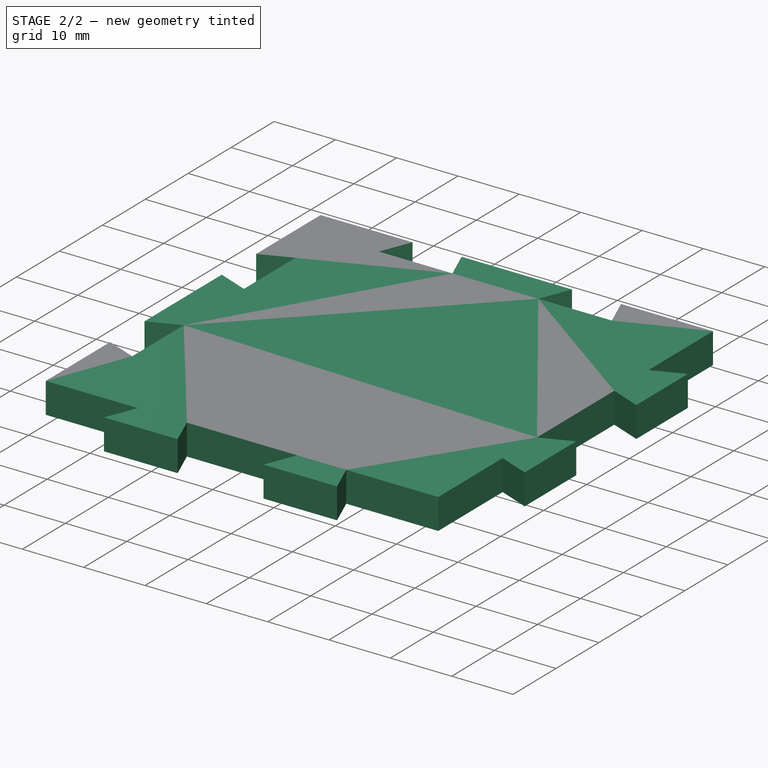
[diagram: stage 2 of 2 — iso view after this stage's code; geometry added in this stage tinted green]
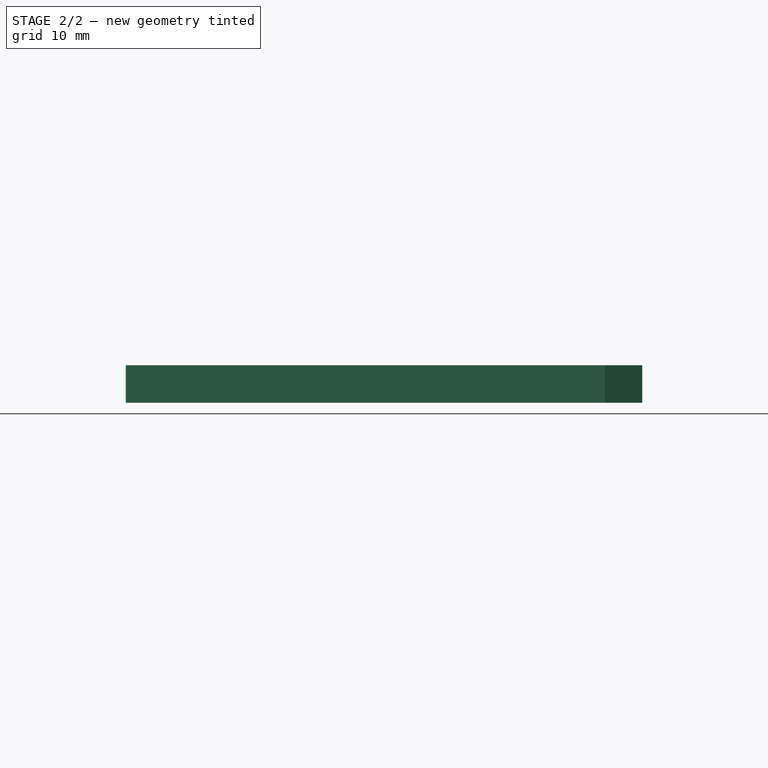
[diagram: stage 2 of 2 — front view after this stage's code; geometry added in this stage tinted green]
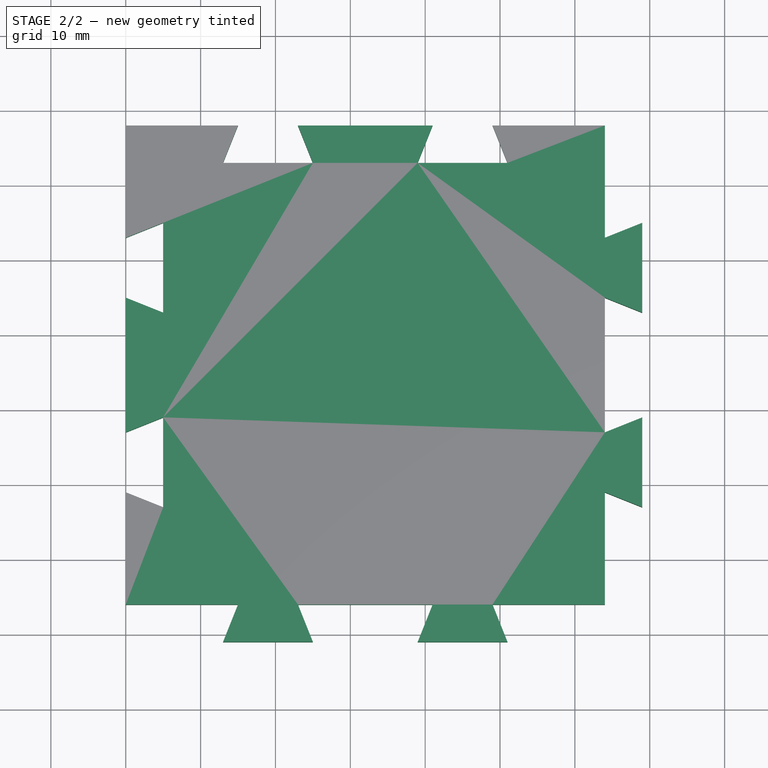
[diagram: stage 2 of 2 — top view after this stage's code; geometry added in this stage tinted green]
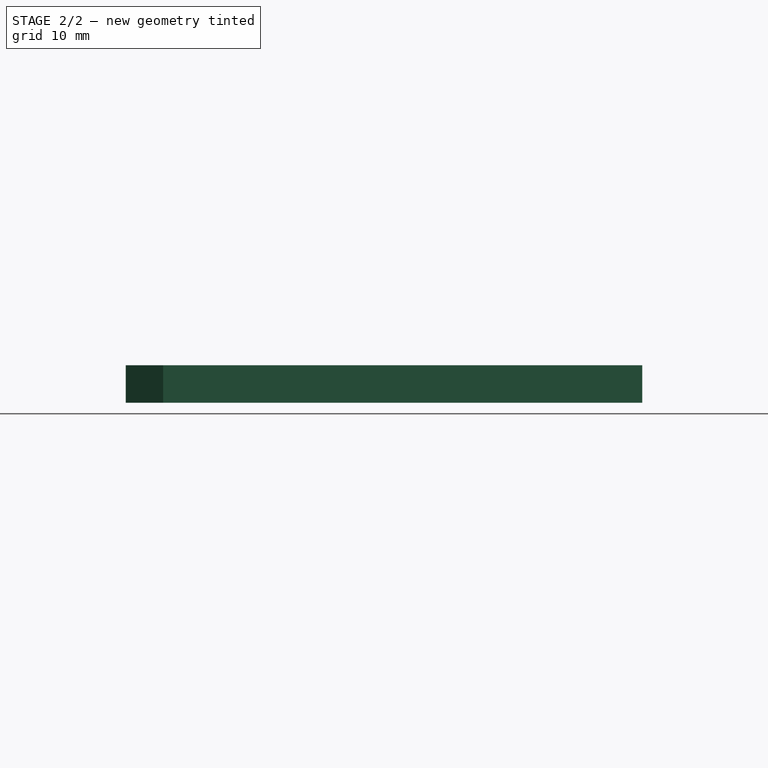
[diagram: stage 2 of 2 — right view after this stage's code; geometry added in this stage tinted green]
FEATURE [PartDesign::Body] Body
  Group = -> [Sketch,Pad]
  Origin = -> Origin
  Tip = -> Pad
FEATURE [PartDesign::ShapeBinder] ShapeBinder
  Support = -> [Body]
  TraceSupport = false
FEATURE [Sketcher::SketchObject] Sketch001
  ExternalGeometry = -> [ShapeBinder]
  FullyConstrained = true
  MapMode = 5
  Support = -> [XY_Plane001]
  sketch-geometry (44):
    g0: LineSegment StartX=15 StartY=8 StartZ=0 EndX=13 EndY=3 EndZ=0
    g1: LineSegment StartX=13 StartY=3 StartZ=0 EndX=25 EndY=3 EndZ=0
    g2: LineSegment StartX=25 StartY=3 StartZ=0 EndX=23 EndY=8 EndZ=0
    g3: LineSegment StartX=23 StartY=8 StartZ=0 EndX=15 EndY=8 EndZ=0
    g4: LineSegment StartX=41 StartY=8 StartZ=0 EndX=49 EndY=8 EndZ=0
    g5: LineSegment StartX=49 StartY=8 StartZ=0 EndX=51 EndY=3 EndZ=0
    g6: LineSegment StartX=51 StartY=3 StartZ=0 EndX=39 EndY=3 EndZ=0
    g7: LineSegment StartX=39 StartY=3 StartZ=0 EndX=41 EndY=8 EndZ=0
    g8: LineSegment StartX=0 StartY=-7 StartZ=0 EndX=0 EndY=-15 EndZ=0
    g9: LineSegment StartX=0 StartY=-15 StartZ=0 EndX=5 EndY=-17 EndZ=0
    g10: LineSegment StartX=5 StartY=-17 StartZ=0 EndX=5 EndY=-5 EndZ=0
    g11: LineSegment StartX=5 StartY=-5 StartZ=0 EndX=0 EndY=-7 EndZ=0
    g12: LineSegment StartX=0 StartY=-33 StartZ=0 EndX=0 EndY=-41 EndZ=0
    g13: LineSegment StartX=0 StartY=-41 StartZ=0 EndX=5 EndY=-43 EndZ=0
    g14: LineSegment StartX=5 StartY=-43 StartZ=0 EndX=5 EndY=-31 EndZ=0
    g15: LineSegment StartX=5 StartY=-31 StartZ=0 EndX=0 EndY=-33 EndZ=0
    g16: LineSegment StartX=64 StartY=-7 StartZ=0 EndX=64 EndY=-15 EndZ=0
    g17: LineSegment StartX=64 StartY=-15 StartZ=0 EndX=69 EndY=-17 EndZ=0
    g18: LineSegment StartX=69 StartY=-17 StartZ=0 EndX=69 EndY=-5 EndZ=0
    g19: LineSegment StartX=69 StartY=-5 StartZ=0 EndX=64 EndY=-7 EndZ=0
    g20: LineSegment StartX=64 StartY=-33 StartZ=0 EndX=64 EndY=-41 EndZ=0
    g21: LineSegment StartX=64 StartY=-41 StartZ=0 EndX=69 EndY=-43 EndZ=0
    g22: LineSegment StartX=69 StartY=-43 StartZ=0 EndX=69 EndY=-31 EndZ=0
    g23: LineSegment StartX=69 StartY=-31 StartZ=0 EndX=64 EndY=-33 EndZ=0
    g24: LineSegment StartX=15 StartY=-56 StartZ=0 EndX=23 EndY=-56 EndZ=0
    g25: LineSegment StartX=23 StartY=-56 StartZ=0 EndX=25 EndY=-61 EndZ=0
    g26: LineSegment StartX=25 StartY=-61 StartZ=0 EndX=13 EndY=-61 EndZ=0
    g27: LineSegment StartX=13 StartY=-61 StartZ=0 EndX=15 EndY=-56 EndZ=0
    g28: LineSegment StartX=41 StartY=-56 StartZ=0 EndX=49 EndY=-56 EndZ=0
    g29: LineSegment StartX=49 StartY=-56 StartZ=0 EndX=51 EndY=-61 EndZ=0
    g30: LineSegment StartX=51 StartY=-61 StartZ=0 EndX=39 EndY=-61 EndZ=0
    g31: LineSegment StartX=39 StartY=-61 StartZ=0 EndX=41 EndY=-56 EndZ=0
    g32: LineSegment StartX=0 StartY=-41 StartZ=0 EndX=0 EndY=-56 EndZ=0
    g33: LineSegment StartX=0 StartY=-56 StartZ=0 EndX=15 EndY=-56 EndZ=0
    g34: LineSegment StartX=23 StartY=-56 StartZ=0 EndX=41 EndY=-56 EndZ=0
    g35: LineSegment StartX=49 StartY=-56 StartZ=0 EndX=64 EndY=-56 EndZ=0
    g36: LineSegment StartX=64 StartY=-56 StartZ=0 EndX=64 EndY=-41 EndZ=0
    g37: LineSegment StartX=64 StartY=-33 StartZ=0 EndX=64 EndY=-15 EndZ=0
    g38: LineSegment StartX=64 StartY=-7 StartZ=0 EndX=64 EndY=8 EndZ=0
    g39: LineSegment StartX=64 StartY=8 StartZ=0 EndX=49 EndY=8 EndZ=0
    g40: LineSegment StartX=41 StartY=8 StartZ=0 EndX=23 EndY=8 EndZ=0
    g41: LineSegment StartX=15 StartY=8 StartZ=0 EndX=0 EndY=8 EndZ=0
    g42: LineSegment StartX=0 StartY=8 StartZ=0 EndX=0 EndY=-7 EndZ=0
    g43: LineSegment StartX=0 StartY=-15 StartZ=0 EndX=0 EndY=-33 EndZ=0
  constraints (120):
    c: Coincident(g0,g1)
    c: Horizontal(g1)
    c: Coincident(g1,g2)
    c: Coincident(g2,g3)
    c: Coincident(g3,g0)
    c: Horizontal(g3)
    c: DistanceX(g1,g1) = 12
    c: DistanceX(g3,g3) = 8
    c: Equal(g2,g0)
    c: Distance(g0,g1) = 5
    c: Horizontal(g4)
    c: Coincident(g4,g5)
    c: Coincident(g5,g6)
    c: Horizontal(g6)
    c: Coincident(g6,g7)
    c: Coincident(g7,g4)
    c: Vertical(g8)
    c: Coincident(g8,g9)
    c: Coincident(g9,g10)
    c: Vertical(g10)
    c: Coincident(g10,g11)
    c: Coincident(g11,g8)
    c: Coincident(g12,g13)
    c: Coincident(g13,g14)
    c: Vertical(g14)
    c: Coincident(g14,g15)
    c: Coincident(g15,g12)
    c: Vertical(g12)
    c: Equal(g1,g6)
    c: Equal(g6,g10)
    c: Equal(g10,g14)
    c: Equal(g4,g3)
    c: Equal(g3,g8)
    c: Equal(g8,g12)
    c: Equal(g13,g15)
    c: Equal(g15,g9)
    c: Equal(g9,g11)
    c: Equal(g11,g0)
    c: Equal(g0,g7)
    c: Equal(g7,g5)
    c: Vertical(g16)
    c: Coincident(g16,g17)
    c: Coincident(g17,g18)
    c: Coincident(g18,g19)
    c: Coincident(g19,g16)
    c: Vertical(g20)
    c: Coincident(g20,g21)
    c: Coincident(g21,g22)
    c: Vertical(g22)
    c: Coincident(g22,g23)
    c: Coincident(g23,g20)
    c: Vertical(g18)
    c: Equal(g20,g16)
    c: Equal(g16,g8)
    c: Equal(g18,g22)
    c: Equal(g22,g10)
    c: Equal(g19,g17)
    c: Equal(g17,g23)
    c: Equal(g23,g21)
    c: Equal(g21,g11)
    c: PointOnObject(g23,g-6)
    c: PointOnObject(g17,g-6)
    c: Horizontal(g21,g13)
    c: Horizontal(g17,g9)
    c: PointOnObject(g11,g-3)
    c: PointOnObject(g15,g-3)
    c: PointOnObject(g7,g-4)
    c: PointOnObject(g0,g-4)
    c: DistanceX(g-4,g0) = 15
    c: DistanceX(g5,g-6) = 15
    c: DistanceY(g11,g-4) = 15
    c: DistanceY(g-5,g13) = 15
    c: Horizontal(g24)
    c: Coincident(g24,g25)
    c: Coincident(g25,g26)
    c: Horizontal(g26)
    c: Coincident(g26,g27)
    c: Coincident(g27,g24)
    c: Horizontal(g28)
    c: Coincident(g28,g29)
    c: Coincident(g29,g30)
    c: Horizontal(g30)
    c: Coincident(g30,g31)
    c: Coincident(g31,g28)
    c: Equal(g28,g24)
    c: Equal(g24,g3)
    c: Equal(g1,g26)
    c: Equal(g26,g30)
    c: Equal(g27,g25)
    c: Equal(g25,g31)
    c: Equal(g31,g29)
    c: Equal(g29,g0)
    c: PointOnObject(g24,g-5)
    c: PointOnObject(g28,g-5)
    c: Vertical(g24,g0)
    c: Vertical(g28,g7)
    c: Coincident(g32,g13)
    c: Coincident(g32,g-5)
    c: Coincident(g33,g32)
    c: Coincident(g33,g24)
    c: Coincident(g34,g25)
    c: Coincident(g34,g31)
    c: Coincident(g35,g29)
    c: Coincident(g35,g-6)
    c: Coincident(g36,g35)
    c: Coincident(g36,g21)
    c: Coincident(g37,g23)
    c: Coincident(g37,g17)
    c: Coincident(g38,g19)
    c: Coincident(g38,g-6)
    c: Coincident(g39,g38)
    c: Coincident(g39,g5)
    c: Coincident(g40,g7)
    c: Coincident(g40,g2)
    c: Coincident(g41,g0)
    c: Coincident(g41,g-4)
    c: Coincident(g42,g41)
    c: Coincident(g42,g11)
    c: Coincident(g43,g9)
    c: Coincident(g43,g15)
FEATURE [PartDesign::Pad] Pad001
  Direction = (1,1,1)
  Length = 5
  Length2 = 100
  Profile = -> Sketch001
  Reversed = true
  Type = 0
FEATURE [PartDesign::Body] Body001
  Group = -> [Sketch001,ShapeBinder,Pad001]
  Origin = -> Origin001
  Tip = -> Pad001
FEATURE [Part::Part2DObjectPython] Shape2DView  # Draft 2D object (typed FeaturePython)
  Base = -> Body
  FuseArch = false
  HiddenLines = false
  InPlace = true
  Projection = (0,0,1)
  ProjectionMode = 0
  SegmentLength = 0.05
  Tessellation = false
  VisibleOnly = false
FEATURE [Part::Part2DObjectPython] Shape2DView001  # Draft 2D object (typed FeaturePython)
  Base = -> Body001
  FuseArch = false
  HiddenLines = false
  InPlace = true
  Projection = (0,0,1)
  ProjectionMode = 0
  SegmentLength = 0.05
  Tessellation = false
  VisibleOnly = false
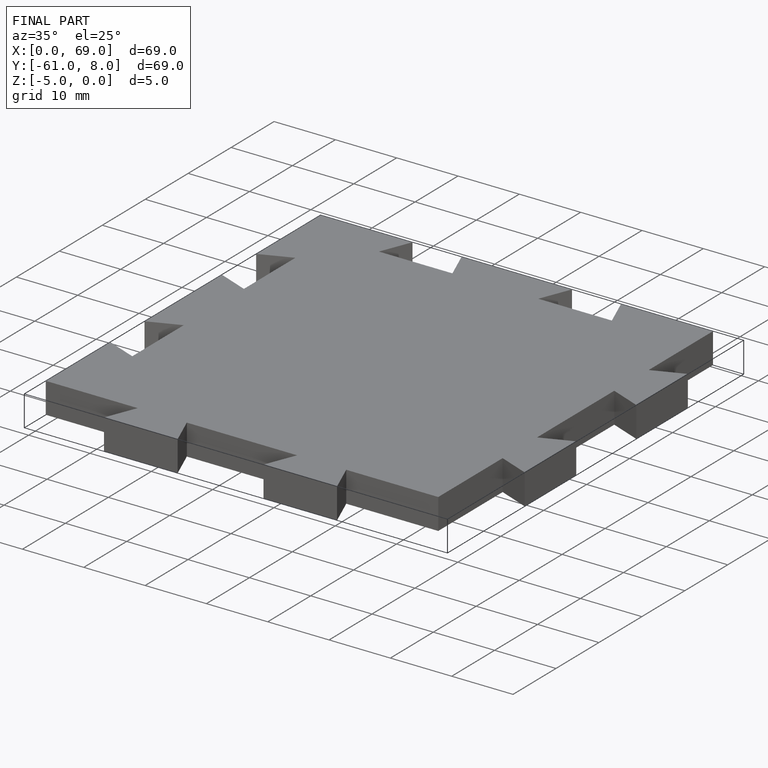
[diagram: finished part — iso view with bounding-box wireframe]
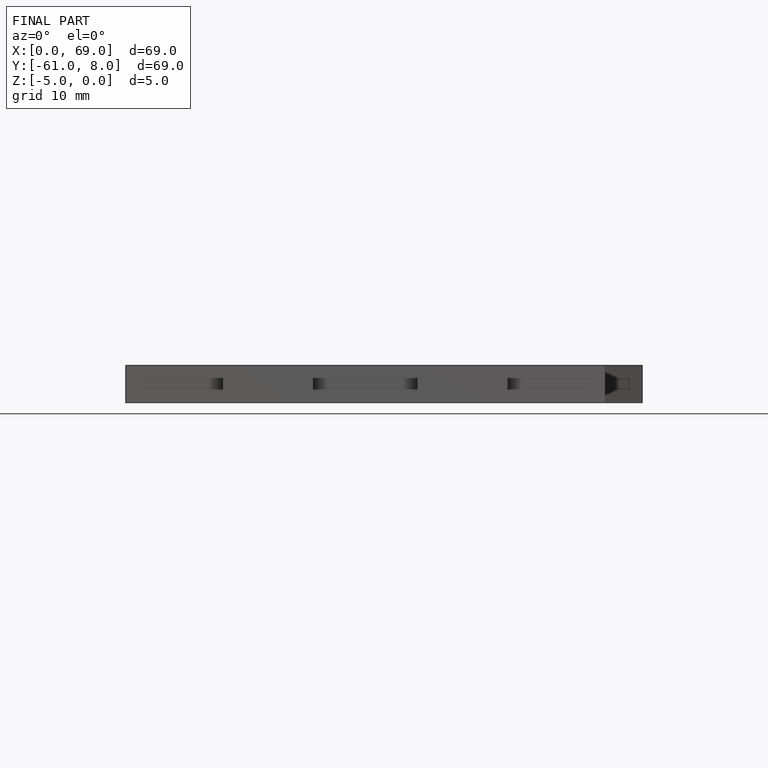
[diagram: finished part — front view with bounding-box wireframe]
